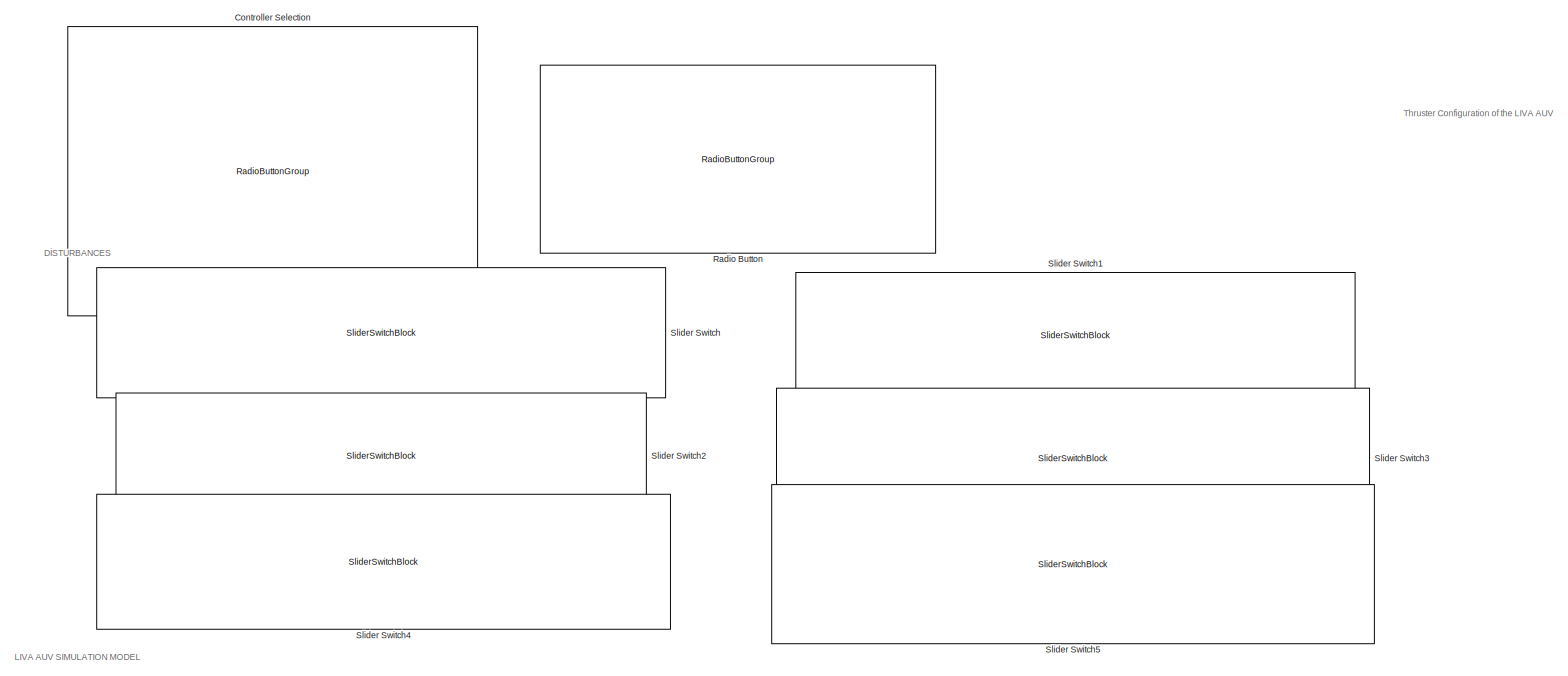
[diagram: root canvas - part 1/3, top center region]
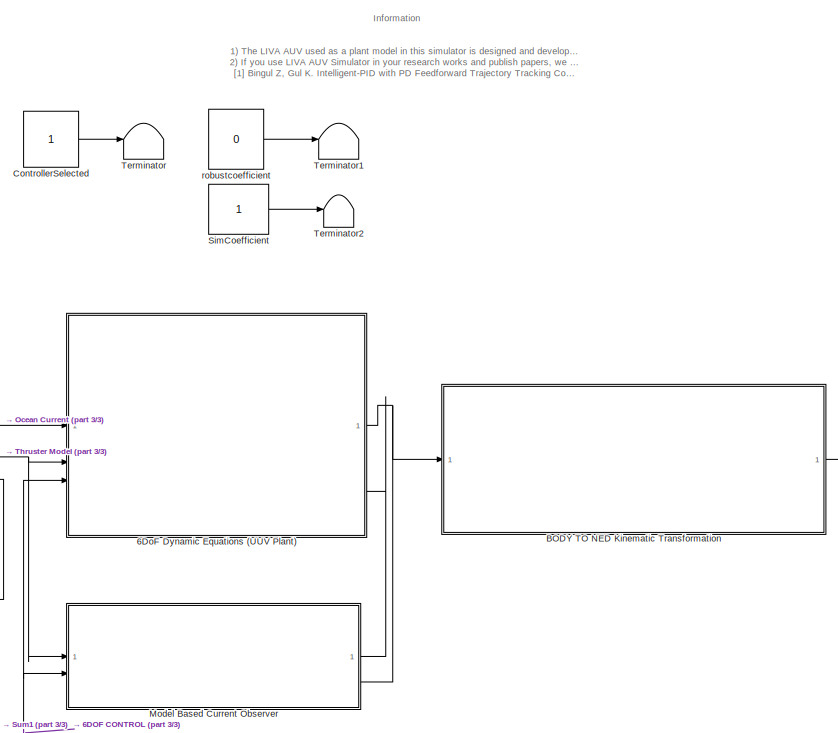
[diagram: root canvas - part 2/3, bottom right region]
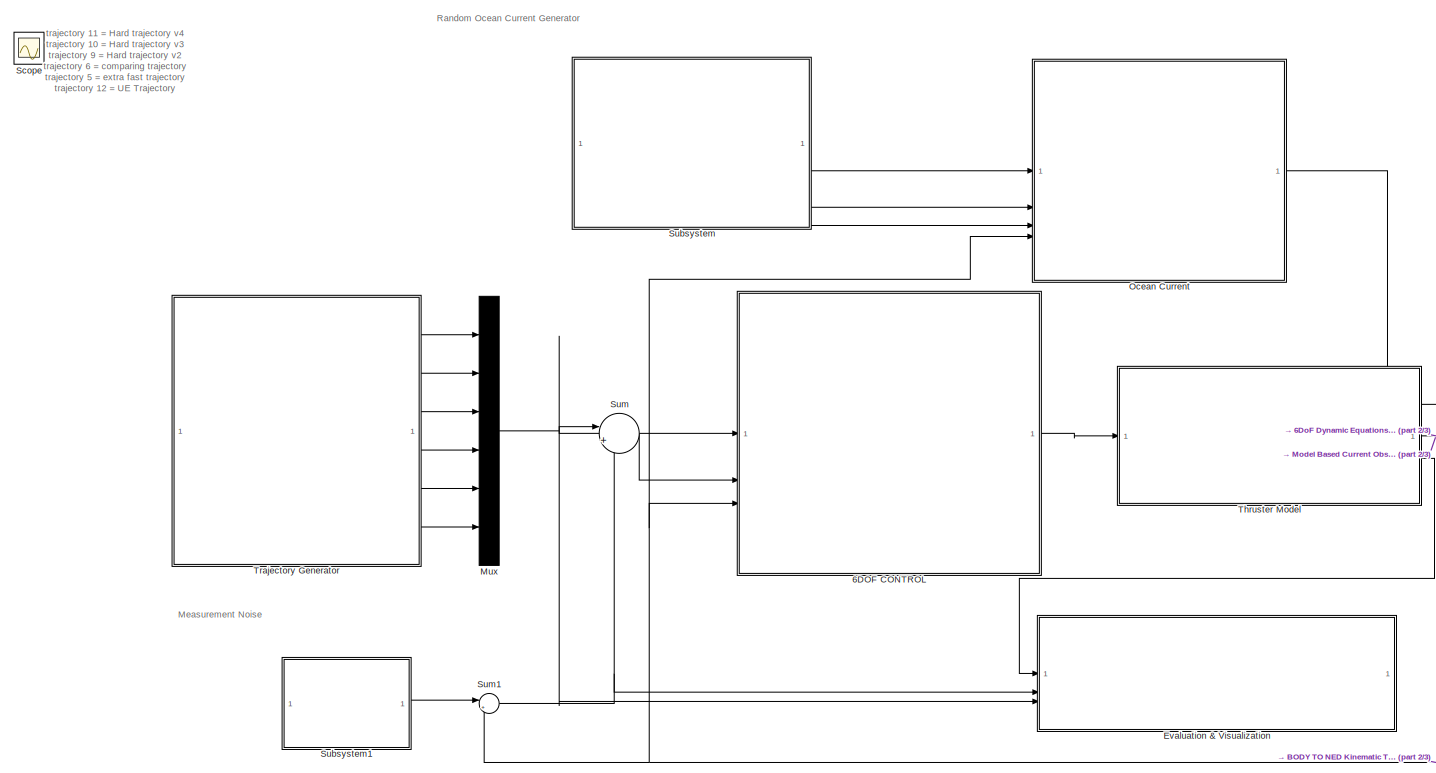
[diagram: root canvas - part 3/3, bottom left region]
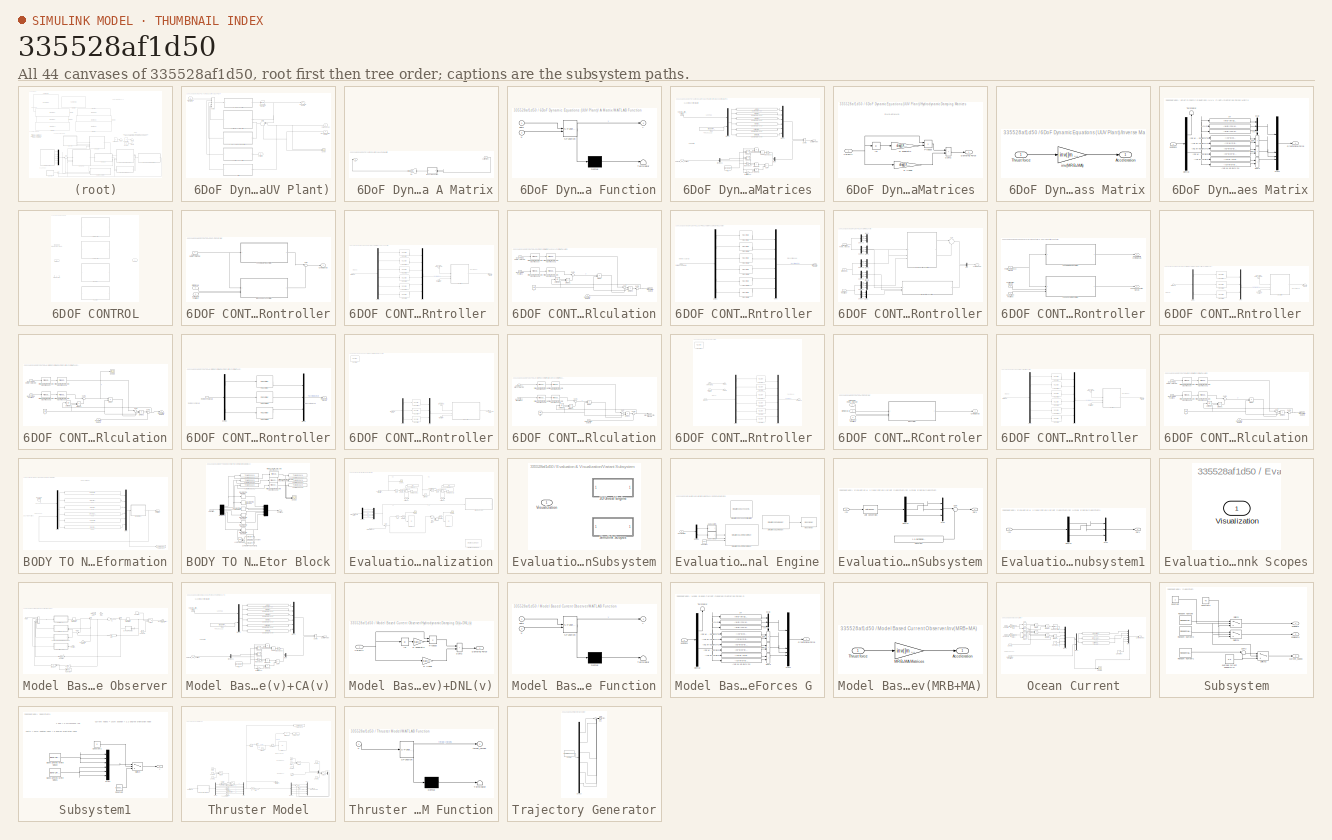
[diagram: thumbnail index - all 44 canvases of the model, root first then tree order]
MODEL slx_335528af1d50
KIND model
CONFIG AbsTol = auto
CONFIG EnableMultiTasking = off
CONFIG FixedStep = auto
CONFIG InitFcn = LIVA_AUV_Simulator_init;\n
CONFIG MaxStep = auto
CONFIG MinStep = auto
CONFIG RelTol = 1e-3
CONFIG SampleTimeConstraint = Unconstrained
CONFIG SolverName = VariableStepAuto
CONFIG StartTime = 0.0
CONFIG StopTime = 50
WORKSPACE source: mxarray member
WORKSPACE a = 0.0768559116543
WORKSPACE a1 = 5.09287831845
WORKSPACE b = 2.78447714902
WORKSPACE b1 = 0.0150573456987
WORKSPACE c = 0.222680447107
WORKSPACE c1 = 0.0244981849866
WORKSPACE d = 1.17025942432
WORKSPACE d1 = -0.121090969634
WORKSPACE e = 4
WORKSPACE e1 = -0.000744741765672
WORKSPACE f = 3.22045295126
WORKSPACE f1 = 0.147531958158
WORKSPACE g = 3
WORKSPACE g1 = 9.31921319068e-05
WORKSPACE h = 4
WORKSPACE h1 = -0.000787888183232
WORKSPACE i = 2.39426372075
WORKSPACE i1 = -0.0976897881188
WORKSPACE j = 3
WORKSPACE j1 = 7.29765081481
WORKSPACE k = 2
WORKSPACE k1 = 3.34164431501
WORKSPACE l = -0.0819081975806
WORKSPACE l1 = 4.85550524224
WORKSPACE m = -0.0907196254339
WORKSPACE m1 = 2.91684244028
WORKSPACE n = 1.20537954163
WORKSPACE n1 = 9.00648148706
WORKSPACE o = 1.92822193114
WORKSPACE o1 = 2.79427167815
WORKSPACE p = 1.9547800679
WORKSPACE p1 = 9.64465760947
WORKSPACE r = 2
WORKSPACE r1 = 9.85880905818
WORKSPACE s = 0.00182097897058
WORKSPACE s1 = 6.72892013716
BLOCK [SubSystem]  6DoF Dynamic Equations (UUV Plant)
  PortSchema = {"entries":[{"content":{"sides":[{"content":{"connectorIds":["In1","In2","In3"]},"type":"ConnectorPlacement.EquallySpacedRectSide","uuid":"68855c18-f905-4735-a86a-81e2661cb8da"},{"content":{"connectorIds":["In4","Out1"],"side":"RIGHT"},"type":"ConnectorPlacement.EquallySpacedRectSide","uuid":"7717ce14-b11b-49b8-93e4-328ee3f313d1"},{"content":{"connectorIds":[],"side":"TOP"},"type":"ConnectorPlacem...<+402ch>
BLOCK [SubSystem]  6DoF Dynamic Equations (UUV Plant)/ A Matrix
BLOCK [Outport]  6DoF Dynamic Equations (UUV Plant)/ A Matrix/Ac
BLOCK [Gain]  6DoF Dynamic Equations (UUV Plant)/ A Matrix/MA
  Gain = [Xudot 0 0 0 0 0;0 Yvdot 0 0 0 0;0 0 Zwdot 0 0 0;0 0 0 Kpdot 0 0;0 0 0 0 Mqdot 0;0 0 0 0 0 Nrdot]
  Multiplication = Matrix(K*u)
  OutDataTypeStr = Inherit: Same as input
  ParamDataTypeStr = Inherit: Same as input
BLOCK [SubSystem]  6DoF Dynamic Equations (UUV Plant)/ A Matrix/MATLAB Function
  ErrorFcn = Stateflow.Translate.translate
  PermitHierarchicalResolution = ExplicitOnly
  SFBlockType = MATLAB Function
  TreatAsAtomicUnit = on
BLOCK [Demux]  6DoF Dynamic Equations (UUV Plant)/ A Matrix/MATLAB Function/ Demux 
  Outputs = 1
BLOCK [S-Function]  6DoF Dynamic Equations (UUV Plant)/ A Matrix/MATLAB Function/ SFunction 
  EnableBusSupport = on
  FunctionName = sf_sfun
  PortCounts = [2 2]
  SFcnIsStateOwnerBlock = off
  SFunctionDeploymentMode = off
  Tag = Stateflow S-Function 3
BLOCK [Terminator]  6DoF Dynamic Equations (UUV Plant)/ A Matrix/MATLAB Function/ Terminator 
BLOCK [Inport]  6DoF Dynamic Equations (UUV Plant)/ A Matrix/MATLAB Function/data
BLOCK [Inport]  6DoF Dynamic Equations (UUV Plant)/ A Matrix/MATLAB Function/u
  Port = 2
BLOCK [Outport]  6DoF Dynamic Equations (UUV Plant)/ A Matrix/MATLAB Function/y
BLOCK [Inport]  6DoF Dynamic Equations (UUV Plant)/ A Matrix/currentvel
BLOCK [Outport]  6DoF Dynamic Equations (UUV Plant)/Body Frame Velocity
  VectorParamsAs1DForOutWhenUnconnected = off
BLOCK [SubSystem]  6DoF Dynamic Equations (UUV Plant)/Centripetal and Coriolis Matrices 
BLOCK [Fcn]  6DoF Dynamic Equations (UUV Plant)/Centripetal and Coriolis Matrices /(zg.W - zb.B)cY.sX
  Expr = -u[9]*u[3]*u[5]+u[8]*u[2]*u[6]
BLOCK [Fcn]  6DoF Dynamic Equations (UUV Plant)/Centripetal and Coriolis Matrices /(zg.W - zb.B)cY.sX1
  Expr = u[9]*u[3]*u[4]-u[7]*u[1]*u[6]
BLOCK [Fcn]  6DoF Dynamic Equations (UUV Plant)/Centripetal and Coriolis Matrices /(zg.W - zb.B)cY.sX2
  Expr = -u[8]*u[2]*u[4]+u[7]*u[1]*u[5]
BLOCK [Fcn]  6DoF Dynamic Equations (UUV Plant)/Centripetal and Coriolis Matrices /(zg.W - zb.B)cY.sX3
  Expr = -u[9]*u[3]*u[2]+u[8]*u[2]*u[3]-u[12]*u[6]*u[5]+u[11]*u[5]*u[6]
BLOCK [Fcn]  6DoF Dynamic Equations (UUV Plant)/Centripetal and Coriolis Matrices /(zg.W - zb.B)cY.sX4
  Expr = u[9]*u[3]*u[1]-u[7]*u[1]*u[3]+u[6]*u[12]*u[4]-u[4]*u[10]*u[6]
BLOCK [Fcn]  6DoF Dynamic Equations (UUV Plant)/Centripetal and Coriolis Matrices /(zg.W - zb.B)cY.sX5
  Expr = -u[8]*u[2]*u[1]+u[7]*u[1]*u[2]-u[11]*u[5]*u[4]+u[10]*u[4]*u[5]
BLOCK [Outport]  6DoF Dynamic Equations (UUV Plant)/Centripetal and Coriolis Matrices /Coriolis Force
  VectorParamsAs1DForOutWhenUnconnected = off
BLOCK [Demux]  6DoF Dynamic Equations (UUV Plant)/Centripetal and Coriolis Matrices /Demux1
  Outputs = 2
BLOCK [Mux]  6DoF Dynamic Equations (UUV Plant)/Centripetal and Coriolis Matrices /Mux
  DisplayOption = bar
  Inputs = 2
BLOCK [Mux]  6DoF Dynamic Equations (UUV Plant)/Centripetal and Coriolis Matrices /Mux1
  DisplayOption = bar
  Inputs = 6
BLOCK [Mux]  6DoF Dynamic Equations (UUV Plant)/Centripetal and Coriolis Matrices /Mux2
  DisplayOption = bar
  Inputs = 2
BLOCK [Product]  6DoF Dynamic Equations (UUV Plant)/Centripetal and Coriolis Matrices /Product1
  InputSameDT = on
  OutDataTypeStr = Inherit: Same as first input
  RndMeth = Zero
  SaturateOnIntegerOverflow = on
BLOCK [Product]  6DoF Dynamic Equations (UUV Plant)/Centripetal and Coriolis Matrices /Product2
  InputSameDT = on
  OutDataTypeStr = Inherit: Same as first input
  RndMeth = Zero
  SaturateOnIntegerOverflow = on
BLOCK [Product]  6DoF Dynamic Equations (UUV Plant)/Centripetal and Coriolis Matrices /Product3
  InputSameDT = on
  OutDataTypeStr = Inherit: Same as first input
  RndMeth = Zero
  SaturateOnIntegerOverflow = on
BLOCK [Product]  6DoF Dynamic Equations (UUV Plant)/Centripetal and Coriolis Matrices /Product4
  InputSameDT = on
  OutDataTypeStr = Inherit: Same as first input
  RndMeth = Zero
  SaturateOnIntegerOverflow = on
BLOCK [Product]  6DoF Dynamic Equations (UUV Plant)/Centripetal and Coriolis Matrices /Product5
  InputSameDT = on
  OutDataTypeStr = Inherit: Same as first input
  RndMeth = Zero
  SaturateOnIntegerOverflow = on
BLOCK [Constant]  6DoF Dynamic Equations (UUV Plant)/Centripetal and Coriolis Matrices /Rg
  Value = [xg yg zg]'
BLOCK [Constant]  6DoF Dynamic Equations (UUV Plant)/Centripetal and Coriolis Matrices /Rg2
  Value = [-Xudot -Yvdot -Zwdot -Kpdot -Mqdot -Nrdot]'
BLOCK [Sum]  6DoF Dynamic Equations (UUV Plant)/Centripetal and Coriolis Matrices /Sum
  IconShape = rectangular
  InputSameDT = on
  OutDataTypeStr = Inherit: Same as first input
  SaturateOnIntegerOverflow = on
BLOCK [Sum]  6DoF Dynamic Equations (UUV Plant)/Centripetal and Coriolis Matrices /Sum2
  IconShape = rectangular
  InputSameDT = on
  OutDataTypeStr = Inherit: Same as first input
  SaturateOnIntegerOverflow = on
BLOCK [Sum]  6DoF Dynamic Equations (UUV Plant)/Centripetal and Coriolis Matrices /Sum5
  IconShape = rectangular
  InputSameDT = on
  OutDataTypeStr = Inherit: Same as first input
  SaturateOnIntegerOverflow = on
BLOCK [Inport]  6DoF Dynamic Equations (UUV Plant)/Centripetal and Coriolis Matrices /Velocity_no_current
BLOCK [Inport]  6DoF Dynamic Equations (UUV Plant)/Centripetal and Coriolis Matrices /Velocity_with_current
  Port = 2
BLOCK [Gain]  6DoF Dynamic Equations (UUV Plant)/Centripetal and Coriolis Matrices /inertia(3x3)
  Gain = [Ix 0 0;0 Iy 0;0 0 Iz]*eye(3)+[-Xudot 0 0;0 -Yvdot 0;0 0 -Zwdot]
  Multiplication = Matrix(K*u)
  OutDataTypeStr = Inherit: Same as input
  ParamDataTypeStr = Inherit: Same as input
  SaturateOnIntegerOverflow = on
BLOCK [Gain]  6DoF Dynamic Equations (UUV Plant)/Centripetal and Coriolis Matrices /mass(3x3) 
  Gain = m*eye(3)+[-Xudot 0 0;0 -Yvdot 0;0 0 -Zwdot]
  Multiplication = Matrix(K*u)
  OutDataTypeStr = Inherit: Same as input
  ParamDataTypeStr = Inherit: Same as input
  SaturateOnIntegerOverflow = on
BLOCK [Inport]  6DoF Dynamic Equations (UUV Plant)/Current_Speed
BLOCK [DiscreteIntegrator]  6DoF Dynamic Equations (UUV Plant)/Discrete-Time Integrator
  ICPrevOutput = DiscIntNeverNeededParam
  ICPrevScaledInput = DiscIntNeverNeededParam
  InitialConditionSetting = Auto
  SampleTime = -1
  StateName = x
BLOCK [Inport]  6DoF Dynamic Equations (UUV Plant)/Forces and Moments  
  Port = 2
BLOCK [SubSystem]  6DoF Dynamic Equations (UUV Plant)/Hydrodynamic Damping Matrices 
BLOCK [Gain]  6DoF Dynamic Equations (UUV Plant)/Hydrodynamic Damping Matrices /D linear
  Gain = diag([Xu 0 0 0 0 0;0 Yv 0 0 0 0;0 0 Zw 0 0 0;0 0 0 Kp 0 0;0 0 0 0 Mq 0;0 0 0 0 0 Nr])
  OutDataTypeStr = Inherit: Same as input
  ParamDataTypeStr = Inherit: Same as input
  SaturateOnIntegerOverflow = on
BLOCK [Gain]  6DoF Dynamic Equations (UUV Plant)/Hydrodynamic Damping Matrices /D quadratic
  Gain = diag([Xuu 0 0 0 0 0;0 Yvv 0 0 0 0;0 0 Zww 0 0 0;0 0 0 Kpp 0 0;0 0 0 0 Mqq 0;0 0 0 0 0 Nrr])
  OutDataTypeStr = Inherit: Same as input
  ParamDataTypeStr = Inherit: Same as input
  SaturateOnIntegerOverflow = on
BLOCK [Outport]  6DoF Dynamic Equations (UUV Plant)/Hydrodynamic Damping Matrices /Damping Force
BLOCK [Product]  6DoF Dynamic Equations (UUV Plant)/Hydrodynamic Damping Matrices /Product
  InputSameDT = on
  OutDataTypeStr = Inherit: Same as first input
  RndMeth = Zero
  SaturateOnIntegerOverflow = on
BLOCK [Sum]  6DoF Dynamic Equations (UUV Plant)/Hydrodynamic Damping Matrices /Sum2
  IconShape = rectangular
  InputSameDT = on
  OutDataTypeStr = Inherit: Same as first input
  SaturateOnIntegerOverflow = on
BLOCK [Inport]  6DoF Dynamic Equations (UUV Plant)/Hydrodynamic Damping Matrices /Velocity
BLOCK [Abs]  6DoF Dynamic Equations (UUV Plant)/Hydrodynamic Damping Matrices /|u|
BLOCK [SubSystem]  6DoF Dynamic Equations (UUV Plant)/Inverse Mass Matrix
BLOCK [Outport]  6DoF Dynamic Equations (UUV Plant)/Inverse Mass Matrix/Acceleration
  VectorParamsAs1DForOutWhenUnconnected = off
BLOCK [Inport]  6DoF Dynamic Equations (UUV Plant)/Inverse Mass Matrix/Thrust force
BLOCK [Gain]  6DoF Dynamic Equations (UUV Plant)/Inverse Mass Matrix/inv(MRB+MA)
  Gain = inv([m 0 0 0 0 0;0 m 0 0 0 0;0 0 m 0 0 0;0 0 0 Ix 0 0;0 0 0 0 Iy 0;0 0 0 0 0 Iz]+[Xudot 0 0 0 0 0;0 Yvdot 0 0 0 0;0 0 Zwdot 0 0 0;0 0 0 Kpdot 0 0;0 0 0 0 Mqdot 0;0 0 0 0 0 Nrdot])
  Multiplication = Matrix(K*u)
  OutDataTypeStr = Inherit: Same as input
  ParamDataTypeStr = Inherit: Same as input
BLOCK [Inport]  6DoF Dynamic Equations (UUV Plant)/Observed Current Velocity
  Port = 4
BLOCK [Inport]  6DoF Dynamic Equations (UUV Plant)/Positions 
  Port = 3
BLOCK [SubSystem]  6DoF Dynamic Equations (UUV Plant)/Restoring Forces Matrix
BLOCK [Fcn]  6DoF Dynamic Equations (UUV Plant)/Restoring Forces Matrix/(xg.W-xb.B)cY.cX
  Expr = (xg*W - xb*B)*cos(u[2])*cos(u[1])
BLOCK [Fcn]  6DoF Dynamic Equations (UUV Plant)/Restoring Forces Matrix/(zg.W - zb.B)cY.sX
  Expr = ((zg * W - zb * B) * cos(u[2])) * sin(u[1])
BLOCK [Fcn]  6DoF Dynamic Equations (UUV Plant)/Restoring Forces Matrix/(zg.W - zb.B)sY
  Expr = (zg*W - zb*B)*sin(u[2])
BLOCK [Fcn]  6DoF Dynamic Equations (UUV Plant)/Restoring Forces Matrix/-(xg.W-xb.B)cY.sX
  Expr = -(xg*W -xb*B)*cos(u[2])*sin(u[1])
BLOCK [Fcn]  6DoF Dynamic Equations (UUV Plant)/Restoring Forces Matrix/-(yg.W-yb.B)cY.cX
  Expr = -(yg*W - yb*B)*cos(u[2])*cos(u[1])
BLOCK [Fcn]  6DoF Dynamic Equations (UUV Plant)/Restoring Forces Matrix/-(yg.W-yb.B)sY
  Expr = -(yg*W - yb*B)*sin(u[2])
BLOCK [Fcn]  6DoF Dynamic Equations (UUV Plant)/Restoring Forces Matrix/-cY.cX
  Expr = -(W-B)*cos(u[2])*cos(u[1])
BLOCK [Fcn]  6DoF Dynamic Equations (UUV Plant)/Restoring Forces Matrix/-cY.sX
  Expr = -(W-B)*cos(u[2])*sin(u[1])
BLOCK [Demux]  6DoF Dynamic Equations (UUV Plant)/Restoring Forces Matrix/Demux
  Outputs = 2
BLOCK [Outport]  6DoF Dynamic Equations (UUV Plant)/Restoring Forces Matrix/Gravitational Force
BLOCK [Mux]  6DoF Dynamic Equations (UUV Plant)/Restoring Forces Matrix/Mux
  DisplayOption = bar
  Inputs = 3
BLOCK [Mux]  6DoF Dynamic Equations (UUV Plant)/Restoring Forces Matrix/Mux1
  DisplayOption = bar
BLOCK [Sum]  6DoF Dynamic Equations (UUV Plant)/Restoring Forces Matrix/Sum
  IconShape = rectangular
  InputSameDT = on
  OutDataTypeStr = Inherit: Same as first input
  SaturateOnIntegerOverflow = on
BLOCK [Sum]  6DoF Dynamic Equations (UUV Plant)/Restoring Forces Matrix/Sum1
  IconShape = rectangular
  InputSameDT = on
  OutDataTypeStr = Inherit: Same as first input
  SaturateOnIntegerOverflow = on
BLOCK [Sum]  6DoF Dynamic Equations (UUV Plant)/Restoring Forces Matrix/Sum2
  IconShape = rectangular
  InputSameDT = on
  OutDataTypeStr = Inherit: Same as first input
  SaturateOnIntegerOverflow = on
BLOCK [Terminator]  6DoF Dynamic Equations (UUV Plant)/Restoring Forces Matrix/Terminator
  NameLocation = right
BLOCK [Inport]  6DoF Dynamic Equations (UUV Plant)/Restoring Forces Matrix/positions
BLOCK [Fcn]  6DoF Dynamic Equations (UUV Plant)/Restoring Forces Matrix/sY
  Expr = (W-B)*sin(u[2])
BLOCK [Scope]  6DoF Dynamic Equations (UUV Plant)/Scope
  Floating = off
  NumInputPorts = 2
  ScopeSpecificationString = Simulink.scopes.TimeScopeBlockCfg('CurrentConfiguration', extmgr.ConfigurationSet(extmgr.Configuration('Core','General UI',true),extmgr.Configuration('Core','Source UI',true),extmgr.Configuration('Sources','WiredSimulink',true,'DataLoggingVariableName','ScopeData2'),extmgr.Configuration('Visuals','Time Domain',true,'SerializedDisplays',{struct('MinYLimReal','-0.10436','MaxYLimReal','0.766','YLabel...<+1994ch>
BLOCK [Sum]  6DoF Dynamic Equations (UUV Plant)/Sum
  Inputs = |+-+
BLOCK [Sum]  6DoF Dynamic Equations (UUV Plant)/Sum1
  IconShape = rectangular
  InputSameDT = on
  Inputs = +---+
  OutDataTypeStr = Inherit: Same as first input
  SaturateOnIntegerOverflow = on
BLOCK [SubSystem] 6DOF CONTROL
  Variant = on
BLOCK [SubSystem] 6DOF CONTROL/2 DoF i-PID Controller
  VariantControl = (get_param([bdroot '/ControllerSelected'], 'Value') == '2')
BLOCK [SubSystem] 6DOF CONTROL/2 DoF i-PID Controller/ i-PID Feedback Controller 
BLOCK [Inport] 6DOF CONTROL/2 DoF i-PID Controller/ i-PID Feedback Controller /Body Frame Positions
  Port = 3
BLOCK [Inport] 6DOF CONTROL/2 DoF i-PID Controller/ i-PID Feedback Controller /Body Frame Reference Trajectory
BLOCK [SubSystem] 6DOF CONTROL/2 DoF i-PID Controller/ i-PID Feedback Controller /Calculation
BLOCK [Inport] 6DOF CONTROL/2 DoF i-PID Controller/ i-PID Feedback Controller /Calculation/Body Frame Positions
  Port = 3
BLOCK [Inport] 6DOF CONTROL/2 DoF i-PID Controller/ i-PID Feedback Controller /Calculation/Body Frame Reference Trajectory
BLOCK [Product] 6DOF CONTROL/2 DoF i-PID Controller/ i-PID Feedback Controller /Calculation/Divide
  Inputs = */
BLOCK [Product] 6DOF CONTROL/2 DoF i-PID Controller/ i-PID Feedback Controller /Calculation/Divide1
  Inputs = **
BLOCK [Product] 6DOF CONTROL/2 DoF i-PID Controller/ i-PID Feedback Controller /Calculation/Divide2
  Inputs = */
BLOCK [Reference] 6DOF CONTROL/2 DoF i-PID Controller/ i-PID Feedback Controller /Calculation/Filtered Derivative (Discrete or Continuous)  REF=eeGeneralControl/Filtered Derivative
(Discrete or Continuous)
  SourceBlock = eeGeneralControl/Filtered Derivative\n(Discrete or Continuous)
  SourceType = Filtered Derivative (Discrete or Continuous)
BLOCK [Reference] 6DOF CONTROL/2 DoF i-PID Controller/ i-PID Feedback Controller /Calculation/Filtered Derivative (Discrete or Continuous)1  REF=eeGeneralControl/Filtered Derivative
(Discrete or Continuous)
  SourceBlock = eeGeneralControl/Filtered Derivative\n(Discrete or Continuous)
  SourceType = Filtered Derivative (Discrete or Continuous)
BLOCK [Reference] 6DOF CONTROL/2 DoF i-PID Controller/ i-PID Feedback Controller /Calculation/Filtered Derivative (Discrete or Continuous)2  REF=eeGeneralControl/Filtered Derivative
(Discrete or Continuous)
  SourceBlock = eeGeneralControl/Filtered Derivative\n(Discrete or Continuous)
  SourceType = Filtered Derivative (Discrete or Continuous)
BLOCK [Reference] 6DOF CONTROL/2 DoF i-PID Controller/ i-PID Feedback Controller /Calculation/Filtered Derivative (Discrete or Continuous)3  REF=eeGeneralControl/Filtered Derivative
(Discrete or Continuous)
  SourceBlock = eeGeneralControl/Filtered Derivative\n(Discrete or Continuous)
  SourceType = Filtered Derivative (Discrete or Continuous)
BLOCK [Outport] 6DOF CONTROL/2 DoF i-PID Controller/ i-PID Feedback Controller /Calculation/IPI Controller Outputs
BLOCK [Inport] 6DOF CONTROL/2 DoF i-PID Controller/ i-PID Feedback Controller /Calculation/PI Controller Outputs
  Port = 2
BLOCK [Sum] 6DOF CONTROL/2 DoF i-PID Controller/ i-PID Feedback Controller /Calculation/Sum
  Inputs = |+-
BLOCK [Sum] 6DOF CONTROL/2 DoF i-PID Controller/ i-PID Feedback Controller /Calculation/Sum1
  Inputs = |+-
BLOCK [Sum] 6DOF CONTROL/2 DoF i-PID Controller/ i-PID Feedback Controller /Calculation/Sum2
  Inputs = |++
BLOCK [UnitDelay] 6DOF CONTROL/2 DoF i-PID Controller/ i-PID Feedback Controller /Calculation/Unit Delay
  HasFrameUpgradeWarning = on
  SampleTime = -1
BLOCK [Constant] 6DOF CONTROL/2 DoF i-PID Controller/ i-PID Feedback Controller /Calculation/a
  Value = alfa
BLOCK [Demux] 6DOF CONTROL/2 DoF i-PID Controller/ i-PID Feedback Controller /Demux
  Outputs = 6
BLOCK [Inport] 6DOF CONTROL/2 DoF i-PID Controller/ i-PID Feedback Controller /Error Signals
  Port = 2
BLOCK [Mux] 6DOF CONTROL/2 DoF i-PID Controller/ i-PID Feedback Controller /Mux2
  DisplayOption = bar
  Inputs = 6
BLOCK [Reference] 6DOF CONTROL/2 DoF i-PID Controller/ i-PID Feedback Controller /PID Controller  REF=slpidlib/PID Controller
  SourceBlock = slpidlib/PID Controller
  SourceType = PID 1dof
BLOCK [Reference] 6DOF CONTROL/2 DoF i-PID Controller/ i-PID Feedback Controller /PID Controller1  REF=slpidlib/PID Controller
  SourceBlock = slpidlib/PID Controller
  SourceType = PID 1dof
BLOCK [Reference] 6DOF CONTROL/2 DoF i-PID Controller/ i-PID Feedback Controller /PID Controller2  REF=slpidlib/PID Controller
  SourceBlock = slpidlib/PID Controller
  SourceType = PID 1dof
BLOCK [Reference] 6DOF CONTROL/2 DoF i-PID Controller/ i-PID Feedback Controller /PID Controller3  REF=slpidlib/PID Controller
  SourceBlock = slpidlib/PID Controller
  SourceType = PID 1dof
BLOCK [Reference] 6DOF CONTROL/2 DoF i-PID Controller/ i-PID Feedback Controller /PID Controller4  REF=slpidlib/PID Controller
  SourceBlock = slpidlib/PID Controller
  SourceType = PID 1dof
BLOCK [Reference] 6DOF CONTROL/2 DoF i-PID Controller/ i-PID Feedback Controller /PID Controller5  REF=slpidlib/PID Controller
  SourceBlock = slpidlib/PID Controller
  SourceType = PID 1dof
BLOCK [Outport] 6DOF CONTROL/2 DoF i-PID Controller/ i-PID Feedback Controller /iPID Control Signals
  VectorParamsAs1DForOutWhenUnconnected = off
BLOCK [Outport] 6DOF CONTROL/2 DoF i-PID Controller/Control Signals
BLOCK [Inport] 6DOF CONTROL/2 DoF i-PID Controller/Earth Frame Positions
  Port = 3
BLOCK [Inport] 6DOF CONTROL/2 DoF i-PID Controller/Earth Frame Reference Trajectory
BLOCK [Inport] 6DOF CONTROL/2 DoF i-PID Controller/Error Signals
  Port = 2
BLOCK [SubSystem] 6DOF CONTROL/2 DoF i-PID Controller/Feedforward PID Controller 
BLOCK [Demux] 6DOF CONTROL/2 DoF i-PID Controller/Feedforward PID Controller /Demux
  Outputs = 6
BLOCK [Mux] 6DOF CONTROL/2 DoF i-PID Controller/Feedforward PID Controller /Mux2
  DisplayOption = bar
  Inputs = 6
BLOCK [Reference] 6DOF CONTROL/2 DoF i-PID Controller/Feedforward PID Controller /PID Controller  REF=slpidlib/PID Controller
  SourceBlock = slpidlib/PID Controller
  SourceType = PID 1dof
BLOCK [Reference] 6DOF CONTROL/2 DoF i-PID Controller/Feedforward PID Controller /PID Controller1  REF=slpidlib/PID Controller
  SourceBlock = slpidlib/PID Controller
  SourceType = PID 1dof
BLOCK [Reference] 6DOF CONTROL/2 DoF i-PID Controller/Feedforward PID Controller /PID Controller2  REF=slpidlib/PID Controller
  SourceBlock = slpidlib/PID Controller
  SourceType = PID 1dof
BLOCK [Reference] 6DOF CONTROL/2 DoF i-PID Controller/Feedforward PID Controller /PID Controller3  REF=slpidlib/PID Controller
  SourceBlock = slpidlib/PID Controller
  SourceType = PID 1dof
BLOCK [Reference] 6DOF CONTROL/2 DoF i-PID Controller/Feedforward PID Controller /PID Controller4  REF=slpidlib/PID Controller
  SourceBlock = slpidlib/PID Controller
  SourceType = PID 1dof
BLOCK [Reference] 6DOF CONTROL/2 DoF i-PID Controller/Feedforward PID Controller /PID Controller5  REF=slpidlib/PID Controller
  SourceBlock = slpidlib/PID Controller
  SourceType = PID 1dof
BLOCK [Inport] 6DOF CONTROL/2 DoF i-PID Controller/Feedforward PID Controller /Reference Signals
BLOCK [Outport] 6DOF CONTROL/2 DoF i-PID Controller/Feedforward PID Controller /iPID Control Signals
  VectorParamsAs1DForOutWhenUnconnected = off
BLOCK [Sum] 6DOF CONTROL/2 DoF i-PID Controller/Sum
  Inputs = |++
BLOCK [Outport] 6DOF CONTROL/Control Signals
BLOCK [Inport] 6DOF CONTROL/Earth Frame Positions
  Port = 3
BLOCK [Inport] 6DOF CONTROL/Earth Frame Reference Trajectory
BLOCK [Inport] 6DOF CONTROL/Error Signals
  Port = 2
BLOCK [SubSystem] 6DOF CONTROL/Hybrid i-PID Controller
  VariantControl = (get_param([bdroot '/ControllerSelected'], 'Value') == '1')
BLOCK [SubSystem] 6DOF CONTROL/Hybrid i-PID Controller/2-DoF i-PID Position Controller
BLOCK [Outport] 6DOF CONTROL/Hybrid i-PID Controller/2-DoF i-PID Position Controller/Feedback Control Signals
  Port = 2
BLOCK [SubSystem] 6DOF CONTROL/Hybrid i-PID Controller/2-DoF i-PID Position Controller/Feedback i-PID Controller 
BLOCK [Inport] 6DOF CONTROL/Hybrid i-PID Controller/2-DoF i-PID Position Controller/Feedback i-PID Controller /Body Frame Positions
  Port = 3
BLOCK [Inport] 6DOF CONTROL/Hybrid i-PID Controller/2-DoF i-PID Position Controller/Feedback i-PID Controller /Body Frame Reference Trajectory
BLOCK [SubSystem] 6DOF CONTROL/Hybrid i-PID Controller/2-DoF i-PID Position Controller/Feedback i-PID Controller /Calculation
BLOCK [Inport] 6DOF CONTROL/Hybrid i-PID Controller/2-DoF i-PID Position Controller/Feedback i-PID Controller /Calculation/Body Frame Positions
  Port = 3
BLOCK [Inport] 6DOF CONTROL/Hybrid i-PID Controller/2-DoF i-PID Position Controller/Feedback i-PID Controller /Calculation/Body Frame Reference Trajectory
BLOCK [Product] 6DOF CONTROL/Hybrid i-PID Controller/2-DoF i-PID Position Controller/Feedback i-PID Controller /Calculation/Divide
  Inputs = */
BLOCK [Product] 6DOF CONTROL/Hybrid i-PID Controller/2-DoF i-PID Position Controller/Feedback i-PID Controller /Calculation/Divide1
  Inputs = **
BLOCK [Product] 6DOF CONTROL/Hybrid i-PID Controller/2-DoF i-PID Position Controller/Feedback i-PID Controller /Calculation/Divide2
  Inputs = */
BLOCK [Reference] 6DOF CONTROL/Hybrid i-PID Controller/2-DoF i-PID Position Controller/Feedback i-PID Controller /Calculation/Filtered Derivative (Discrete or Continuous)  REF=eeGeneralControl/Filtered Derivative
(Discrete or Continuous)
  SourceBlock = eeGeneralControl/Filtered Derivative\n(Discrete or Continuous)
  SourceType = Filtered Derivative (Discrete or Continuous)
BLOCK [Reference] 6DOF CONTROL/Hybrid i-PID Controller/2-DoF i-PID Position Controller/Feedback i-PID Controller /Calculation/Filtered Derivative (Discrete or Continuous)1  REF=eeGeneralControl/Filtered Derivative
(Discrete or Continuous)
  SourceBlock = eeGeneralControl/Filtered Derivative\n(Discrete or Continuous)
  SourceType = Filtered Derivative (Discrete or Continuous)
BLOCK [Reference] 6DOF CONTROL/Hybrid i-PID Controller/2-DoF i-PID Position Controller/Feedback i-PID Controller /Calculation/Filtered Derivative (Discrete or Continuous)2  REF=eeGeneralControl/Filtered Derivative
(Discrete or Continuous)
  SourceBlock = eeGeneralControl/Filtered Derivative\n(Discrete or Continuous)
  SourceType = Filtered Derivative (Discrete or Continuous)
BLOCK [Reference] 6DOF CONTROL/Hybrid i-PID Controller/2-DoF i-PID Position Controller/Feedback i-PID Controller /Calculation/Filtered Derivative (Discrete or Continuous)3  REF=eeGeneralControl/Filtered Derivative
(Discrete or Continuous)
  SourceBlock = eeGeneralControl/Filtered Derivative\n(Discrete or Continuous)
  SourceType = Filtered Derivative (Discrete or Continuous)
BLOCK [Outport] 6DOF CONTROL/Hybrid i-PID Controller/2-DoF i-PID Position Controller/Feedback i-PID Controller /Calculation/IPI Controller Outputs
BLOCK [Inport] 6DOF CONTROL/Hybrid i-PID Controller/2-DoF i-PID Position Controller/Feedback i-PID Controller /Calculation/PI Controller Outputs
  Port = 2
BLOCK [Scope] 6DOF CONTROL/Hybrid i-PID Controller/2-DoF i-PID Position Controller/Feedback i-PID Controller /Calculation/Scope
  Floating = off
  NumInputPorts = 1
  ScopeSpecificationString = Simulink.scopes.TimeScopeBlockCfg('CurrentConfiguration', extmgr.ConfigurationSet(extmgr.Configuration('Core','General UI',true),extmgr.Configuration('Core','Source UI',true),extmgr.Configuration('Sources','WiredSimulink',true,'DataLoggingVariableName','ScopeData1'),extmgr.Configuration('Visuals','Time Domain',true,'SerializedDisplays',{struct('MinYLimReal','-1.19878','MaxYLimReal','1.4086','YLabe...<+1424ch>
BLOCK [Sum] 6DOF CONTROL/Hybrid i-PID Controller/2-DoF i-PID Position Controller/Feedback i-PID Controller /Calculation/Sum
  Inputs = |+-
BLOCK [Sum] 6DOF CONTROL/Hybrid i-PID Controller/2-DoF i-PID Position Controller/Feedback i-PID Controller /Calculation/Sum1
  Inputs = |+-
BLOCK [Sum] 6DOF CONTROL/Hybrid i-PID Controller/2-DoF i-PID Position Controller/Feedback i-PID Controller /Calculation/Sum2
  Inputs = |++
BLOCK [UnitDelay] 6DOF CONTROL/Hybrid i-PID Controller/2-DoF i-PID Position Controller/Feedback i-PID Controller /Calculation/Unit Delay
  HasFrameUpgradeWarning = on
  SampleTime = -1
BLOCK [Constant] 6DOF CONTROL/Hybrid i-PID Controller/2-DoF i-PID Position Controller/Feedback i-PID Controller /Calculation/a
  Value = alfa
BLOCK [Demux] 6DOF CONTROL/Hybrid i-PID Controller/2-DoF i-PID Position Controller/Feedback i-PID Controller /Demux
  Outputs = 3
BLOCK [Inport] 6DOF CONTROL/Hybrid i-PID Controller/2-DoF i-PID Position Controller/Feedback i-PID Controller /Error Signals
  Port = 2
BLOCK [Mux] 6DOF CONTROL/Hybrid i-PID Controller/2-DoF i-PID Position Controller/Feedback i-PID Controller /Mux2
  DisplayOption = bar
  Inputs = 3
BLOCK [Reference] 6DOF CONTROL/Hybrid i-PID Controller/2-DoF i-PID Position Controller/Feedback i-PID Controller /PID Controller  REF=slpidlib/PID Controller
  SourceBlock = slpidlib/PID Controller
  SourceType = PID 1dof
BLOCK [Reference] 6DOF CONTROL/Hybrid i-PID Controller/2-DoF i-PID Position Controller/Feedback i-PID Controller /PID Controller1  REF=slpidlib/PID Controller
  SourceBlock = slpidlib/PID Controller
  SourceType = PID 1dof
BLOCK [Reference] 6DOF CONTROL/Hybrid i-PID Controller/2-DoF i-PID Position Controller/Feedback i-PID Controller /PID Controller2  REF=slpidlib/PID Controller
  SourceBlock = slpidlib/PID Controller
  SourceType = PID 1dof
BLOCK [Outport] 6DOF CONTROL/Hybrid i-PID Controller/2-DoF i-PID Position Controller/Feedback i-PID Controller /iPID Control Signals
  VectorParamsAs1DForOutWhenUnconnected = off
BLOCK [Outport] 6DOF CONTROL/Hybrid i-PID Controller/2-DoF i-PID Position Controller/Feedforward Control Signals
BLOCK [SubSystem] 6DOF CONTROL/Hybrid i-PID Controller/2-DoF i-PID Position Controller/Feedforward PD Controller
BLOCK [Demux] 6DOF CONTROL/Hybrid i-PID Controller/2-DoF i-PID Position Controller/Feedforward PD Controller/Demux
  Outputs = 3
BLOCK [Mux] 6DOF CONTROL/Hybrid i-PID Controller/2-DoF i-PID Position Controller/Feedforward PD Controller/Mux2
  DisplayOption = bar
  Inputs = 3
BLOCK [Reference] 6DOF CONTROL/Hybrid i-PID Controller/2-DoF i-PID Position Controller/Feedforward PD Controller/PID Controller  REF=slpidlib/PID Controller
  SourceBlock = slpidlib/PID Controller
  SourceType = PID 1dof
BLOCK [Reference] 6DOF CONTROL/Hybrid i-PID Controller/2-DoF i-PID Position Controller/Feedforward PD Controller/PID Controller1  REF=slpidlib/PID Controller
  SourceBlock = slpidlib/PID Controller
  SourceType = PID 1dof
BLOCK [Reference] 6DOF CONTROL/Hybrid i-PID Controller/2-DoF i-PID Position Controller/Feedforward PD Controller/PID Controller2  REF=slpidlib/PID Controller
  SourceBlock = slpidlib/PID Controller
  SourceType = PID 1dof
BLOCK [Inport] 6DOF CONTROL/Hybrid i-PID Controller/2-DoF i-PID Position Controller/Feedforward PD Controller/Reference Signals
BLOCK [Outport] 6DOF CONTROL/Hybrid i-PID Controller/2-DoF i-PID Position Controller/Feedforward PD Controller/iPID Control Signals
  VectorParamsAs1DForOutWhenUnconnected = off
BLOCK [Inport] 6DOF CONTROL/Hybrid i-PID Controller/2-DoF i-PID Position Controller/Poisition Reference Signals
BLOCK [Inport] 6DOF CONTROL/Hybrid i-PID Controller/2-DoF i-PID Position Controller/Position Error Signals
  Port = 2
BLOCK [Inport] 6DOF CONTROL/Hybrid i-PID Controller/2-DoF i-PID Position Controller/UUV Current Positions
  Port = 3
BLOCK [Outport] 6DOF CONTROL/Hybrid i-PID Controller/Control Signals
BLOCK [Demux] 6DOF CONTROL/Hybrid i-PID Controller/Demux1
  Outputs = 6
BLOCK [Demux] 6DOF CONTROL/Hybrid i-PID Controller/Demux3
  Outputs = 6
BLOCK [Demux] 6DOF CONTROL/Hybrid i-PID Controller/Demux4
  Outputs = 6
BLOCK [Demux] 6DOF CONTROL/Hybrid i-PID Controller/Demux5
  Outputs = 6
BLOCK [Demux] 6DOF CONTROL/Hybrid i-PID Controller/Demux6
  Outputs = 6
BLOCK [Demux] 6DOF CONTROL/Hybrid i-PID Controller/Demux7
  Outputs = 6
BLOCK [Inport] 6DOF CONTROL/Hybrid i-PID Controller/Earth Frame Positions
  Port = 3
BLOCK [Inport] 6DOF CONTROL/Hybrid i-PID Controller/Earth Frame Reference Trajectory
BLOCK [Inport] 6DOF CONTROL/Hybrid i-PID Controller/Error Signals
  Port = 2
BLOCK [Mux] 6DOF CONTROL/Hybrid i-PID Controller/Mux
  DisplayOption = bar
  Inputs = 2
BLOCK [Mux] 6DOF CONTROL/Hybrid i-PID Controller/Mux1
  DisplayOption = bar
  Inputs = 3
BLOCK [Mux] 6DOF CONTROL/Hybrid i-PID Controller/Mux2
  DisplayOption = bar
  Inputs = 3
BLOCK [Mux] 6DOF CONTROL/Hybrid i-PID Controller/Mux3
  DisplayOption = bar
  Inputs = 3
BLOCK [Mux] 6DOF CONTROL/Hybrid i-PID Controller/Mux4
  DisplayOption = bar
  Inputs = 3
BLOCK [Mux] 6DOF CONTROL/Hybrid i-PID Controller/Mux5
  DisplayOption = bar
  Inputs = 3
BLOCK [Mux] 6DOF CONTROL/Hybrid i-PID Controller/Mux6
  DisplayOption = bar
  Inputs = 3
BLOCK [Sum] 6DOF CONTROL/Hybrid i-PID Controller/Sum
  Inputs = |++
BLOCK [SubSystem] 6DOF CONTROL/Hybrid i-PID Controller/i-PID Orientation Controller
BLOCK [Inport] 6DOF CONTROL/Hybrid i-PID Controller/i-PID Orientation Controller/ Reference Orientation Trajectory
BLOCK [Demux] 6DOF CONTROL/Hybrid i-PID Controller/i-PID Orientation Controller/Demux
  Outputs = 3
BLOCK [Outport] 6DOF CONTROL/Hybrid i-PID Controller/i-PID Orientation Controller/Feedback Control Signals
  VectorParamsAs1DForOutWhenUnconnected = off
BLOCK [Mux] 6DOF CONTROL/Hybrid i-PID Controller/i-PID Orientation Controller/Mux2
  DisplayOption = bar
  Inputs = 3
BLOCK [Inport] 6DOF CONTROL/Hybrid i-PID Controller/i-PID Orientation Controller/Orientation Error Signals
  Port = 2
BLOCK [Reference] 6DOF CONTROL/Hybrid i-PID Controller/i-PID Orientation Controller/PID Controller3  REF=slpidlib/PID Controller
  SourceBlock = slpidlib/PID Controller
  SourceType = PID 1dof
BLOCK [Reference] 6DOF CONTROL/Hybrid i-PID Controller/i-PID Orientation Controller/PID Controller4  REF=slpidlib/PID Controller
  SourceBlock = slpidlib/PID Controller
  SourceType = PID 1dof
BLOCK [Reference] 6DOF CONTROL/Hybrid i-PID Controller/i-PID Orientation Controller/PID Controller5  REF=slpidlib/PID Controller
  SourceBlock = slpidlib/PID Controller
  SourceType = PID 1dof
BLOCK [Reference] 6DOF CONTROL/Hybrid i-PID Controller/i-PID Orientation Controller/PID Controller6  REF=slpidlib/PID Controller
  Commented = on
  SourceBlock = slpidlib/PID Controller
  SourceType = PID 1dof
BLOCK [Inport] 6DOF CONTROL/Hybrid i-PID Controller/i-PID Orientation Controller/UUV Current Orientations
  Port = 3
BLOCK [SubSystem] 6DOF CONTROL/Hybrid i-PID Controller/i-PID Orientation Controller/i-PID Calculation
BLOCK [Inport] 6DOF CONTROL/Hybrid i-PID Controller/i-PID Orientation Controller/i-PID Calculation/ Reference Orientation Trajectory
BLOCK [Product] 6DOF CONTROL/Hybrid i-PID Controller/i-PID Orientation Controller/i-PID Calculation/Divide
  Inputs = */
BLOCK [Product] 6DOF CONTROL/Hybrid i-PID Controller/i-PID Orientation Controller/i-PID Calculation/Divide1
  Inputs = **
BLOCK [Product] 6DOF CONTROL/Hybrid i-PID Controller/i-PID Orientation Controller/i-PID Calculation/Divide2
  Inputs = */
BLOCK [Reference] 6DOF CONTROL/Hybrid i-PID Controller/i-PID Orientation Controller/i-PID Calculation/Filtered Derivative (Discrete or Continuous)  REF=eeGeneralControl/Filtered Derivative
(Discrete or Continuous)
  SourceBlock = eeGeneralControl/Filtered Derivative\n(Discrete or Continuous)
  SourceType = Filtered Derivative (Discrete or Continuous)
BLOCK [Reference] 6DOF CONTROL/Hybrid i-PID Controller/i-PID Orientation Controller/i-PID Calculation/Filtered Derivative (Discrete or Continuous)1  REF=eeGeneralControl/Filtered Derivative
(Discrete or Continuous)
  SourceBlock = eeGeneralControl/Filtered Derivative\n(Discrete or Continuous)
  SourceType = Filtered Derivative (Discrete or Continuous)
BLOCK [Reference] 6DOF CONTROL/Hybrid i-PID Controller/i-PID Orientation Controller/i-PID Calculation/Filtered Derivative (Discrete or Continuous)2  REF=eeGeneralControl/Filtered Derivative
(Discrete or Continuous)
  SourceBlock = eeGeneralControl/Filtered Derivative\n(Discrete or Continuous)
  SourceType = Filtered Derivative (Discrete or Continuous)
BLOCK [Reference] 6DOF CONTROL/Hybrid i-PID Controller/i-PID Orientation Controller/i-PID Calculation/Filtered Derivative (Discrete or Continuous)3  REF=eeGeneralControl/Filtered Derivative
(Discrete or Continuous)
  SourceBlock = eeGeneralControl/Filtered Derivative\n(Discrete or Continuous)
  SourceType = Filtered Derivative (Discrete or Continuous)
BLOCK [Outport] 6DOF CONTROL/Hybrid i-PID Controller/i-PID Orientation Controller/i-PID Calculation/Orientation Control Signals
BLOCK [Inport] 6DOF CONTROL/Hybrid i-PID Controller/i-PID Orientation Controller/i-PID Calculation/PID Controller Outputs
  Port = 2
BLOCK [Sum] 6DOF CONTROL/Hybrid i-PID Controller/i-PID Orientation Controller/i-PID Calculation/Sum
  Inputs = |+-
BLOCK [Sum] 6DOF CONTROL/Hybrid i-PID Controller/i-PID Orientation Controller/i-PID Calculation/Sum1
  Inputs = |+-
BLOCK [Sum] 6DOF CONTROL/Hybrid i-PID Controller/i-PID Orientation Controller/i-PID Calculation/Sum2
  Inputs = |++
BLOCK [Inport] 6DOF CONTROL/Hybrid i-PID Controller/i-PID Orientation Controller/i-PID Calculation/UUV Current Orientations
  Port = 3
BLOCK [UnitDelay] 6DOF CONTROL/Hybrid i-PID Controller/i-PID Orientation Controller/i-PID Calculation/Unit Delay
  HasFrameUpgradeWarning = on
  SampleTime = -1
BLOCK [Constant] 6DOF CONTROL/Hybrid i-PID Controller/i-PID Orientation Controller/i-PID Calculation/alfa
  Value = alfa
BLOCK [SubSystem] 6DOF CONTROL/PID Controller 
  VariantControl = (get_param([bdroot '/ControllerSelected'], 'Value') == '4')
BLOCK [Outport] 6DOF CONTROL/PID Controller /Control Signals
BLOCK [Demux] 6DOF CONTROL/PID Controller /Demux
  Outputs = 6
BLOCK [Inport] 6DOF CONTROL/PID Controller /Earth Frame Positions
  Port = 3
BLOCK [Inport] 6DOF CONTROL/PID Controller /Earth Frame Reference Trajectory
BLOCK [Inport] 6DOF CONTROL/PID Controller /Error Signals
  Port = 2
BLOCK [Mux] 6DOF CONTROL/PID Controller /Mux2
  DisplayOption = bar
  Inputs = 6
BLOCK [Reference] 6DOF CONTROL/PID Controller /PID Controller  REF=slpidlib/PID Controller
  SourceBlock = slpidlib/PID Controller
  SourceType = PID 1dof
BLOCK [Reference] 6DOF CONTROL/PID Controller /PID Controller1  REF=slpidlib/PID Controller
  SourceBlock = slpidlib/PID Controller
  SourceType = PID 1dof
BLOCK [Reference] 6DOF CONTROL/PID Controller /PID Controller2  REF=slpidlib/PID Controller
  SourceBlock = slpidlib/PID Controller
  SourceType = PID 1dof
BLOCK [Reference] 6DOF CONTROL/PID Controller /PID Controller3  REF=slpidlib/PID Controller
  SourceBlock = slpidlib/PID Controller
  SourceType = PID 1dof
BLOCK [Reference] 6DOF CONTROL/PID Controller /PID Controller4  REF=slpidlib/PID Controller
  SourceBlock = slpidlib/PID Controller
  SourceType = PID 1dof
BLOCK [Reference] 6DOF CONTROL/PID Controller /PID Controller5  REF=slpidlib/PID Controller
  SourceBlock = slpidlib/PID Controller
  SourceType = PID 1dof
BLOCK [Reference] 6DOF CONTROL/PID Controller /PID Controller6  REF=slpidlib/PID Controller
  Commented = on
  SourceBlock = slpidlib/PID Controller
  SourceType = PID 1dof
BLOCK [Terminator] 6DOF CONTROL/PID Controller /Terminator
BLOCK [Terminator] 6DOF CONTROL/PID Controller /Terminator1
BLOCK [SubSystem] 6DOF CONTROL/i-PID Controler
  VariantControl = (get_param([bdroot '/ControllerSelected'], 'Value') == '3')
BLOCK [Outport] 6DOF CONTROL/i-PID Controler/Control Signals
BLOCK [Inport] 6DOF CONTROL/i-PID Controler/Earth Frame Positions
  Port = 3
BLOCK [Inport] 6DOF CONTROL/i-PID Controler/Earth Frame Reference Trajectory
BLOCK [Inport] 6DOF CONTROL/i-PID Controler/Error Signals
  Port = 2
BLOCK [SubSystem] 6DOF CONTROL/i-PID Controler/i-PID Controller 
BLOCK [Inport] 6DOF CONTROL/i-PID Controler/i-PID Controller /Body Frame Positions
  Port = 3
BLOCK [Inport] 6DOF CONTROL/i-PID Controler/i-PID Controller /Body Frame Reference Trajectory
BLOCK [SubSystem] 6DOF CONTROL/i-PID Controler/i-PID Controller /Calculation
BLOCK [Inport] 6DOF CONTROL/i-PID Controler/i-PID Controller /Calculation/Body Frame Positions
  Port = 3
BLOCK [Inport] 6DOF CONTROL/i-PID Controler/i-PID Controller /Calculation/Body Frame Reference Trajectory
BLOCK [Product] 6DOF CONTROL/i-PID Controler/i-PID Controller /Calculation/Divide
  Inputs = */
BLOCK [Product] 6DOF CONTROL/i-PID Controler/i-PID Controller /Calculation/Divide1
  Inputs = **
BLOCK [Product] 6DOF CONTROL/i-PID Controler/i-PID Controller /Calculation/Divide2
  Inputs = */
BLOCK [Reference] 6DOF CONTROL/i-PID Controler/i-PID Controller /Calculation/Filtered Derivative (Discrete or Continuous)  REF=eeGeneralControl/Filtered Derivative
(Discrete or Continuous)
  SourceBlock = eeGeneralControl/Filtered Derivative\n(Discrete or Continuous)
  SourceType = Filtered Derivative (Discrete or Continuous)
BLOCK [Reference] 6DOF CONTROL/i-PID Controler/i-PID Controller /Calculation/Filtered Derivative (Discrete or Continuous)1  REF=eeGeneralControl/Filtered Derivative
(Discrete or Continuous)
  SourceBlock = eeGeneralControl/Filtered Derivative\n(Discrete or Continuous)
  SourceType = Filtered Derivative (Discrete or Continuous)
BLOCK [Reference] 6DOF CONTROL/i-PID Controler/i-PID Controller /Calculation/Filtered Derivative (Discrete or Continuous)2  REF=eeGeneralControl/Filtered Derivative
(Discrete or Continuous)
  SourceBlock = eeGeneralControl/Filtered Derivative\n(Discrete or Continuous)
  SourceType = Filtered Derivative (Discrete or Continuous)
BLOCK [Reference] 6DOF CONTROL/i-PID Controler/i-PID Controller /Calculation/Filtered Derivative (Discrete or Continuous)3  REF=eeGeneralControl/Filtered Derivative
(Discrete or Continuous)
  SourceBlock = eeGeneralControl/Filtered Derivative\n(Discrete or Continuous)
  SourceType = Filtered Derivative (Discrete or Continuous)
BLOCK [Outport] 6DOF CONTROL/i-PID Controler/i-PID Controller /Calculation/IPI Controller Outputs
BLOCK [Inport] 6DOF CONTROL/i-PID Controler/i-PID Controller /Calculation/PI Controller Outputs
  Port = 2
BLOCK [Sum] 6DOF CONTROL/i-PID Controler/i-PID Controller /Calculation/Sum
  Inputs = |+-
BLOCK [Sum] 6DOF CONTROL/i-PID Controler/i-PID Controller /Calculation/Sum1
  Inputs = |+-
BLOCK [Sum] 6DOF CONTROL/i-PID Controler/i-PID Controller /Calculation/Sum2
  Inputs = |++
BLOCK [UnitDelay] 6DOF CONTROL/i-PID Controler/i-PID Controller /Calculation/Unit Delay
  HasFrameUpgradeWarning = on
  SampleTime = -1
BLOCK [Constant] 6DOF CONTROL/i-PID Controler/i-PID Controller /Calculation/a
  Value = alfa
BLOCK [Demux] 6DOF CONTROL/i-PID Controler/i-PID Controller /Demux
  Outputs = 6
BLOCK [Inport] 6DOF CONTROL/i-PID Controler/i-PID Controller /Error Signals
  Port = 2
BLOCK [Mux] 6DOF CONTROL/i-PID Controler/i-PID Controller /Mux2
  DisplayOption = bar
  Inputs = 6
BLOCK [Reference] 6DOF CONTROL/i-PID Controler/i-PID Controller /PID Controller  REF=pid_lib/PID Controller
  SourceBlock = pid_lib/PID Controller
  SourceType = PID 1dof
BLOCK [Reference] 6DOF CONTROL/i-PID Controler/i-PID Controller /PID Controller1  REF=pid_lib/PID Controller
  SourceBlock = pid_lib/PID Controller
  SourceType = PID 1dof
BLOCK [Reference] 6DOF CONTROL/i-PID Controler/i-PID Controller /PID Controller2  REF=pid_lib/PID Controller
  SourceBlock = pid_lib/PID Controller
  SourceType = PID 1dof
BLOCK [Reference] 6DOF CONTROL/i-PID Controler/i-PID Controller /PID Controller3  REF=pid_lib/PID Controller
  SourceBlock = pid_lib/PID Controller
  SourceType = PID 1dof
BLOCK [Reference] 6DOF CONTROL/i-PID Controler/i-PID Controller /PID Controller4  REF=pid_lib/PID Controller
  SourceBlock = pid_lib/PID Controller
  SourceType = PID 1dof
BLOCK [Reference] 6DOF CONTROL/i-PID Controler/i-PID Controller /PID Controller5  REF=pid_lib/PID Controller
  SourceBlock = pid_lib/PID Controller
  SourceType = PID 1dof
BLOCK [Outport] 6DOF CONTROL/i-PID Controler/i-PID Controller /iPID Control Signals
  VectorParamsAs1DForOutWhenUnconnected = off
BLOCK [SubSystem] BODY TO NED Kinematic Transformation
BLOCK [Inport] BODY TO NED Kinematic Transformation/Body Frame Velocities
BLOCK [Outport] BODY TO NED Kinematic Transformation/Earth Frame Positions
BLOCK [Fcn] BODY TO NED Kinematic Transformation/Fcn10
  Expr = cos(u[10])*u[5]-sin(u[10])*u[6]
BLOCK [Fcn] BODY TO NED Kinematic Transformation/Fcn11
  Expr = (sin(u[10])/cos(u[11]))*u[5]+(cos(u[10])/cos(u[11]))*u[6]
BLOCK [Fcn] BODY TO NED Kinematic Transformation/Fcn6
  Expr = (cos(u[12])*cos(u[11])*u[1]-sin(u[12])*cos(u[10])*u[2]+cos(u[12])*sin(u[11])*sin(u[10])*u[2]+sin(u[12])*sin(u[10])*u[3]+cos(u[12])*cos(u[10])*sin(u[11])*u[3])
BLOCK [Fcn] BODY TO NED Kinematic Transformation/Fcn7
  Expr = sin(u[12])*cos(u[11])*u[1]+cos(u[12])*cos(u[10])*u[2]+sin(u[10])*sin(u[11])*sin(u[12])*u[2]-cos(u[12])*sin(u[10])*u[3]+sin(u[11])*sin(u[12])*cos(u[11])*u[3]
BLOCK [Fcn] BODY TO NED Kinematic Transformation/Fcn8
  Expr = -sin(u[11])*u[1]+cos(u[11])*sin(u[10])*u[2]+cos(u[11])*cos(u[10])*u[3]
BLOCK [Fcn] BODY TO NED Kinematic Transformation/Fcn9
  Expr = u[4]+sin(u[10])*tan(u[11])*u[5]+cos(u[10])*tan(u[11])*u[6]
BLOCK [SubSystem] BODY TO NED Kinematic Transformation/Integrator Block
BLOCK [Reference] BODY TO NED Kinematic Transformation/Integrator Block/Compare To Constant  REF=simulink/Logic and Bit
Operations/Compare
To Constant
  SourceBlock = simulink/Logic and Bit\nOperations/Compare\nTo Constant
  SourceType = Compare To Constant
BLOCK [Reference] BODY TO NED Kinematic Transformation/Integrator Block/Compare To Constant1  REF=simulink/Logic and Bit
Operations/Compare
To Constant
  SourceBlock = simulink/Logic and Bit\nOperations/Compare\nTo Constant
  SourceType = Compare To Constant
BLOCK [Demux] BODY TO NED Kinematic Transformation/Integrator Block/Demux2
  DisplayOption = none
  Outputs = 6
BLOCK [DiscreteIntegrator] BODY TO NED Kinematic Transformation/Integrator Block/Discrete-Time Integrator
  ICPrevOutput = DiscIntNeverNeededParam
  ICPrevScaledInput = DiscIntNeverNeededParam
  InitialConditionSetting = Auto
  SampleTime = -1
  StateName = x
BLOCK [DiscreteIntegrator] BODY TO NED Kinematic Transformation/Integrator Block/Discrete-Time Integrator1
  ICPrevOutput = DiscIntNeverNeededParam
  ICPrevScaledInput = DiscIntNeverNeededParam
  InitialConditionSetting = Auto
  SampleTime = -1
  StateName = y
BLOCK [DiscreteIntegrator] BODY TO NED Kinematic Transformation/Integrator Block/Discrete-Time Integrator2
  ICPrevOutput = DiscIntNeverNeededParam
  ICPrevScaledInput = DiscIntNeverNeededParam
  InitialConditionSetting = Auto
  LowerSaturationLimit = -1.5
  SampleTime = -1
  StateName = z
  UpperSaturationLimit = 1.5
BLOCK [DiscreteIntegrator] BODY TO NED Kinematic Transformation/Integrator Block/Discrete-Time Integrator3
  ICPrevOutput = DiscIntNeverNeededParam
  ICPrevScaledInput = DiscIntNeverNeededParam
  InitialConditionSetting = Auto
  LowerSaturationLimit = -1.5
  SampleTime = -1
  StateName = r
  UpperSaturationLimit = 1.49
BLOCK [DiscreteIntegrator] BODY TO NED Kinematic Transformation/Integrator Block/Discrete-Time Integrator4
  ICPrevOutput = DiscIntNeverNeededParam
  ICPrevScaledInput = DiscIntNeverNeededParam
  InitialConditionSetting = Auto
  SampleTime = -1
  StateName = p
BLOCK [DiscreteIntegrator] BODY TO NED Kinematic Transformation/Integrator Block/Discrete-Time Integrator5
  ExternalReset = rising
  ICPrevOutput = DiscIntNeverNeededParam
  ICPrevScaledInput = DiscIntNeverNeededParam
  InitialConditionSetting = Auto
  SampleTime = -1
  StateName = yaw
BLOCK [Reference] BODY TO NED Kinematic Transformation/Integrator Block/Filtered Derivative (Discrete or Continuous)  REF=eeGeneralControl/Filtered Derivative
(Discrete or Continuous)
  Commented = on
  SourceBlock = eeGeneralControl/Filtered Derivative\n(Discrete or Continuous)
  SourceType = Filtered Derivative (Discrete or Continuous)
BLOCK [Reference] BODY TO NED Kinematic Transformation/Integrator Block/Filtered Derivative (Discrete or Continuous)1  REF=eeGeneralControl/Filtered Derivative
(Discrete or Continuous)
  Commented = on
  SourceBlock = eeGeneralControl/Filtered Derivative\n(Discrete or Continuous)
  SourceType = Filtered Derivative (Discrete or Continuous)
BLOCK [Reference] BODY TO NED Kinematic Transformation/Integrator Block/Filtered Derivative (Discrete or Continuous)2  REF=eeGeneralControl/Filtered Derivative
(Discrete or Continuous)
  Commented = on
  SourceBlock = eeGeneralControl/Filtered Derivative\n(Discrete or Continuous)
  SourceType = Filtered Derivative (Discrete or Continuous)
BLOCK [Logic] BODY TO NED Kinematic Transformation/Integrator Block/Logical Operator
  AllPortsSameDT = off
  Operator = OR
  OutDataTypeStr = boolean
BLOCK [Mux] BODY TO NED Kinematic Transformation/Integrator Block/Mux2
  Inputs = 6
BLOCK [Outport] BODY TO NED Kinematic Transformation/Integrator Block/Positions
  VectorParamsAs1DForOutWhenUnconnected = off
BLOCK [Scope] BODY TO NED Kinematic Transformation/Integrator Block/Scope
  Commented = on
  Floating = off
  NumInputPorts = 3
  ScopeSpecificationString = Simulink.scopes.TimeScopeBlockCfg('CurrentConfiguration', extmgr.ConfigurationSet(extmgr.Configuration('Core','General UI',true),extmgr.Configuration('Core','Source UI',true),extmgr.Configuration('Sources','WiredSimulink',true,'DataLoggingVariableName','ScopeData1'),extmgr.Configuration('Visuals','Time Domain',true,'SerializedDisplays',{struct('MinYLimReal','-2.92106','MaxYLimReal','3.78828','YLab...<+1641ch>
BLOCK [ToWorkspace] BODY TO NED Kinematic Transformation/Integrator Block/To Workspace
  FixptAsFi = on
  MaxDataPoints = inf
  SampleTime = -1
  VariableName = simout12
BLOCK [ToWorkspace] BODY TO NED Kinematic Transformation/Integrator Block/To Workspace1
  FixptAsFi = on
  MaxDataPoints = inf
  SampleTime = -1
  VariableName = simout13
BLOCK [ToWorkspace] BODY TO NED Kinematic Transformation/Integrator Block/To Workspace2
  FixptAsFi = on
  MaxDataPoints = inf
  SampleTime = -1
  VariableName = simout14
BLOCK [ToWorkspace] BODY TO NED Kinematic Transformation/Integrator Block/To Workspace3
  Commented = on
  FixptAsFi = on
  MaxDataPoints = inf
  SampleTime = -1
  VariableName = simout18
BLOCK [ToWorkspace] BODY TO NED Kinematic Transformation/Integrator Block/To Workspace4
  Commented = on
  FixptAsFi = on
  MaxDataPoints = inf
  SampleTime = -1
  VariableName = simout19
BLOCK [ToWorkspace] BODY TO NED Kinematic Transformation/Integrator Block/To Workspace5
  Commented = on
  FixptAsFi = on
  MaxDataPoints = inf
  SampleTime = -1
  VariableName = simout20
BLOCK [Inport] BODY TO NED Kinematic Transformation/Integrator Block/Velocities
BLOCK [Mux] BODY TO NED Kinematic Transformation/Mux2
  DisplayOption = bar
  Inputs = 2
BLOCK [Mux] BODY TO NED Kinematic Transformation/Mux3
  DisplayOption = bar
  Inputs = 6
BLOCK [ToWorkspace] BODY TO NED Kinematic Transformation/To Workspace
  FixptAsFi = on
  MaxDataPoints = inf
  SampleTime = -1
  VariableName = simout25
BLOCK [RadioButtonGroup] Controller Selection
  ButtonGroupName = Controller Selection
  LabelPosition = Hide
  SelectedLabel = Hybrid Controller
BLOCK [Constant] ControllerSelected
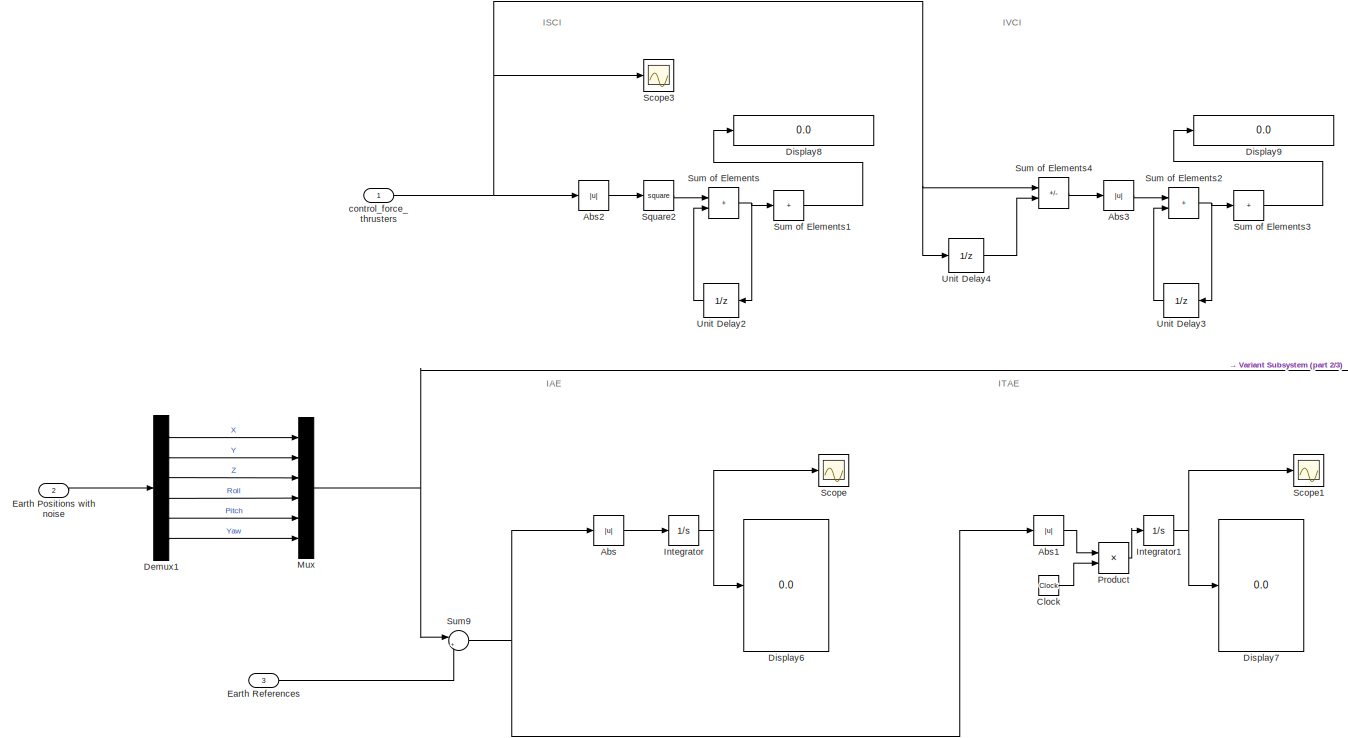
[diagram: Evaluation & Visualization - part 1/3, most of the canvas]
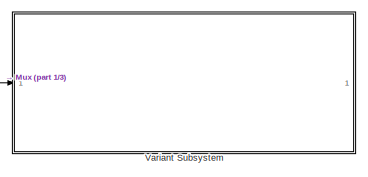
[diagram: Evaluation & Visualization - part 2/3, middle right region]
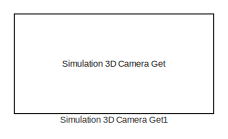
[diagram: Evaluation & Visualization - part 3/3, bottom right region]
BLOCK [SubSystem] Evaluation & Visualization
BLOCK [Abs] Evaluation & Visualization/Abs
  SaturateOnIntegerOverflow = off
BLOCK [Abs] Evaluation & Visualization/Abs1
  SaturateOnIntegerOverflow = off
BLOCK [Abs] Evaluation & Visualization/Abs2
  SaturateOnIntegerOverflow = off
BLOCK [Abs] Evaluation & Visualization/Abs3
  SaturateOnIntegerOverflow = off
BLOCK [Clock] Evaluation & Visualization/Clock
BLOCK [Demux] Evaluation & Visualization/Demux1
  Outputs = 6
BLOCK [Display] Evaluation & Visualization/Display6
  Decimation = 1
BLOCK [Display] Evaluation & Visualization/Display7
  Decimation = 1
BLOCK [Display] Evaluation & Visualization/Display8
  Decimation = 1
BLOCK [Display] Evaluation & Visualization/Display9
  Decimation = 1
  Format = long
BLOCK [Inport] Evaluation & Visualization/Earth Positions with noise
  Port = 2
BLOCK [Inport] Evaluation & Visualization/Earth References
  Port = 3
BLOCK [Integrator] Evaluation & Visualization/Integrator
BLOCK [Integrator] Evaluation & Visualization/Integrator1
BLOCK [Mux] Evaluation & Visualization/Mux
  DisplayOption = bar
  Inputs = 6
BLOCK [Product] Evaluation & Visualization/Product
BLOCK [Scope] Evaluation & Visualization/Scope
  Floating = off
  NumInputPorts = 1
  ScopeSpecificationString = Simulink.scopes.TimeScopeBlockCfg('CurrentConfiguration', extmgr.ConfigurationSet(extmgr.Configuration('Core','General UI',true),extmgr.Configuration('Core','Source UI',true),extmgr.Configuration('Sources','WiredSimulink',true,'DataLoggingVariableName','ScopeData1'),extmgr.Configuration('Visuals','Time Domain',true,'SerializedDisplays',{struct('MinYLimReal','-0.05481','MaxYLimReal','0.49325','YLab...<+1446ch>
BLOCK [Scope] Evaluation & Visualization/Scope1
  Floating = off
  NumInputPorts = 1
  ScopeSpecificationString = Simulink.scopes.TimeScopeBlockCfg('CurrentConfiguration', extmgr.ConfigurationSet(extmgr.Configuration('Core','General UI',true),extmgr.Configuration('Core','Source UI',true),extmgr.Configuration('Sources','WiredSimulink',true,'DataLoggingVariableName','ScopeData2'),extmgr.Configuration('Visuals','Time Domain',true,'SerializedDisplays',{struct('MinYLimReal','-0.07108','MaxYLimReal','0.63969','YLab...<+1477ch>
BLOCK [Scope] Evaluation & Visualization/Scope3
  Floating = off
  NumInputPorts = 1
  ScopeSpecificationString = Simulink.scopes.TimeScopeBlockCfg('CurrentConfiguration', extmgr.ConfigurationSet(extmgr.Configuration('Core','General UI',true),extmgr.Configuration('Core','Source UI',true),extmgr.Configuration('Sources','WiredSimulink',true,'DataLoggingVariableName','ScopeData3'),extmgr.Configuration('Visuals','Time Domain',true,'SerializedDisplays',{struct('MinYLimReal','-39.09504','MaxYLimReal','39.05914','YL...<+1574ch>
BLOCK [Reference] Evaluation & Visualization/Simulation 3D Camera Get1  REF=sim3dlib/Simulation 3D Camera Get
  Commented = on
  LibrarySourceBlock = vehdynlibsim3dcore/Simulation 3D Camera Get
  Priority = 1
  SourceBlock = sim3dlib/Simulation 3D Camera Get
  SourceType = Simulation 3D Camera Get
BLOCK [Math] Evaluation & Visualization/Square2
  Operator = square
BLOCK [Sum] Evaluation & Visualization/Sum of Elements
  IconShape = rectangular
BLOCK [Sum] Evaluation & Visualization/Sum of Elements1
  IconShape = rectangular
  Inputs = +
BLOCK [Sum] Evaluation & Visualization/Sum of Elements2
  IconShape = rectangular
BLOCK [Sum] Evaluation & Visualization/Sum of Elements3
  IconShape = rectangular
  Inputs = +
BLOCK [Sum] Evaluation & Visualization/Sum of Elements4
  IconShape = rectangular
  Inputs = +-
BLOCK [Sum] Evaluation & Visualization/Sum9
  Inputs = |+-
BLOCK [UnitDelay] Evaluation & Visualization/Unit Delay2
  HasFrameUpgradeWarning = on
  SampleTime = -1
BLOCK [UnitDelay] Evaluation & Visualization/Unit Delay3
  HasFrameUpgradeWarning = on
  SampleTime = -1
BLOCK [UnitDelay] Evaluation & Visualization/Unit Delay4
  HasFrameUpgradeWarning = on
  SampleTime = -1
BLOCK [SubSystem] Evaluation & Visualization/Variant Subsystem
  Variant = on
BLOCK [SubSystem] Evaluation & Visualization/Variant Subsystem/3D Unreal Engine
  VariantControl = (get_param([bdroot '/SimCoefficient'], 'Value') == '0')
BLOCK [Constant] Evaluation & Visualization/Variant Subsystem/3D Unreal Engine/Constant
  Value = [1 1 1]
BLOCK [Demux] Evaluation & Visualization/Variant Subsystem/3D Unreal Engine/Demux
  Outputs = 2
BLOCK [Reference] Evaluation & Visualization/Variant Subsystem/3D Unreal Engine/Simulation 3D Actor Transform Set  REF=sim3dlib/Simulation 3D Actor Transform Set
  Priority = -1
  SourceBlock = sim3dlib/Simulation 3D Actor Transform Set
  SourceType = Simulation 3D Actor Transform Set
BLOCK [Reference] Evaluation & Visualization/Variant Subsystem/3D Unreal Engine/Simulation 3D Camera Get  REF=sim3dlib/Simulation 3D Camera Get
  Priority = 1
  SourceBlock = sim3dlib/Simulation 3D Camera Get
  SourceType = Simulation 3D Camera Get
BLOCK [Reference] Evaluation & Visualization/Variant Subsystem/3D Unreal Engine/Simulation 3D Scene Configuration  REF=sim3dlib/Simulation 3D Scene Configuration
  Priority = 0
  SourceBlock = sim3dlib/Simulation 3D Scene Configuration
  SourceType = Simulation 3D Scene Configuration
BLOCK [SubSystem] Evaluation & Visualization/Variant Subsystem/3D Unreal Engine/Subsystem
BLOCK [Constant] Evaluation & Visualization/Variant Subsystem/3D Unreal Engine/Subsystem/Constant
  Value = [-1.91705261 -9.16238586 9.62271362]'
BLOCK [Demux] Evaluation & Visualization/Variant Subsystem/3D Unreal Engine/Subsystem/Demux
  Outputs = 3
BLOCK [Inport] Evaluation & Visualization/Variant Subsystem/3D Unreal Engine/Subsystem/In1
BLOCK [Mux] Evaluation & Visualization/Variant Subsystem/3D Unreal Engine/Subsystem/Mux
  DisplayOption = bar
  Inputs = 3
BLOCK [Outport] Evaluation & Visualization/Variant Subsystem/3D Unreal Engine/Subsystem/Out1
BLOCK [Sum] Evaluation & Visualization/Variant Subsystem/3D Unreal Engine/Subsystem/Sum
  Inputs = |++
BLOCK [UnitConversion] Evaluation & Visualization/Variant Subsystem/3D Unreal Engine/Subsystem/Unit Conversion
BLOCK [SubSystem] Evaluation & Visualization/Variant Subsystem/3D Unreal Engine/Subsystem1
BLOCK [Demux] Evaluation & Visualization/Variant Subsystem/3D Unreal Engine/Subsystem1/Demux
  Outputs = 3
BLOCK [Inport] Evaluation & Visualization/Variant Subsystem/3D Unreal Engine/Subsystem1/In1
BLOCK [Mux] Evaluation & Visualization/Variant Subsystem/3D Unreal Engine/Subsystem1/Mux
  DisplayOption = bar
  Inputs = 3
BLOCK [Outport] Evaluation & Visualization/Variant Subsystem/3D Unreal Engine/Subsystem1/Out1
BLOCK [VideoViewer] Evaluation & Visualization/Variant Subsystem/3D Unreal Engine/Video Viewer
  FigPos = [624 1037 1296 929]
  ScopeSpecificationString = vipscopes.VideoViewerScopeCfg('CurrentConfiguration', extmgr.ConfigurationSet(extmgr.Configuration('Core','General UI',true),extmgr.Configuration('Core','Source UI',true),extmgr.Configuration('Sources','WiredSimulink',true),extmgr.Configuration('Visuals','Video',true),extmgr.Configuration('Tools','Image Navigation Tools',true,'FitToView',true,'Magnification',0.95546875),extmgr.Configuration('Tools...<+119ch>
  colormapValue = gray(256)
BLOCK [Inport] Evaluation & Visualization/Variant Subsystem/3D Unreal Engine/Visualization
BLOCK [SubSystem] Evaluation & Visualization/Variant Subsystem/Simulink Scopes
  VariantControl = (get_param([bdroot '/SimCoefficient'], 'Value') == '1')
BLOCK [Inport] Evaluation & Visualization/Variant Subsystem/Simulink Scopes/Visualization
BLOCK [Inport] Evaluation & Visualization/Variant Subsystem/Visualization
BLOCK [Inport] Evaluation & Visualization/control_force_thrusters
BLOCK [SubSystem] Model Based Current Observer
  PortSchema = {"entries":[{"content":{"sides":[{"content":{"connectorIds":["In1","In2"]},"type":"ConnectorPlacement.EquallySpacedRectSide","uuid":"6a3039f9-ed18-470d-b925-a1b204af7e1a"},{"content":{"connectorIds":["Out1","In3"],"side":"RIGHT"},"type":"ConnectorPlacement.EquallySpacedRectSide","uuid":"ef568844-6e92-46ac-8763-23da4c6d6096"},{"content":{"connectorIds":[],"side":"TOP"},"type":"ConnectorPlacement.Eq...<+396ch>
BLOCK [Inport] Model Based Current Observer/Body Frame Velocity
  Port = 3
BLOCK [SubSystem] Model Based Current Observer/CRB(v)+CA(v)
BLOCK [Fcn] Model Based Current Observer/CRB(v)+CA(v)/(zg.W - zb.B)cY.sX
  Expr = -u[9]*u[3]*u[5]+u[8]*u[2]*u[6]
BLOCK [Fcn] Model Based Current Observer/CRB(v)+CA(v)/(zg.W - zb.B)cY.sX1
  Expr = u[9]*u[3]*u[4]-u[7]*u[1]*u[6]
BLOCK [Fcn] Model Based Current Observer/CRB(v)+CA(v)/(zg.W - zb.B)cY.sX2
  Expr = -u[8]*u[2]*u[4]+u[7]*u[1]*u[5]
BLOCK [Fcn] Model Based Current Observer/CRB(v)+CA(v)/(zg.W - zb.B)cY.sX3
  Expr = -u[9]*u[3]*u[2]+u[8]*u[2]*u[3]-u[12]*u[6]*u[5]+u[11]*u[5]*u[6]
BLOCK [Fcn] Model Based Current Observer/CRB(v)+CA(v)/(zg.W - zb.B)cY.sX4
  Expr = u[9]*u[3]*u[1]-u[7]*u[1]*u[3]+u[6]*u[12]*u[4]-u[4]*u[10]*u[6]
BLOCK [Fcn] Model Based Current Observer/CRB(v)+CA(v)/(zg.W - zb.B)cY.sX5
  Expr = -u[8]*u[2]*u[1]+u[7]*u[1]*u[2]-u[11]*u[5]*u[4]+u[10]*u[4]*u[5]
BLOCK [Outport] Model Based Current Observer/CRB(v)+CA(v)/Coriolis Force
  VectorParamsAs1DForOutWhenUnconnected = off
BLOCK [Demux] Model Based Current Observer/CRB(v)+CA(v)/Demux1
  Outputs = 2
BLOCK [Mux] Model Based Current Observer/CRB(v)+CA(v)/Mux
  DisplayOption = bar
  Inputs = 2
BLOCK [Mux] Model Based Current Observer/CRB(v)+CA(v)/Mux1
  DisplayOption = bar
  Inputs = 6
BLOCK [Mux] Model Based Current Observer/CRB(v)+CA(v)/Mux2
  DisplayOption = bar
  Inputs = 2
BLOCK [Product] Model Based Current Observer/CRB(v)+CA(v)/Product1
  InputSameDT = on
  OutDataTypeStr = Inherit: Same as first input
  RndMeth = Zero
  SaturateOnIntegerOverflow = on
BLOCK [Product] Model Based Current Observer/CRB(v)+CA(v)/Product2
  InputSameDT = on
  OutDataTypeStr = Inherit: Same as first input
  RndMeth = Zero
  SaturateOnIntegerOverflow = on
BLOCK [Product] Model Based Current Observer/CRB(v)+CA(v)/Product3
  InputSameDT = on
  OutDataTypeStr = Inherit: Same as first input
  RndMeth = Zero
  SaturateOnIntegerOverflow = on
BLOCK [Product] Model Based Current Observer/CRB(v)+CA(v)/Product4
  InputSameDT = on
  OutDataTypeStr = Inherit: Same as first input
  RndMeth = Zero
  SaturateOnIntegerOverflow = on
BLOCK [Product] Model Based Current Observer/CRB(v)+CA(v)/Product5
  InputSameDT = on
  OutDataTypeStr = Inherit: Same as first input
  RndMeth = Zero
  SaturateOnIntegerOverflow = on
BLOCK [Constant] Model Based Current Observer/CRB(v)+CA(v)/Rg
  Value = [xg yg zg]'
BLOCK [Constant] Model Based Current Observer/CRB(v)+CA(v)/Rg2
  Value = [-Xudot -Yvdot -Zwdot -Kpdot -Mqdot -Nrdot]'
BLOCK [Sum] Model Based Current Observer/CRB(v)+CA(v)/Sum
  IconShape = rectangular
  InputSameDT = on
  OutDataTypeStr = Inherit: Same as first input
  SaturateOnIntegerOverflow = on
BLOCK [Sum] Model Based Current Observer/CRB(v)+CA(v)/Sum2
  IconShape = rectangular
  InputSameDT = on
  OutDataTypeStr = Inherit: Same as first input
  SaturateOnIntegerOverflow = on
BLOCK [Sum] Model Based Current Observer/CRB(v)+CA(v)/Sum5
  IconShape = rectangular
  InputSameDT = on
  OutDataTypeStr = Inherit: Same as first input
  SaturateOnIntegerOverflow = on
BLOCK [Inport] Model Based Current Observer/CRB(v)+CA(v)/Velocity_no_current
BLOCK [Inport] Model Based Current Observer/CRB(v)+CA(v)/Velocity_with_current
  Port = 2
BLOCK [Gain] Model Based Current Observer/CRB(v)+CA(v)/inertia(3x3)
  Gain = [Ix 0 0;0 Iy 0;0 0 Iz]*eye(3)+[-Xudot 0 0;0 -Yvdot 0;0 0 -Zwdot]
  Multiplication = Matrix(K*u)
  OutDataTypeStr = Inherit: Same as input
  ParamDataTypeStr = Inherit: Same as input
  SaturateOnIntegerOverflow = on
BLOCK [Gain] Model Based Current Observer/CRB(v)+CA(v)/mass(3x3) 
  Gain = m*eye(3)+[-Xudot 0 0;0 -Yvdot 0;0 0 -Zwdot]
  Multiplication = Matrix(K*u)
  OutDataTypeStr = Inherit: Same as input
  ParamDataTypeStr = Inherit: Same as input
  SaturateOnIntegerOverflow = on
BLOCK [Constant] Model Based Current Observer/Constant
  Value = (([m 0 0 0 0 0;0 m 0 0 0 0;0 0 m 0 0 0;0 0 0 Ix 0 0;0 0 0 0 Iy 0;0 0 0 0 0 Iz]+[Xudot 0 0 0 0 0;0 Yvdot 0 0 0 0;0 0 Zwdot 0 0 0;0 0 0 Kpdot 0 0;0 0 0 0 Mqdot 0;0 0 0 0 0 Nrdot]))
BLOCK [Constant] Model Based Current Observer/Constant1
BLOCK [Constant] Model Based Current Observer/Constant2
  Value = [0 0 0 0 0 0]'
BLOCK [DiscreteIntegrator] Model Based Current Observer/Discrete Time Integrator
  ICPrevOutput = DiscIntNeverNeededParam
  ICPrevScaledInput = DiscIntNeverNeededParam
  InitialConditionSetting = Auto
  SampleTime = -1
BLOCK [DiscreteIntegrator] Model Based Current Observer/Discrete Time Integrator1
  ICPrevOutput = DiscIntNeverNeededParam
  ICPrevScaledInput = DiscIntNeverNeededParam
  InitialConditionSetting = Auto
  SampleTime = -1
BLOCK [Gain] Model Based Current Observer/Gain
  Gain = 1/6
BLOCK [Gain] Model Based Current Observer/Gain2
  Commented = on
  Gain = 7.10001
BLOCK [Gain] Model Based Current Observer/Gain3
  Commented = on
  Gain = -15.265
BLOCK [SubSystem] Model Based Current Observer/Hydrodynamic Damping D(v)+DNL(v)
BLOCK [Gain] Model Based Current Observer/Hydrodynamic Damping D(v)+DNL(v)/D linear
  Gain = diag([Xu 0 0 0 0 0;0 Yv 0 0 0 0;0 0 Zw 0 0 0;0 0 0 Kp 0 0;0 0 0 0 Mq 0;0 0 0 0 0 Nr])
  OutDataTypeStr = Inherit: Same as input
  ParamDataTypeStr = Inherit: Same as input
  SaturateOnIntegerOverflow = on
BLOCK [Gain] Model Based Current Observer/Hydrodynamic Damping D(v)+DNL(v)/D quadratic
  Gain = diag([Xuu 0 0 0 0 0;0 Yvv 0 0 0 0;0 0 Zww 0 0 0;0 0 0 Kpp 0 0;0 0 0 0 Mqq 0;0 0 0 0 0 Nrr])
  OutDataTypeStr = Inherit: Same as input
  ParamDataTypeStr = Inherit: Same as input
  SaturateOnIntegerOverflow = on
BLOCK [Outport] Model Based Current Observer/Hydrodynamic Damping D(v)+DNL(v)/Damping Force
BLOCK [Product] Model Based Current Observer/Hydrodynamic Damping D(v)+DNL(v)/Product
  InputSameDT = on
  OutDataTypeStr = Inherit: Same as first input
  RndMeth = Zero
  SaturateOnIntegerOverflow = on
BLOCK [Sum] Model Based Current Observer/Hydrodynamic Damping D(v)+DNL(v)/Sum2
  IconShape = rectangular
  InputSameDT = on
  OutDataTypeStr = Inherit: Same as first input
  SaturateOnIntegerOverflow = on
BLOCK [Inport] Model Based Current Observer/Hydrodynamic Damping D(v)+DNL(v)/Velocity
BLOCK [Abs] Model Based Current Observer/Hydrodynamic Damping D(v)+DNL(v)/|u|
BLOCK [Gain] Model Based Current Observer/K1
  Gain = Kc
  Multiplication = Matrix(K*u)
BLOCK [Gain] Model Based Current Observer/K2
  Gain = Kc
  Multiplication = Matrix(K*u)
BLOCK [Gain] Model Based Current Observer/MA Matrix
  Gain = [Xudot 0 0 0 0 0;0 Yvdot 0 0 0 0;0 0 Zwdot 0 0 0;0 0 0 Kpdot 0 0;0 0 0 0 Mqdot 0;0 0 0 0 0 Nrdot]
  Multiplication = Matrix(K*u)
  OutDataTypeStr = Inherit: Same as input
  ParamDataTypeStr = Inherit: Same as input
BLOCK [SubSystem] Model Based Current Observer/MATLAB Function
  ErrorFcn = Stateflow.Translate.translate
  PermitHierarchicalResolution = ExplicitOnly
  SFBlockType = MATLAB Function
  TreatAsAtomicUnit = on
BLOCK [Demux] Model Based Current Observer/MATLAB Function/ Demux 
  Outputs = 1
BLOCK [S-Function] Model Based Current Observer/MATLAB Function/ SFunction 
  EnableBusSupport = on
  FunctionName = sf_sfun
  PortCounts = [2 2]
  SFcnIsStateOwnerBlock = off
  SFunctionDeploymentMode = off
  Tag = Stateflow S-Function 1
BLOCK [Terminator] Model Based Current Observer/MATLAB Function/ Terminator 
BLOCK [Inport] Model Based Current Observer/MATLAB Function/data
BLOCK [Inport] Model Based Current Observer/MATLAB Function/u
  Port = 2
BLOCK [Outport] Model Based Current Observer/MATLAB Function/y
BLOCK [Outport] Model Based Current Observer/Observed Current Velocity
  VectorParamsAs1DForOutWhenUnconnected = off
BLOCK [Inport] Model Based Current Observer/Positions 
  Port = 2
BLOCK [Product] Model Based Current Observer/Product
  Multiplication = Matrix(*)
BLOCK [SubSystem] Model Based Current Observer/Restoring Forces G 
BLOCK [Fcn] Model Based Current Observer/Restoring Forces G /(xg.W-xb.B)cY.cX
  Expr = (xg*W - xb*B)*cos(u[2])*cos(u[1])
BLOCK [Fcn] Model Based Current Observer/Restoring Forces G /(zg.W - zb.B)cY.sX
  Expr = ((zg * W - zb * B) * cos(u[2])) * sin(u[1])
BLOCK [Fcn] Model Based Current Observer/Restoring Forces G /(zg.W - zb.B)sY
  Expr = (zg*W - zb*B)*sin(u[2])
BLOCK [Fcn] Model Based Current Observer/Restoring Forces G /-(xg.W-xb.B)cY.sX
  Expr = -(xg*W -xb*B)*cos(u[2])*sin(u[1])
BLOCK [Fcn] Model Based Current Observer/Restoring Forces G /-(yg.W-yb.B)cY.cX
  Expr = -(yg*W - yb*B)*cos(u[2])*cos(u[1])
BLOCK [Fcn] Model Based Current Observer/Restoring Forces G /-(yg.W-yb.B)sY
  Expr = -(yg*W - yb*B)*sin(u[2])
BLOCK [Fcn] Model Based Current Observer/Restoring Forces G /-cY.cX
  Expr = -(W-B)*cos(u[2])*cos(u[1])
BLOCK [Fcn] Model Based Current Observer/Restoring Forces G /-cY.sX
  Expr = -(W-B)*cos(u[2])*sin(u[1])
BLOCK [Demux] Model Based Current Observer/Restoring Forces G /Demux
  Outputs = 2
BLOCK [Outport] Model Based Current Observer/Restoring Forces G /Gravitational Force
BLOCK [Mux] Model Based Current Observer/Restoring Forces G /Mux
  DisplayOption = bar
  Inputs = 3
BLOCK [Mux] Model Based Current Observer/Restoring Forces G /Mux1
  DisplayOption = bar
BLOCK [Sum] Model Based Current Observer/Restoring Forces G /Sum
  IconShape = rectangular
  InputSameDT = on
  OutDataTypeStr = Inherit: Same as first input
  SaturateOnIntegerOverflow = on
BLOCK [Sum] Model Based Current Observer/Restoring Forces G /Sum1
  IconShape = rectangular
  InputSameDT = on
  OutDataTypeStr = Inherit: Same as first input
  SaturateOnIntegerOverflow = on
BLOCK [Sum] Model Based Current Observer/Restoring Forces G /Sum2
  IconShape = rectangular
  InputSameDT = on
  OutDataTypeStr = Inherit: Same as first input
  SaturateOnIntegerOverflow = on
BLOCK [Terminator] Model Based Current Observer/Restoring Forces G /Terminator
  NameLocation = right
BLOCK [Inport] Model Based Current Observer/Restoring Forces G /positions
BLOCK [Fcn] Model Based Current Observer/Restoring Forces G /sY
  Expr = (W-B)*sin(u[2])
BLOCK [Sum] Model Based Current Observer/Sum
  Inputs = |-+
BLOCK [Sum] Model Based Current Observer/Sum1
  IconShape = rectangular
  InputSameDT = on
  Inputs = +---++
  OutDataTypeStr = Inherit: Same as first input
  SaturateOnIntegerOverflow = on
BLOCK [Sum] Model Based Current Observer/Sum2
  Inputs = |+-
BLOCK [Sum] Model Based Current Observer/Sum3
  Inputs = |+-
BLOCK [Switch] Model Based Current Observer/Switch
  Criteria = u2 > Threshold
  InputSameDT = off
  SaturateOnIntegerOverflow = off
  Threshold = 0.5
BLOCK [Inport] Model Based Current Observer/Thrust 
BLOCK [SubSystem] Model Based Current Observer/inv(MRB+MA)
BLOCK [Outport] Model Based Current Observer/inv(MRB+MA)/Acceleration
  VectorParamsAs1DForOutWhenUnconnected = off
BLOCK [Gain] Model Based Current Observer/inv(MRB+MA)/MRB+MA Matrices
  Gain = inv([m 0 0 0 0 0;0 m 0 0 0 0;0 0 m 0 0 0;0 0 0 Ix 0 0;0 0 0 0 Iy 0;0 0 0 0 0 Iz]+[Xudot 0 0 0 0 0;0 Yvdot 0 0 0 0;0 0 Zwdot 0 0 0;0 0 0 Kpdot 0 0;0 0 0 0 Mqdot 0;0 0 0 0 0 Nrdot])
  Multiplication = Matrix(K*u)
  OutDataTypeStr = Inherit: Same as input
  ParamDataTypeStr = Inherit: Same as input
BLOCK [Inport] Model Based Current Observer/inv(MRB+MA)/Thrust force
BLOCK [Mux] Mux
  DisplayOption = bar
  Inputs = 6
BLOCK [SubSystem] Ocean Current
BLOCK [Inport] Ocean Current/Angle Alfa
BLOCK [Inport] Ocean Current/Angle Beta
  Port = 2
BLOCK [Constant] Ocean Current/Constant
  Value = 0
BLOCK [Constant] Ocean Current/Constant1
  Value = 0
BLOCK [Trigonometry] Ocean Current/Cos
  Operator = cos
BLOCK [Trigonometry] Ocean Current/Cos1
BLOCK [Trigonometry] Ocean Current/Cos2
  Operator = cos
BLOCK [Trigonometry] Ocean Current/Cos3
BLOCK [Outport] Ocean Current/Current Speed
BLOCK [Product] Ocean Current/Divide
  Inputs = **
BLOCK [Product] Ocean Current/Divide1
  Inputs = **
BLOCK [Product] Ocean Current/Divide2
  Inputs = **
BLOCK [Product] Ocean Current/Divide3
  Inputs = **
BLOCK [Product] Ocean Current/Divide4
  Inputs = **
BLOCK [Inport] Ocean Current/Earth Frame Positions
  Port = 4
BLOCK [Fcn] Ocean Current/Fcn1
  Expr = u[2]*cos(u[10])-u[3]*sin(u[10])
BLOCK [Fcn] Ocean Current/Fcn2
  Expr = u[2]*(sin(u[10]))/(cos(u[11]))+u[3]*(cos(u[10]))/(cos(u[11]))
BLOCK [Fcn] Ocean Current/Fcn6
  Expr = u[1]+u[2]*sin(u[10])*tan(u[11])+u[3]*cos(u[10])*tan(u[11])
BLOCK [Gain] Ocean Current/Gain
  Gain = pi/180
BLOCK [Gain] Ocean Current/Gain1
  Gain = pi/180
BLOCK [Mux] Ocean Current/Mux
  DisplayOption = bar
  Inputs = 6
BLOCK [Mux] Ocean Current/Mux1
  DisplayOption = bar
  Inputs = 6
BLOCK [Mux] Ocean Current/Mux2
  DisplayOption = bar
  Inputs = 2
BLOCK [RateTransition] Ocean Current/Rate Transition
BLOCK [Scope] Ocean Current/Scope
  Floating = off
  NumInputPorts = 2
  ScopeSpecificationString = Simulink.scopes.TimeScopeBlockCfg('CurrentConfiguration', extmgr.ConfigurationSet(extmgr.Configuration('Core','General UI',true),extmgr.Configuration('Core','Source UI',true),extmgr.Configuration('Sources','WiredSimulink',true,'DataLoggingVariableName','ScopeData1'),extmgr.Configuration('Visuals','Time Domain',true,'SerializedDisplays',{struct('MinYLimReal','-0.07709','MaxYLimReal','0.69382','YLab...<+1815ch>
BLOCK [Inport] Ocean Current/Speed
  Port = 3
BLOCK [RadioButtonGroup] Radio Button
  ButtonGroupName = Simulation Environment
  LabelPosition = Hide
  SelectedLabel = Simulink Scopes
BLOCK [Scope] Scope
  Floating = off
  IOType = viewer
  NumInputPorts = 1
  ScopeSpecificationString = Simulink.scopes.TimeScopeBlockCfg('CurrentConfiguration', extmgr.ConfigurationSet(extmgr.Configuration('Core','General UI',true,'FigureColor',[1 1 1]),extmgr.Configuration('Core','Source UI',true),extmgr.Configuration('Sources','WiredSimulink',true,'DataLoggingVariableName','ScopeData1'),extmgr.Configuration('Visuals','Time Domain',true,'SerializedDisplays',{struct('MinYLimReal','-2.21759','MaxYLi...<+3829ch>
BLOCK [Constant] SimCoefficient
BLOCK [SliderSwitchBlock] Slider Switch
  LabelPosition = Hide
BLOCK [SliderSwitchBlock] Slider Switch1
  LabelPosition = Hide
BLOCK [SliderSwitchBlock] Slider Switch2
  LabelPosition = Hide
BLOCK [SliderSwitchBlock] Slider Switch3
  LabelPosition = Hide
BLOCK [SliderSwitchBlock] Slider Switch4
  LabelPosition = Hide
BLOCK [SliderSwitchBlock] Slider Switch5
  LabelPosition = Hide
BLOCK [SubSystem] Subsystem
BLOCK [Constant] Subsystem/Constant
BLOCK [Constant] Subsystem/Constant2
  Value = 45
BLOCK [RandomNumber] Subsystem/Random Number
  Mean = 45
  SampleTime = 5
  Seed = 1
  Variance = 45
BLOCK [RandomNumber] Subsystem/Random Number1
  SampleTime = 5
  Seed = 0.025
  Variance = 0.02
BLOCK [RandomNumber] Subsystem/Random Number2
  Mean = 45
  SampleTime = 5
  Seed = 1
  Variance = 45
BLOCK [Sum] Subsystem/Sum2
  Inputs = |++
BLOCK [Switch] Subsystem/Switch
  Criteria = u2 > Threshold
  InputSameDT = off
  SaturateOnIntegerOverflow = off
  Threshold = 0.5
BLOCK [Switch] Subsystem/Switch1
  Criteria = u2 > Threshold
  InputSameDT = off
  SaturateOnIntegerOverflow = off
  Threshold = 0.5
BLOCK [Switch] Subsystem/Switch2
  Criteria = u2 > Threshold
  InputSameDT = off
  SaturateOnIntegerOverflow = off
  Threshold = 0.5
BLOCK [Outport] Subsystem/anglealfa
BLOCK [Outport] Subsystem/anglebeta
  Port = 2
BLOCK [Constant] Subsystem/average current speed(m//s)
  Value = 0.5
BLOCK [Outport] Subsystem/current_speed
  Port = 3
BLOCK [SubSystem] Subsystem1
BLOCK [Reference] Subsystem1/Band-Limited White Noise1  REF=simulink/Sources/Band-Limited
White Noise
  SourceBlock = simulink/Sources/Band-Limited\nWhite Noise
  SourceType = Band-Limited White Noise.
BLOCK [Reference] Subsystem1/Band-Limited White Noise2  REF=simulink/Sources/Band-Limited
White Noise
  SourceBlock = simulink/Sources/Band-Limited\nWhite Noise
  SourceType = Band-Limited White Noise.
BLOCK [Constant] Subsystem1/Constant
  Value = [0 0 0 0 0 0]'
BLOCK [Constant] Subsystem1/Constant1
  Value = 0
BLOCK [Mux] Subsystem1/Mux1
  DisplayOption = bar
  Inputs = 6
BLOCK [Switch] Subsystem1/Switch
  Criteria = u2 > Threshold
  InputSameDT = off
  SaturateOnIntegerOverflow = off
BLOCK [Outport] Subsystem1/y
BLOCK [Sum] Sum
  Inputs = |+-
BLOCK [Sum] Sum1
  Inputs = |++
BLOCK [Terminator] Terminator
BLOCK [Terminator] Terminator1
BLOCK [Terminator] Terminator2
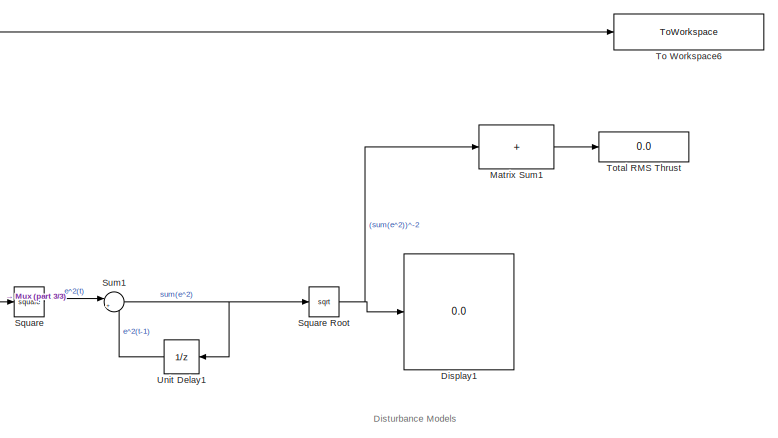
[diagram: Thruster Model - part 1/3, top center region]
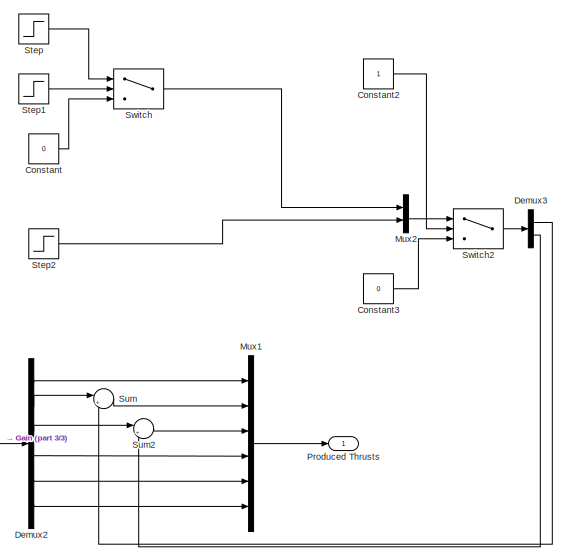
[diagram: Thruster Model - part 2/3, bottom right region]
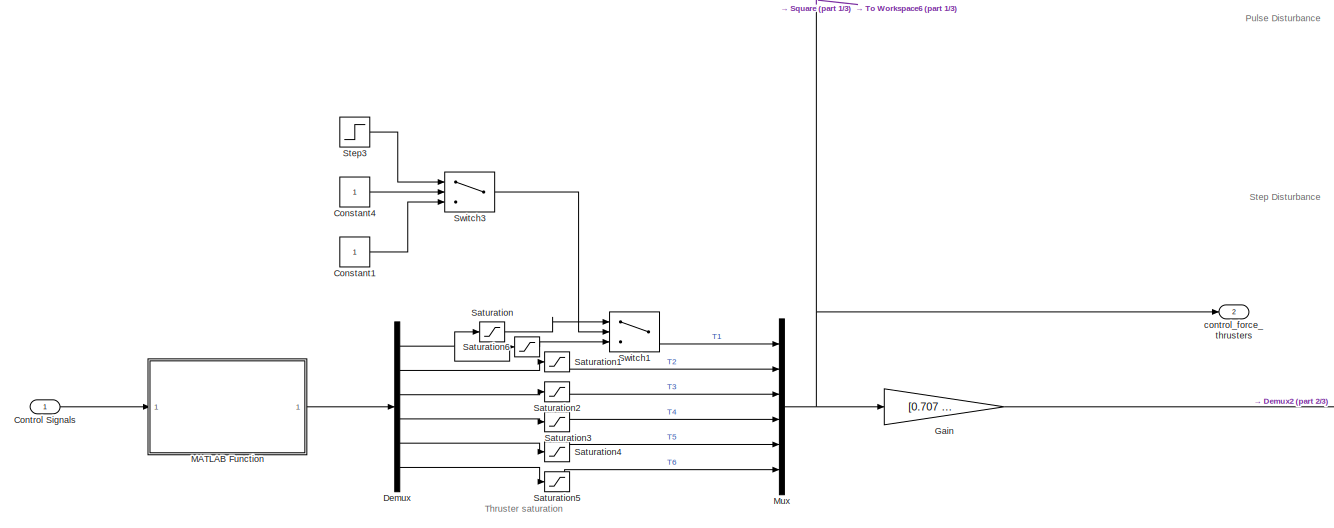
[diagram: Thruster Model - part 3/3, bottom center region]
BLOCK [SubSystem] Thruster Model
BLOCK [Constant] Thruster Model/Constant
  Value = 0
BLOCK [Constant] Thruster Model/Constant1
BLOCK [Constant] Thruster Model/Constant2
BLOCK [Constant] Thruster Model/Constant3
  Value = 0
BLOCK [Constant] Thruster Model/Constant4
BLOCK [Inport] Thruster Model/Control Signals
BLOCK [Demux] Thruster Model/Demux
  Outputs = 6
BLOCK [Demux] Thruster Model/Demux2
  Outputs = 6
BLOCK [Demux] Thruster Model/Demux3
  Outputs = 2
BLOCK [Display] Thruster Model/Display1
  Decimation = 1
  Format = long
BLOCK [Gain] Thruster Model/Gain
  Gain = [0.707 0.707 -0.707 -0.707 0 0;-0.707 0.707 -0.707 0.707 0 0;0 0 0 0 1 1;-0.054 0.054 -0.054 0.054 0.127 -0.127;0.054 0.054 -0.054 -0.054 0 0;-0.208 0.208 0.208 -0.208 0 0];
  Multiplication = Matrix(K*u)
BLOCK [SubSystem] Thruster Model/MATLAB Function
  ErrorFcn = Stateflow.Translate.translate
  PermitHierarchicalResolution = ExplicitOnly
  SFBlockType = MATLAB Function
  TreatAsAtomicUnit = on
BLOCK [Demux] Thruster Model/MATLAB Function/ Demux 
  Outputs = 1
BLOCK [S-Function] Thruster Model/MATLAB Function/ SFunction 
  EnableBusSupport = on
  FunctionName = sf_sfun
  PortCounts = [1 2]
  SFcnIsStateOwnerBlock = off
  SFunctionDeploymentMode = off
  Tag = Stateflow S-Function 2
BLOCK [Terminator] Thruster Model/MATLAB Function/ Terminator 
BLOCK [Outport] Thruster Model/MATLAB Function/thrust_forces
BLOCK [Inport] Thruster Model/MATLAB Function/u
BLOCK [Sum] Thruster Model/Matrix Sum1
  IconShape = rectangular
  Inputs = +
BLOCK [Mux] Thruster Model/Mux
  DisplayOption = bar
  Inputs = 6
BLOCK [Mux] Thruster Model/Mux1
  DisplayOption = bar
  Inputs = 6
BLOCK [Mux] Thruster Model/Mux2
  DisplayOption = bar
  Inputs = 2
BLOCK [Outport] Thruster Model/Produced Thrusts
BLOCK [Saturate] Thruster Model/Saturation
  LowerLimit = -Tmax
  UpperLimit = Tmax
BLOCK [Saturate] Thruster Model/Saturation1
  LowerLimit = -Tmax
  UpperLimit = Tmax
BLOCK [Saturate] Thruster Model/Saturation2
  LowerLimit = -Tmax
  UpperLimit = Tmax
BLOCK [Saturate] Thruster Model/Saturation3
  LowerLimit = -Tmax
  UpperLimit = Tmax
BLOCK [Saturate] Thruster Model/Saturation4
  LowerLimit = -Tmax
  UpperLimit = Tmax
BLOCK [Saturate] Thruster Model/Saturation5
  LowerLimit = -Tmax
  UpperLimit = Tmax
BLOCK [Saturate] Thruster Model/Saturation6
  LowerLimit = -Tmax/4
  UpperLimit = Tmax/4
BLOCK [Math] Thruster Model/Square
  Operator = square
BLOCK [Sqrt] Thruster Model/Square Root
BLOCK [Step] Thruster Model/Step
  After = 0
  Before = -40
  SampleTime = 0
  Time = 60
BLOCK [Step] Thruster Model/Step1
  SampleTime = 0
  Time = 50
BLOCK [Step] Thruster Model/Step2
  After = 40
  SampleTime = 0
  Time = 75
BLOCK [Step] Thruster Model/Step3
  After = 0
  Before = 1
  SampleTime = 0
  Time = 30
BLOCK [Sum] Thruster Model/Sum
  Inputs = |++
BLOCK [Sum] Thruster Model/Sum1
  Inputs = |++
BLOCK [Sum] Thruster Model/Sum2
  Inputs = |++
BLOCK [Switch] Thruster Model/Switch
  Criteria = u2 > Threshold
  InputSameDT = off
  SaturateOnIntegerOverflow = off
BLOCK [Switch] Thruster Model/Switch1
  Criteria = u2 > Threshold
  InputSameDT = off
  SaturateOnIntegerOverflow = off
BLOCK [Switch] Thruster Model/Switch2
  Criteria = u2 > Threshold
  InputSameDT = off
  SaturateOnIntegerOverflow = off
BLOCK [Switch] Thruster Model/Switch3
  Criteria = u2 > Threshold
  InputSameDT = off
  SaturateOnIntegerOverflow = off
BLOCK [ToWorkspace] Thruster Model/To Workspace6
  FixptAsFi = on
  MaxDataPoints = inf
  SampleTime = -1
  VariableName = thrust_rms
BLOCK [Display] Thruster Model/Total RMS Thrust
  Decimation = 1
  Format = long
BLOCK [UnitDelay] Thruster Model/Unit Delay1
  HasFrameUpgradeWarning = on
  SampleTime = -1
BLOCK [Outport] Thruster Model/control_force_thrusters
  Port = 2
BLOCK [SubSystem] Trajectory Generator
  ClipboardFcn = sigbuilder_block('clipboard');
  CloseFcn = sigbuilder_block('close');
  ContinueFcn = sigbuilder_block('continue');
  CopyFcn = sigbuilder_block('copy');
  DeleteFcn = sigbuilder_block('delete');
  LoadFcn = sigbuilder_block('load');
  MaskHideContents = on
  ModelCloseFcn = sigbuilder_block('modelClose');
  NameChangeFcn = sigbuilder_block('namechange');
  OpenFcn = sigbuilder_block('open',[585.75 67.5 848.25 518.25 ]);
  PauseFcn = sigbuilder_block('pause');
  PreSaveFcn = sigbuilder_block('preSave');
  StartFcn = sigbuilder_block('start');
  StopFcn = sigbuilder_block('stop');
  Tag = STV Subsys
BLOCK [Demux] Trajectory Generator/Demux
  DisplayOption = none
  Outputs = 6
  Tag = STV Demux
BLOCK [FromWorkspace] Trajectory Generator/FromWs
  Tag = STV FromWs
  VariableName = tuvar
BLOCK [Outport] Trajectory Generator/Pitch
  Port = 5
  Tag = STV Outport
  VectorParamsAs1DForOutWhenUnconnected = off
BLOCK [Outport] Trajectory Generator/Roll
  Port = 4
  Tag = STV Outport
  VectorParamsAs1DForOutWhenUnconnected = off
BLOCK [Outport] Trajectory Generator/X
  Tag = STV Outport
  VectorParamsAs1DForOutWhenUnconnected = off
BLOCK [Outport] Trajectory Generator/Y
  Port = 2
  Tag = STV Outport
  VectorParamsAs1DForOutWhenUnconnected = off
BLOCK [Outport] Trajectory Generator/Yaw
  Port = 6
  Tag = STV Outport
  VectorParamsAs1DForOutWhenUnconnected = off
BLOCK [Outport] Trajectory Generator/Z
  Port = 3
  Tag = STV Outport
  VectorParamsAs1DForOutWhenUnconnected = off
BLOCK [Constant] robustcoefficient
  Value = 0
ANNOTATION (root): 1) The LIVA AUV used as a plant model in this simulator is designed and developed in the Control & Automation Laboratory at Kocaeli University. 2) If you use LIVA AUV Simulator in your research works and publish papers, we kindly ask that to cite the paper below. [1] Bingul Z, Gul K. Intelligent-PID with PD Feedforward Trajectory Tracking Control of an Autonomous Underwater Vehicle. Machines . 202...<+54ch>
ANNOTATION (root): trajectory 11 = Hard trajectory v4 trajectory 10 = Hard trajectory v3 trajectory 9 = Hard trajectory v2 trajectory 6 = comparing trajectory trajectory 5 = extra fast trajectory trajectory 12 = UE Trajectory
ANNOTATION (root): Thruster Configuration of the LIVA AUV
ANNOTATION (root): DİSTURBANCES
ANNOTATION (root): Information
ANNOTATION (root): LIVA AUV SIMULATION MODEL
ANNOTATION (root): Measurement Noise
ANNOTATION (root): Random Ocean Current Generator
ANNOTATION  6DoF Dynamic Equations (UUV Plant)/Centripetal and Coriolis Matrices : 1 2 3 4 5 6
ANNOTATION  6DoF Dynamic Equations (UUV Plant)/Centripetal and Coriolis Matrices : 7 8 9 10 11 12
ANNOTATION  6DoF Dynamic Equations (UUV Plant)/Centripetal and Coriolis Matrices : CA Coriolis-Centripetal Matrix
ANNOTATION  6DoF Dynamic Equations (UUV Plant)/Centripetal and Coriolis Matrices : CRB Matrix
ANNOTATION  6DoF Dynamic Equations (UUV Plant)/Hydrodynamic Damping Matrices : DL(v)+DNL(v)
ANNOTATION 6DOF CONTROL/2 DoF i-PID Controller/ i-PID Feedback Controller : Error Signals
ANNOTATION 6DOF CONTROL/2 DoF i-PID Controller/ i-PID Feedback Controller : iPID Control Signals
ANNOTATION 6DOF CONTROL/2 DoF i-PID Controller/Feedforward PID Controller : Reference Signals
ANNOTATION 6DOF CONTROL/2 DoF i-PID Controller/Feedforward PID Controller : iPID Control Signals
ANNOTATION 6DOF CONTROL/Hybrid i-PID Controller/2-DoF i-PID Position Controller/Feedback i-PID Controller : Error Signals
ANNOTATION 6DOF CONTROL/Hybrid i-PID Controller/2-DoF i-PID Position Controller/Feedback i-PID Controller : iPID Control Signals
ANNOTATION 6DOF CONTROL/Hybrid i-PID Controller/2-DoF i-PID Position Controller/Feedforward PD Controller: Reference Signals
ANNOTATION 6DOF CONTROL/Hybrid i-PID Controller/2-DoF i-PID Position Controller/Feedforward PD Controller: iPID Control Signals
ANNOTATION 6DOF CONTROL/PID Controller : Error Signals
ANNOTATION 6DOF CONTROL/PID Controller : PID Control Signals
ANNOTATION 6DOF CONTROL/i-PID Controler/i-PID Controller : Error Signals
ANNOTATION 6DOF CONTROL/i-PID Controler/i-PID Controller : iPID Control Signals
ANNOTATION BODY TO NED Kinematic Transformation: NED(v) = J(n)*BODY(v)
ANNOTATION BODY TO NED Kinematic Transformation: Body Frame Positions
ANNOTATION BODY TO NED Kinematic Transformation: u[1 2 3 4 5 6]
ANNOTATION BODY TO NED Kinematic Transformation: u[7 8 9 10 11 12]
ANNOTATION Evaluation & Visualization: IAE
ANNOTATION Evaluation & Visualization: ISCI
ANNOTATION Evaluation & Visualization: ITAE
ANNOTATION Evaluation & Visualization: IVCI
ANNOTATION Model Based Current Observer/CRB(v)+CA(v): 1 2 3 4 5 6
ANNOTATION Model Based Current Observer/CRB(v)+CA(v): 7 8 9 10 11 12
ANNOTATION Model Based Current Observer/CRB(v)+CA(v): CA Coriolis-Centripetal Matrix
ANNOTATION Model Based Current Observer/CRB(v)+CA(v): CRB Matrix
ANNOTATION Ocean Current: u[7 8 9 10 11 12]
ANNOTATION Subsystem1: 1 deg = 0.0174532925 rad
ANNOTATION Subsystem1: Current noises = 10cm position + 2.2 degree orientation noise
ANNOTATION Subsystem1: Limits = 25cm poisition noise + 9 degree orientation noise
ANNOTATION Thruster Model: Disturbance Models
ANNOTATION Thruster Model: Pulse Disturbance
ANNOTATION Thruster Model: Step Disturbance
ANNOTATION Thruster Model: Thruster saturation
LINE  6DoF Dynamic Equations (UUV Plant)/ A Matrix/MA:1 ->  6DoF Dynamic Equations (UUV Plant)/ A Matrix/Ac:1
LINE  6DoF Dynamic Equations (UUV Plant)/ A Matrix/MATLAB Function:1 ->  6DoF Dynamic Equations (UUV Plant)/ A Matrix/MA:1
NET  6DoF Dynamic Equations (UUV Plant)/ A Matrix/currentvel:1 ->  6DoF Dynamic Equations (UUV Plant)/ A Matrix/MATLAB Function:1,  6DoF Dynamic Equations (UUV Plant)/ A Matrix/MATLAB Function:2
LINE  6DoF Dynamic Equations (UUV Plant)/ A Matrix:1 ->  6DoF Dynamic Equations (UUV Plant)/Sum1:5
LINE  6DoF Dynamic Equations (UUV Plant)/Centripetal and Coriolis Matrices /(zg.W - zb.B)cY.sX1:1 ->  6DoF Dynamic Equations (UUV Plant)/Centripetal and Coriolis Matrices /Mux1:2
LINE  6DoF Dynamic Equations (UUV Plant)/Centripetal and Coriolis Matrices /(zg.W - zb.B)cY.sX2:1 ->  6DoF Dynamic Equations (UUV Plant)/Centripetal and Coriolis Matrices /Mux1:3
LINE  6DoF Dynamic Equations (UUV Plant)/Centripetal and Coriolis Matrices /(zg.W - zb.B)cY.sX3:1 ->  6DoF Dynamic Equations (UUV Plant)/Centripetal and Coriolis Matrices /Mux1:4
LINE  6DoF Dynamic Equations (UUV Plant)/Centripetal and Coriolis Matrices /(zg.W - zb.B)cY.sX4:1 ->  6DoF Dynamic Equations (UUV Plant)/Centripetal and Coriolis Matrices /Mux1:5
LINE  6DoF Dynamic Equations (UUV Plant)/Centripetal and Coriolis Matrices /(zg.W - zb.B)cY.sX5:1 ->  6DoF Dynamic Equations (UUV Plant)/Centripetal and Coriolis Matrices /Mux1:6
LINE  6DoF Dynamic Equations (UUV Plant)/Centripetal and Coriolis Matrices /(zg.W - zb.B)cY.sX:1 ->  6DoF Dynamic Equations (UUV Plant)/Centripetal and Coriolis Matrices /Mux1:1
LINE  6DoF Dynamic Equations (UUV Plant)/Centripetal and Coriolis Matrices /Demux1:1 ->  6DoF Dynamic Equations (UUV Plant)/Centripetal and Coriolis Matrices /Product5:2
NET  6DoF Dynamic Equations (UUV Plant)/Centripetal and Coriolis Matrices /Demux1:2 ->  6DoF Dynamic Equations (UUV Plant)/Centripetal and Coriolis Matrices /Product1:1,  6DoF Dynamic Equations (UUV Plant)/Centripetal and Coriolis Matrices /Product3:1,  6DoF Dynamic Equations (UUV Plant)/Centripetal and Coriolis Matrices /Product4:1,  6DoF Dynamic Equations (UUV Plant)/Centripetal and Coriolis Matrices /Product5:1,  6DoF Dynamic Equations (UUV Plant)/Centripetal and Coriolis Matrices /inertia(3x3):1
LINE  6DoF Dynamic Equations (UUV Plant)/Centripetal and Coriolis Matrices /Mux1:1 ->  6DoF Dynamic Equations (UUV Plant)/Centripetal and Coriolis Matrices /Sum5:1
NET  6DoF Dynamic Equations (UUV Plant)/Centripetal and Coriolis Matrices /Mux2:1 ->  6DoF Dynamic Equations (UUV Plant)/Centripetal and Coriolis Matrices /(zg.W - zb.B)cY.sX1:1,  6DoF Dynamic Equations (UUV Plant)/Centripetal and Coriolis Matrices /(zg.W - zb.B)cY.sX2:1,  6DoF Dynamic Equations (UUV Plant)/Centripetal and Coriolis Matrices /(zg.W - zb.B)cY.sX3:1,  6DoF Dynamic Equations (UUV Plant)/Centripetal and Coriolis Matrices /(zg.W - zb.B)cY.sX4:1,  6DoF Dynamic Equations (UUV Plant)/Centripetal and Coriolis Matrices /(zg.W - zb.B)cY.sX5:1,  6DoF Dynamic Equations (UUV Plant)/Centripetal and Coriolis Matrices /(zg.W - zb.B)cY.sX:1
LINE  6DoF Dynamic Equations (UUV Plant)/Centripetal and Coriolis Matrices /Mux:1 ->  6DoF Dynamic Equations (UUV Plant)/Centripetal and Coriolis Matrices /Sum5:2
LINE  6DoF Dynamic Equations (UUV Plant)/Centripetal and Coriolis Matrices /Product1:1 ->  6DoF Dynamic Equations (UUV Plant)/Centripetal and Coriolis Matrices /Sum:2
LINE  6DoF Dynamic Equations (UUV Plant)/Centripetal and Coriolis Matrices /Product2:1 ->  6DoF Dynamic Equations (UUV Plant)/Centripetal and Coriolis Matrices /Sum:1
LINE  6DoF Dynamic Equations (UUV Plant)/Centripetal and Coriolis Matrices /Product3:1 ->  6DoF Dynamic Equations (UUV Plant)/Centripetal and Coriolis Matrices /Product4:2
LINE  6DoF Dynamic Equations (UUV Plant)/Centripetal and Coriolis Matrices /Product4:1 ->  6DoF Dynamic Equations (UUV Plant)/Centripetal and Coriolis Matrices /Sum2:1
NET  6DoF Dynamic Equations (UUV Plant)/Centripetal and Coriolis Matrices /Product5:1 ->  6DoF Dynamic Equations (UUV Plant)/Centripetal and Coriolis Matrices /Product2:2,  6DoF Dynamic Equations (UUV Plant)/Centripetal and Coriolis Matrices /Sum2:2
LINE  6DoF Dynamic Equations (UUV Plant)/Centripetal and Coriolis Matrices /Rg2:1 ->  6DoF Dynamic Equations (UUV Plant)/Centripetal and Coriolis Matrices /Mux2:2
NET  6DoF Dynamic Equations (UUV Plant)/Centripetal and Coriolis Matrices /Rg:1 ->  6DoF Dynamic Equations (UUV Plant)/Centripetal and Coriolis Matrices /Product3:2,  6DoF Dynamic Equations (UUV Plant)/Centripetal and Coriolis Matrices /mass(3x3) :1
LINE  6DoF Dynamic Equations (UUV Plant)/Centripetal and Coriolis Matrices /Sum2:1 ->  6DoF Dynamic Equations (UUV Plant)/Centripetal and Coriolis Matrices /mass(3x3) :1
LINE  6DoF Dynamic Equations (UUV Plant)/Centripetal and Coriolis Matrices /Sum5:1 ->  6DoF Dynamic Equations (UUV Plant)/Centripetal and Coriolis Matrices /Coriolis Force:1
LINE  6DoF Dynamic Equations (UUV Plant)/Centripetal and Coriolis Matrices /Sum:1 ->  6DoF Dynamic Equations (UUV Plant)/Centripetal and Coriolis Matrices /Mux:2
LINE  6DoF Dynamic Equations (UUV Plant)/Centripetal and Coriolis Matrices /Velocity_no_current:1 ->  6DoF Dynamic Equations (UUV Plant)/Centripetal and Coriolis Matrices /Demux1:1
LINE  6DoF Dynamic Equations (UUV Plant)/Centripetal and Coriolis Matrices /Velocity_with_current:1 ->  6DoF Dynamic Equations (UUV Plant)/Centripetal and Coriolis Matrices /Mux2:1
LINE  6DoF Dynamic Equations (UUV Plant)/Centripetal and Coriolis Matrices /inertia(3x3):1 ->  6DoF Dynamic Equations (UUV Plant)/Centripetal and Coriolis Matrices /Product1:2
NET  6DoF Dynamic Equations (UUV Plant)/Centripetal and Coriolis Matrices /mass(3x3) :1 ->  6DoF Dynamic Equations (UUV Plant)/Centripetal and Coriolis Matrices /Mux:1,  6DoF Dynamic Equations (UUV Plant)/Centripetal and Coriolis Matrices /Product2:1
LINE  6DoF Dynamic Equations (UUV Plant)/Centripetal and Coriolis Matrices :1 ->  6DoF Dynamic Equations (UUV Plant)/Sum1:4
NET  6DoF Dynamic Equations (UUV Plant)/Current_Speed:1 ->  6DoF Dynamic Equations (UUV Plant)/ A Matrix:1,  6DoF Dynamic Equations (UUV Plant)/Scope:1,  6DoF Dynamic Equations (UUV Plant)/Sum:2
NET  6DoF Dynamic Equations (UUV Plant)/Discrete-Time Integrator:1 ->  6DoF Dynamic Equations (UUV Plant)/Body Frame Velocity:1,  6DoF Dynamic Equations (UUV Plant)/Centripetal and Coriolis Matrices :1,  6DoF Dynamic Equations (UUV Plant)/Sum:1
LINE  6DoF Dynamic Equations (UUV Plant)/Forces and Moments  :1 ->  6DoF Dynamic Equations (UUV Plant)/Sum1:1
LINE  6DoF Dynamic Equations (UUV Plant)/Hydrodynamic Damping Matrices /D linear:1 ->  6DoF Dynamic Equations (UUV Plant)/Hydrodynamic Damping Matrices /Sum2:2
LINE  6DoF Dynamic Equations (UUV Plant)/Hydrodynamic Damping Matrices /D quadratic:1 ->  6DoF Dynamic Equations (UUV Plant)/Hydrodynamic Damping Matrices /Product:2
LINE  6DoF Dynamic Equations (UUV Plant)/Hydrodynamic Damping Matrices /Product:1 ->  6DoF Dynamic Equations (UUV Plant)/Hydrodynamic Damping Matrices /Sum2:1
LINE  6DoF Dynamic Equations (UUV Plant)/Hydrodynamic Damping Matrices /Sum2:1 ->  6DoF Dynamic Equations (UUV Plant)/Hydrodynamic Damping Matrices /Damping Force:1
NET  6DoF Dynamic Equations (UUV Plant)/Hydrodynamic Damping Matrices /Velocity:1 ->  6DoF Dynamic Equations (UUV Plant)/Hydrodynamic Damping Matrices /D linear:1,  6DoF Dynamic Equations (UUV Plant)/Hydrodynamic Damping Matrices /Product:1,  6DoF Dynamic Equations (UUV Plant)/Hydrodynamic Damping Matrices /|u|:1
LINE  6DoF Dynamic Equations (UUV Plant)/Hydrodynamic Damping Matrices /|u|:1 ->  6DoF Dynamic Equations (UUV Plant)/Hydrodynamic Damping Matrices /D quadratic:1
LINE  6DoF Dynamic Equations (UUV Plant)/Hydrodynamic Damping Matrices :1 ->  6DoF Dynamic Equations (UUV Plant)/Sum1:3
LINE  6DoF Dynamic Equations (UUV Plant)/Inverse Mass Matrix/Thrust force:1 ->  6DoF Dynamic Equations (UUV Plant)/Inverse Mass Matrix/inv(MRB+MA):1
LINE  6DoF Dynamic Equations (UUV Plant)/Inverse Mass Matrix/inv(MRB+MA):1 ->  6DoF Dynamic Equations (UUV Plant)/Inverse Mass Matrix/Acceleration:1
LINE  6DoF Dynamic Equations (UUV Plant)/Inverse Mass Matrix:1 ->  6DoF Dynamic Equations (UUV Plant)/Discrete-Time Integrator:1
NET  6DoF Dynamic Equations (UUV Plant)/Observed Current Velocity:1 ->  6DoF Dynamic Equations (UUV Plant)/Scope:2,  6DoF Dynamic Equations (UUV Plant)/Sum:3
LINE  6DoF Dynamic Equations (UUV Plant)/Positions :1 ->  6DoF Dynamic Equations (UUV Plant)/Restoring Forces Matrix:1
LINE  6DoF Dynamic Equations (UUV Plant)/Restoring Forces Matrix/(xg.W-xb.B)cY.cX:1 ->  6DoF Dynamic Equations (UUV Plant)/Restoring Forces Matrix/Sum1:1
LINE  6DoF Dynamic Equations (UUV Plant)/Restoring Forces Matrix/(zg.W - zb.B)cY.sX:1 ->  6DoF Dynamic Equations (UUV Plant)/Restoring Forces Matrix/Sum:1
LINE  6DoF Dynamic Equations (UUV Plant)/Restoring Forces Matrix/(zg.W - zb.B)sY:1 ->  6DoF Dynamic Equations (UUV Plant)/Restoring Forces Matrix/Sum1:2
LINE  6DoF Dynamic Equations (UUV Plant)/Restoring Forces Matrix/-(xg.W-xb.B)cY.sX:1 ->  6DoF Dynamic Equations (UUV Plant)/Restoring Forces Matrix/Sum2:2
LINE  6DoF Dynamic Equations (UUV Plant)/Restoring Forces Matrix/-(yg.W-yb.B)cY.cX:1 ->  6DoF Dynamic Equations (UUV Plant)/Restoring Forces Matrix/Sum:2
LINE  6DoF Dynamic Equations (UUV Plant)/Restoring Forces Matrix/-(yg.W-yb.B)sY:1 ->  6DoF Dynamic Equations (UUV Plant)/Restoring Forces Matrix/Sum2:1
LINE  6DoF Dynamic Equations (UUV Plant)/Restoring Forces Matrix/-cY.cX:1 ->  6DoF Dynamic Equations (UUV Plant)/Restoring Forces Matrix/Mux:3
LINE  6DoF Dynamic Equations (UUV Plant)/Restoring Forces Matrix/-cY.sX:1 ->  6DoF Dynamic Equations (UUV Plant)/Restoring Forces Matrix/Mux:2
LINE  6DoF Dynamic Equations (UUV Plant)/Restoring Forces Matrix/Demux:1 ->  6DoF Dynamic Equations (UUV Plant)/Restoring Forces Matrix/Terminator:1
NET  6DoF Dynamic Equations (UUV Plant)/Restoring Forces Matrix/Demux:2 ->  6DoF Dynamic Equations (UUV Plant)/Restoring Forces Matrix/(xg.W-xb.B)cY.cX:1,  6DoF Dynamic Equations (UUV Plant)/Restoring Forces Matrix/(zg.W - zb.B)cY.sX:1,  6DoF Dynamic Equations (UUV Plant)/Restoring Forces Matrix/(zg.W - zb.B)sY:1,  6DoF Dynamic Equations (UUV Plant)/Restoring Forces Matrix/-(xg.W-xb.B)cY.sX:1,  6DoF Dynamic Equations (UUV Plant)/Restoring Forces Matrix/-(yg.W-yb.B)cY.cX:1,  6DoF Dynamic Equations (UUV Plant)/Restoring Forces Matrix/-(yg.W-yb.B)sY:1,  6DoF Dynamic Equations (UUV Plant)/Restoring Forces Matrix/-cY.cX:1,  6DoF Dynamic Equations (UUV Plant)/Restoring Forces Matrix/-cY.sX:1,  6DoF Dynamic Equations (UUV Plant)/Restoring Forces Matrix/sY:1
LINE  6DoF Dynamic Equations (UUV Plant)/Restoring Forces Matrix/Mux1:1 ->  6DoF Dynamic Equations (UUV Plant)/Restoring Forces Matrix/Gravitational Force:1
LINE  6DoF Dynamic Equations (UUV Plant)/Restoring Forces Matrix/Mux:1 ->  6DoF Dynamic Equations (UUV Plant)/Restoring Forces Matrix/Mux1:1
LINE  6DoF Dynamic Equations (UUV Plant)/Restoring Forces Matrix/Sum1:1 ->  6DoF Dynamic Equations (UUV Plant)/Restoring Forces Matrix/Mux1:3
LINE  6DoF Dynamic Equations (UUV Plant)/Restoring Forces Matrix/Sum2:1 ->  6DoF Dynamic Equations (UUV Plant)/Restoring Forces Matrix/Mux1:4
LINE  6DoF Dynamic Equations (UUV Plant)/Restoring Forces Matrix/Sum:1 ->  6DoF Dynamic Equations (UUV Plant)/Restoring Forces Matrix/Mux1:2
LINE  6DoF Dynamic Equations (UUV Plant)/Restoring Forces Matrix/positions:1 ->  6DoF Dynamic Equations (UUV Plant)/Restoring Forces Matrix/Demux:1
LINE  6DoF Dynamic Equations (UUV Plant)/Restoring Forces Matrix/sY:1 ->  6DoF Dynamic Equations (UUV Plant)/Restoring Forces Matrix/Mux:1
LINE  6DoF Dynamic Equations (UUV Plant)/Restoring Forces Matrix:1 ->  6DoF Dynamic Equations (UUV Plant)/Sum1:2
LINE  6DoF Dynamic Equations (UUV Plant)/Sum1:1 ->  6DoF Dynamic Equations (UUV Plant)/Inverse Mass Matrix:1
NET  6DoF Dynamic Equations (UUV Plant)/Sum:1 ->  6DoF Dynamic Equations (UUV Plant)/Centripetal and Coriolis Matrices :2,  6DoF Dynamic Equations (UUV Plant)/Hydrodynamic Damping Matrices :1
NET  6DoF Dynamic Equations (UUV Plant):1 -> BODY TO NED Kinematic Transformation:1, Model Based Current Observer:3
LINE 6DOF CONTROL/2 DoF i-PID Controller/ i-PID Feedback Controller /Body Frame Positions:1 -> 6DOF CONTROL/2 DoF i-PID Controller/ i-PID Feedback Controller /Calculation:3
LINE 6DOF CONTROL/2 DoF i-PID Controller/ i-PID Feedback Controller /Body Frame Reference Trajectory:1 -> 6DOF CONTROL/2 DoF i-PID Controller/ i-PID Feedback Controller /Calculation:1
LINE 6DOF CONTROL/2 DoF i-PID Controller/ i-PID Feedback Controller /Calculation/Body Frame Positions:1 -> 6DOF CONTROL/2 DoF i-PID Controller/ i-PID Feedback Controller /Calculation/Filtered Derivative (Discrete or Continuous)2:1
LINE 6DOF CONTROL/2 DoF i-PID Controller/ i-PID Feedback Controller /Calculation/Body Frame Reference Trajectory:1 -> 6DOF CONTROL/2 DoF i-PID Controller/ i-PID Feedback Controller /Calculation/Filtered Derivative (Discrete or Continuous):1
LINE 6DOF CONTROL/2 DoF i-PID Controller/ i-PID Feedback Controller /Calculation/Divide1:1 -> 6DOF CONTROL/2 DoF i-PID Controller/ i-PID Feedback Controller /Calculation/Sum1:2
LINE 6DOF CONTROL/2 DoF i-PID Controller/ i-PID Feedback Controller /Calculation/Divide2:1 -> 6DOF CONTROL/2 DoF i-PID Controller/ i-PID Feedback Controller /Calculation/Sum2:1
LINE 6DOF CONTROL/2 DoF i-PID Controller/ i-PID Feedback Controller /Calculation/Divide:1 -> 6DOF CONTROL/2 DoF i-PID Controller/ i-PID Feedback Controller /Calculation/Sum:2
LINE 6DOF CONTROL/2 DoF i-PID Controller/ i-PID Feedback Controller /Calculation/Filtered Derivative (Discrete or Continuous)1:1 -> 6DOF CONTROL/2 DoF i-PID Controller/ i-PID Feedback Controller /Calculation/Sum:1
LINE 6DOF CONTROL/2 DoF i-PID Controller/ i-PID Feedback Controller /Calculation/Filtered Derivative (Discrete or Continuous)2:1 -> 6DOF CONTROL/2 DoF i-PID Controller/ i-PID Feedback Controller /Calculation/Filtered Derivative (Discrete or Continuous)3:1
LINE 6DOF CONTROL/2 DoF i-PID Controller/ i-PID Feedback Controller /Calculation/Filtered Derivative (Discrete or Continuous)3:1 -> 6DOF CONTROL/2 DoF i-PID Controller/ i-PID Feedback Controller /Calculation/Sum1:1
LINE 6DOF CONTROL/2 DoF i-PID Controller/ i-PID Feedback Controller /Calculation/Filtered Derivative (Discrete or Continuous):1 -> 6DOF CONTROL/2 DoF i-PID Controller/ i-PID Feedback Controller /Calculation/Filtered Derivative (Discrete or Continuous)1:1
LINE 6DOF CONTROL/2 DoF i-PID Controller/ i-PID Feedback Controller /Calculation/PI Controller Outputs:1 -> 6DOF CONTROL/2 DoF i-PID Controller/ i-PID Feedback Controller /Calculation/Sum2:2
LINE 6DOF CONTROL/2 DoF i-PID Controller/ i-PID Feedback Controller /Calculation/Sum1:1 -> 6DOF CONTROL/2 DoF i-PID Controller/ i-PID Feedback Controller /Calculation/Divide:1
NET 6DOF CONTROL/2 DoF i-PID Controller/ i-PID Feedback Controller /Calculation/Sum2:1 -> 6DOF CONTROL/2 DoF i-PID Controller/ i-PID Feedback Controller /Calculation/IPI Controller Outputs:1, 6DOF CONTROL/2 DoF i-PID Controller/ i-PID Feedback Controller /Calculation/Unit Delay:1
LINE 6DOF CONTROL/2 DoF i-PID Controller/ i-PID Feedback Controller /Calculation/Sum:1 -> 6DOF CONTROL/2 DoF i-PID Controller/ i-PID Feedback Controller /Calculation/Divide2:1
LINE 6DOF CONTROL/2 DoF i-PID Controller/ i-PID Feedback Controller /Calculation/Unit Delay:1 -> 6DOF CONTROL/2 DoF i-PID Controller/ i-PID Feedback Controller /Calculation/Divide1:1
NET 6DOF CONTROL/2 DoF i-PID Controller/ i-PID Feedback Controller /Calculation/a:1 -> 6DOF CONTROL/2 DoF i-PID Controller/ i-PID Feedback Controller /Calculation/Divide1:2, 6DOF CONTROL/2 DoF i-PID Controller/ i-PID Feedback Controller /Calculation/Divide2:2, 6DOF CONTROL/2 DoF i-PID Controller/ i-PID Feedback Controller /Calculation/Divide:2
LINE 6DOF CONTROL/2 DoF i-PID Controller/ i-PID Feedback Controller /Calculation:1 -> 6DOF CONTROL/2 DoF i-PID Controller/ i-PID Feedback Controller /iPID Control Signals:1
LINE 6DOF CONTROL/2 DoF i-PID Controller/ i-PID Feedback Controller /Demux:1 -> 6DOF CONTROL/2 DoF i-PID Controller/ i-PID Feedback Controller /PID Controller:1
LINE 6DOF CONTROL/2 DoF i-PID Controller/ i-PID Feedback Controller /Demux:2 -> 6DOF CONTROL/2 DoF i-PID Controller/ i-PID Feedback Controller /PID Controller1:1
LINE 6DOF CONTROL/2 DoF i-PID Controller/ i-PID Feedback Controller /Demux:3 -> 6DOF CONTROL/2 DoF i-PID Controller/ i-PID Feedback Controller /PID Controller2:1
LINE 6DOF CONTROL/2 DoF i-PID Controller/ i-PID Feedback Controller /Demux:4 -> 6DOF CONTROL/2 DoF i-PID Controller/ i-PID Feedback Controller /PID Controller3:1
LINE 6DOF CONTROL/2 DoF i-PID Controller/ i-PID Feedback Controller /Demux:5 -> 6DOF CONTROL/2 DoF i-PID Controller/ i-PID Feedback Controller /PID Controller4:1
LINE 6DOF CONTROL/2 DoF i-PID Controller/ i-PID Feedback Controller /Demux:6 -> 6DOF CONTROL/2 DoF i-PID Controller/ i-PID Feedback Controller /PID Controller5:1
LINE 6DOF CONTROL/2 DoF i-PID Controller/ i-PID Feedback Controller /Error Signals:1 -> 6DOF CONTROL/2 DoF i-PID Controller/ i-PID Feedback Controller /Demux:1
LINE 6DOF CONTROL/2 DoF i-PID Controller/ i-PID Feedback Controller /Mux2:1 -> 6DOF CONTROL/2 DoF i-PID Controller/ i-PID Feedback Controller /Calculation:2
LINE 6DOF CONTROL/2 DoF i-PID Controller/ i-PID Feedback Controller /PID Controller1:1 -> 6DOF CONTROL/2 DoF i-PID Controller/ i-PID Feedback Controller /Mux2:2
LINE 6DOF CONTROL/2 DoF i-PID Controller/ i-PID Feedback Controller /PID Controller2:1 -> 6DOF CONTROL/2 DoF i-PID Controller/ i-PID Feedback Controller /Mux2:3
LINE 6DOF CONTROL/2 DoF i-PID Controller/ i-PID Feedback Controller /PID Controller3:1 -> 6DOF CONTROL/2 DoF i-PID Controller/ i-PID Feedback Controller /Mux2:4
LINE 6DOF CONTROL/2 DoF i-PID Controller/ i-PID Feedback Controller /PID Controller4:1 -> 6DOF CONTROL/2 DoF i-PID Controller/ i-PID Feedback Controller /Mux2:5
LINE 6DOF CONTROL/2 DoF i-PID Controller/ i-PID Feedback Controller /PID Controller5:1 -> 6DOF CONTROL/2 DoF i-PID Controller/ i-PID Feedback Controller /Mux2:6
LINE 6DOF CONTROL/2 DoF i-PID Controller/ i-PID Feedback Controller /PID Controller:1 -> 6DOF CONTROL/2 DoF i-PID Controller/ i-PID Feedback Controller /Mux2:1
LINE 6DOF CONTROL/2 DoF i-PID Controller/ i-PID Feedback Controller :1 -> 6DOF CONTROL/2 DoF i-PID Controller/Sum:2
LINE 6DOF CONTROL/2 DoF i-PID Controller/Earth Frame Positions:1 -> 6DOF CONTROL/2 DoF i-PID Controller/ i-PID Feedback Controller :3
NET 6DOF CONTROL/2 DoF i-PID Controller/Earth Frame Reference Trajectory:1 -> 6DOF CONTROL/2 DoF i-PID Controller/ i-PID Feedback Controller :1, 6DOF CONTROL/2 DoF i-PID Controller/Feedforward PID Controller :1
LINE 6DOF CONTROL/2 DoF i-PID Controller/Error Signals:1 -> 6DOF CONTROL/2 DoF i-PID Controller/ i-PID Feedback Controller :2
LINE 6DOF CONTROL/2 DoF i-PID Controller/Feedforward PID Controller /Demux:1 -> 6DOF CONTROL/2 DoF i-PID Controller/Feedforward PID Controller /PID Controller:1
LINE 6DOF CONTROL/2 DoF i-PID Controller/Feedforward PID Controller /Demux:2 -> 6DOF CONTROL/2 DoF i-PID Controller/Feedforward PID Controller /PID Controller1:1
LINE 6DOF CONTROL/2 DoF i-PID Controller/Feedforward PID Controller /Demux:3 -> 6DOF CONTROL/2 DoF i-PID Controller/Feedforward PID Controller /PID Controller2:1
LINE 6DOF CONTROL/2 DoF i-PID Controller/Feedforward PID Controller /Demux:4 -> 6DOF CONTROL/2 DoF i-PID Controller/Feedforward PID Controller /PID Controller3:1
LINE 6DOF CONTROL/2 DoF i-PID Controller/Feedforward PID Controller /Demux:5 -> 6DOF CONTROL/2 DoF i-PID Controller/Feedforward PID Controller /PID Controller4:1
LINE 6DOF CONTROL/2 DoF i-PID Controller/Feedforward PID Controller /Demux:6 -> 6DOF CONTROL/2 DoF i-PID Controller/Feedforward PID Controller /PID Controller5:1
LINE 6DOF CONTROL/2 DoF i-PID Controller/Feedforward PID Controller /Mux2:1 -> 6DOF CONTROL/2 DoF i-PID Controller/Feedforward PID Controller /iPID Control Signals:1
LINE 6DOF CONTROL/2 DoF i-PID Controller/Feedforward PID Controller /PID Controller1:1 -> 6DOF CONTROL/2 DoF i-PID Controller/Feedforward PID Controller /Mux2:2
LINE 6DOF CONTROL/2 DoF i-PID Controller/Feedforward PID Controller /PID Controller2:1 -> 6DOF CONTROL/2 DoF i-PID Controller/Feedforward PID Controller /Mux2:3
LINE 6DOF CONTROL/2 DoF i-PID Controller/Feedforward PID Controller /PID Controller3:1 -> 6DOF CONTROL/2 DoF i-PID Controller/Feedforward PID Controller /Mux2:4
LINE 6DOF CONTROL/2 DoF i-PID Controller/Feedforward PID Controller /PID Controller4:1 -> 6DOF CONTROL/2 DoF i-PID Controller/Feedforward PID Controller /Mux2:5
LINE 6DOF CONTROL/2 DoF i-PID Controller/Feedforward PID Controller /PID Controller5:1 -> 6DOF CONTROL/2 DoF i-PID Controller/Feedforward PID Controller /Mux2:6
LINE 6DOF CONTROL/2 DoF i-PID Controller/Feedforward PID Controller /PID Controller:1 -> 6DOF CONTROL/2 DoF i-PID Controller/Feedforward PID Controller /Mux2:1
LINE 6DOF CONTROL/2 DoF i-PID Controller/Feedforward PID Controller /Reference Signals:1 -> 6DOF CONTROL/2 DoF i-PID Controller/Feedforward PID Controller /Demux:1
LINE 6DOF CONTROL/2 DoF i-PID Controller/Feedforward PID Controller :1 -> 6DOF CONTROL/2 DoF i-PID Controller/Sum:1
LINE 6DOF CONTROL/2 DoF i-PID Controller/Sum:1 -> 6DOF CONTROL/2 DoF i-PID Controller/Control Signals:1
LINE 6DOF CONTROL/Hybrid i-PID Controller/2-DoF i-PID Position Controller/Feedback i-PID Controller /Body Frame Positions:1 -> 6DOF CONTROL/Hybrid i-PID Controller/2-DoF i-PID Position Controller/Feedback i-PID Controller /Calculation:3
LINE 6DOF CONTROL/Hybrid i-PID Controller/2-DoF i-PID Position Controller/Feedback i-PID Controller /Body Frame Reference Trajectory:1 -> 6DOF CONTROL/Hybrid i-PID Controller/2-DoF i-PID Position Controller/Feedback i-PID Controller /Calculation:1
LINE 6DOF CONTROL/Hybrid i-PID Controller/2-DoF i-PID Position Controller/Feedback i-PID Controller /Calculation/Body Frame Positions:1 -> 6DOF CONTROL/Hybrid i-PID Controller/2-DoF i-PID Position Controller/Feedback i-PID Controller /Calculation/Filtered Derivative (Discrete or Continuous)2:1
LINE 6DOF CONTROL/Hybrid i-PID Controller/2-DoF i-PID Position Controller/Feedback i-PID Controller /Calculation/Body Frame Reference Trajectory:1 -> 6DOF CONTROL/Hybrid i-PID Controller/2-DoF i-PID Position Controller/Feedback i-PID Controller /Calculation/Filtered Derivative (Discrete or Continuous):1
LINE 6DOF CONTROL/Hybrid i-PID Controller/2-DoF i-PID Position Controller/Feedback i-PID Controller /Calculation/Divide1:1 -> 6DOF CONTROL/Hybrid i-PID Controller/2-DoF i-PID Position Controller/Feedback i-PID Controller /Calculation/Sum1:2
LINE 6DOF CONTROL/Hybrid i-PID Controller/2-DoF i-PID Position Controller/Feedback i-PID Controller /Calculation/Divide2:1 -> 6DOF CONTROL/Hybrid i-PID Controller/2-DoF i-PID Position Controller/Feedback i-PID Controller /Calculation/Sum2:1
LINE 6DOF CONTROL/Hybrid i-PID Controller/2-DoF i-PID Position Controller/Feedback i-PID Controller /Calculation/Divide:1 -> 6DOF CONTROL/Hybrid i-PID Controller/2-DoF i-PID Position Controller/Feedback i-PID Controller /Calculation/Sum:2
LINE 6DOF CONTROL/Hybrid i-PID Controller/2-DoF i-PID Position Controller/Feedback i-PID Controller /Calculation/Filtered Derivative (Discrete or Continuous)1:1 -> 6DOF CONTROL/Hybrid i-PID Controller/2-DoF i-PID Position Controller/Feedback i-PID Controller /Calculation/Sum:1
LINE 6DOF CONTROL/Hybrid i-PID Controller/2-DoF i-PID Position Controller/Feedback i-PID Controller /Calculation/Filtered Derivative (Discrete or Continuous)2:1 -> 6DOF CONTROL/Hybrid i-PID Controller/2-DoF i-PID Position Controller/Feedback i-PID Controller /Calculation/Filtered Derivative (Discrete or Continuous)3:1
LINE 6DOF CONTROL/Hybrid i-PID Controller/2-DoF i-PID Position Controller/Feedback i-PID Controller /Calculation/Filtered Derivative (Discrete or Continuous)3:1 -> 6DOF CONTROL/Hybrid i-PID Controller/2-DoF i-PID Position Controller/Feedback i-PID Controller /Calculation/Sum1:1
LINE 6DOF CONTROL/Hybrid i-PID Controller/2-DoF i-PID Position Controller/Feedback i-PID Controller /Calculation/Filtered Derivative (Discrete or Continuous):1 -> 6DOF CONTROL/Hybrid i-PID Controller/2-DoF i-PID Position Controller/Feedback i-PID Controller /Calculation/Filtered Derivative (Discrete or Continuous)1:1
LINE 6DOF CONTROL/Hybrid i-PID Controller/2-DoF i-PID Position Controller/Feedback i-PID Controller /Calculation/PI Controller Outputs:1 -> 6DOF CONTROL/Hybrid i-PID Controller/2-DoF i-PID Position Controller/Feedback i-PID Controller /Calculation/Sum2:2
NET 6DOF CONTROL/Hybrid i-PID Controller/2-DoF i-PID Position Controller/Feedback i-PID Controller /Calculation/Sum1:1 -> 6DOF CONTROL/Hybrid i-PID Controller/2-DoF i-PID Position Controller/Feedback i-PID Controller /Calculation/Divide:1, 6DOF CONTROL/Hybrid i-PID Controller/2-DoF i-PID Position Controller/Feedback i-PID Controller /Calculation/Scope:1
NET 6DOF CONTROL/Hybrid i-PID Controller/2-DoF i-PID Position Controller/Feedback i-PID Controller /Calculation/Sum2:1 -> 6DOF CONTROL/Hybrid i-PID Controller/2-DoF i-PID Position Controller/Feedback i-PID Controller /Calculation/IPI Controller Outputs:1, 6DOF CONTROL/Hybrid i-PID Controller/2-DoF i-PID Position Controller/Feedback i-PID Controller /Calculation/Unit Delay:1
LINE 6DOF CONTROL/Hybrid i-PID Controller/2-DoF i-PID Position Controller/Feedback i-PID Controller /Calculation/Sum:1 -> 6DOF CONTROL/Hybrid i-PID Controller/2-DoF i-PID Position Controller/Feedback i-PID Controller /Calculation/Divide2:1
LINE 6DOF CONTROL/Hybrid i-PID Controller/2-DoF i-PID Position Controller/Feedback i-PID Controller /Calculation/Unit Delay:1 -> 6DOF CONTROL/Hybrid i-PID Controller/2-DoF i-PID Position Controller/Feedback i-PID Controller /Calculation/Divide1:1
NET 6DOF CONTROL/Hybrid i-PID Controller/2-DoF i-PID Position Controller/Feedback i-PID Controller /Calculation/a:1 -> 6DOF CONTROL/Hybrid i-PID Controller/2-DoF i-PID Position Controller/Feedback i-PID Controller /Calculation/Divide1:2, 6DOF CONTROL/Hybrid i-PID Controller/2-DoF i-PID Position Controller/Feedback i-PID Controller /Calculation/Divide2:2, 6DOF CONTROL/Hybrid i-PID Controller/2-DoF i-PID Position Controller/Feedback i-PID Controller /Calculation/Divide:2
LINE 6DOF CONTROL/Hybrid i-PID Controller/2-DoF i-PID Position Controller/Feedback i-PID Controller /Calculation:1 -> 6DOF CONTROL/Hybrid i-PID Controller/2-DoF i-PID Position Controller/Feedback i-PID Controller /iPID Control Signals:1
LINE 6DOF CONTROL/Hybrid i-PID Controller/2-DoF i-PID Position Controller/Feedback i-PID Controller /Demux:1 -> 6DOF CONTROL/Hybrid i-PID Controller/2-DoF i-PID Position Controller/Feedback i-PID Controller /PID Controller:1
LINE 6DOF CONTROL/Hybrid i-PID Controller/2-DoF i-PID Position Controller/Feedback i-PID Controller /Demux:2 -> 6DOF CONTROL/Hybrid i-PID Controller/2-DoF i-PID Position Controller/Feedback i-PID Controller /PID Controller1:1
LINE 6DOF CONTROL/Hybrid i-PID Controller/2-DoF i-PID Position Controller/Feedback i-PID Controller /Demux:3 -> 6DOF CONTROL/Hybrid i-PID Controller/2-DoF i-PID Position Controller/Feedback i-PID Controller /PID Controller2:1
LINE 6DOF CONTROL/Hybrid i-PID Controller/2-DoF i-PID Position Controller/Feedback i-PID Controller /Error Signals:1 -> 6DOF CONTROL/Hybrid i-PID Controller/2-DoF i-PID Position Controller/Feedback i-PID Controller /Demux:1
LINE 6DOF CONTROL/Hybrid i-PID Controller/2-DoF i-PID Position Controller/Feedback i-PID Controller /Mux2:1 -> 6DOF CONTROL/Hybrid i-PID Controller/2-DoF i-PID Position Controller/Feedback i-PID Controller /Calculation:2
LINE 6DOF CONTROL/Hybrid i-PID Controller/2-DoF i-PID Position Controller/Feedback i-PID Controller /PID Controller1:1 -> 6DOF CONTROL/Hybrid i-PID Controller/2-DoF i-PID Position Controller/Feedback i-PID Controller /Mux2:2
LINE 6DOF CONTROL/Hybrid i-PID Controller/2-DoF i-PID Position Controller/Feedback i-PID Controller /PID Controller2:1 -> 6DOF CONTROL/Hybrid i-PID Controller/2-DoF i-PID Position Controller/Feedback i-PID Controller /Mux2:3
LINE 6DOF CONTROL/Hybrid i-PID Controller/2-DoF i-PID Position Controller/Feedback i-PID Controller /PID Controller:1 -> 6DOF CONTROL/Hybrid i-PID Controller/2-DoF i-PID Position Controller/Feedback i-PID Controller /Mux2:1
LINE 6DOF CONTROL/Hybrid i-PID Controller/2-DoF i-PID Position Controller/Feedback i-PID Controller :1 -> 6DOF CONTROL/Hybrid i-PID Controller/2-DoF i-PID Position Controller/Feedback Control Signals:1
LINE 6DOF CONTROL/Hybrid i-PID Controller/2-DoF i-PID Position Controller/Feedforward PD Controller/Demux:1 -> 6DOF CONTROL/Hybrid i-PID Controller/2-DoF i-PID Position Controller/Feedforward PD Controller/PID Controller:1
LINE 6DOF CONTROL/Hybrid i-PID Controller/2-DoF i-PID Position Controller/Feedforward PD Controller/Demux:2 -> 6DOF CONTROL/Hybrid i-PID Controller/2-DoF i-PID Position Controller/Feedforward PD Controller/PID Controller1:1
LINE 6DOF CONTROL/Hybrid i-PID Controller/2-DoF i-PID Position Controller/Feedforward PD Controller/Demux:3 -> 6DOF CONTROL/Hybrid i-PID Controller/2-DoF i-PID Position Controller/Feedforward PD Controller/PID Controller2:1
LINE 6DOF CONTROL/Hybrid i-PID Controller/2-DoF i-PID Position Controller/Feedforward PD Controller/Mux2:1 -> 6DOF CONTROL/Hybrid i-PID Controller/2-DoF i-PID Position Controller/Feedforward PD Controller/iPID Control Signals:1
LINE 6DOF CONTROL/Hybrid i-PID Controller/2-DoF i-PID Position Controller/Feedforward PD Controller/PID Controller1:1 -> 6DOF CONTROL/Hybrid i-PID Controller/2-DoF i-PID Position Controller/Feedforward PD Controller/Mux2:2
LINE 6DOF CONTROL/Hybrid i-PID Controller/2-DoF i-PID Position Controller/Feedforward PD Controller/PID Controller2:1 -> 6DOF CONTROL/Hybrid i-PID Controller/2-DoF i-PID Position Controller/Feedforward PD Controller/Mux2:3
LINE 6DOF CONTROL/Hybrid i-PID Controller/2-DoF i-PID Position Controller/Feedforward PD Controller/PID Controller:1 -> 6DOF CONTROL/Hybrid i-PID Controller/2-DoF i-PID Position Controller/Feedforward PD Controller/Mux2:1
LINE 6DOF CONTROL/Hybrid i-PID Controller/2-DoF i-PID Position Controller/Feedforward PD Controller/Reference Signals:1 -> 6DOF CONTROL/Hybrid i-PID Controller/2-DoF i-PID Position Controller/Feedforward PD Controller/Demux:1
LINE 6DOF CONTROL/Hybrid i-PID Controller/2-DoF i-PID Position Controller/Feedforward PD Controller:1 -> 6DOF CONTROL/Hybrid i-PID Controller/2-DoF i-PID Position Controller/Feedforward Control Signals:1
NET 6DOF CONTROL/Hybrid i-PID Controller/2-DoF i-PID Position Controller/Poisition Reference Signals:1 -> 6DOF CONTROL/Hybrid i-PID Controller/2-DoF i-PID Position Controller/Feedback i-PID Controller :1, 6DOF CONTROL/Hybrid i-PID Controller/2-DoF i-PID Position Controller/Feedforward PD Controller:1
LINE 6DOF CONTROL/Hybrid i-PID Controller/2-DoF i-PID Position Controller/Position Error Signals:1 -> 6DOF CONTROL/Hybrid i-PID Controller/2-DoF i-PID Position Controller/Feedback i-PID Controller :2
LINE 6DOF CONTROL/Hybrid i-PID Controller/2-DoF i-PID Position Controller/UUV Current Positions:1 -> 6DOF CONTROL/Hybrid i-PID Controller/2-DoF i-PID Position Controller/Feedback i-PID Controller :3
LINE 6DOF CONTROL/Hybrid i-PID Controller/2-DoF i-PID Position Controller:1 -> 6DOF CONTROL/Hybrid i-PID Controller/Sum:1
LINE 6DOF CONTROL/Hybrid i-PID Controller/2-DoF i-PID Position Controller:2 -> 6DOF CONTROL/Hybrid i-PID Controller/Sum:2
LINE 6DOF CONTROL/Hybrid i-PID Controller/Demux1:1 -> 6DOF CONTROL/Hybrid i-PID Controller/Mux5:1
LINE 6DOF CONTROL/Hybrid i-PID Controller/Demux1:2 -> 6DOF CONTROL/Hybrid i-PID Controller/Mux5:2
LINE 6DOF CONTROL/Hybrid i-PID Controller/Demux1:3 -> 6DOF CONTROL/Hybrid i-PID Controller/Mux5:3
LINE 6DOF CONTROL/Hybrid i-PID Controller/Demux3:1 -> 6DOF CONTROL/Hybrid i-PID Controller/Mux1:1
LINE 6DOF CONTROL/Hybrid i-PID Controller/Demux3:2 -> 6DOF CONTROL/Hybrid i-PID Controller/Mux1:2
LINE 6DOF CONTROL/Hybrid i-PID Controller/Demux3:3 -> 6DOF CONTROL/Hybrid i-PID Controller/Mux1:3
LINE 6DOF CONTROL/Hybrid i-PID Controller/Demux4:4 -> 6DOF CONTROL/Hybrid i-PID Controller/Mux2:1
LINE 6DOF CONTROL/Hybrid i-PID Controller/Demux4:5 -> 6DOF CONTROL/Hybrid i-PID Controller/Mux2:2
LINE 6DOF CONTROL/Hybrid i-PID Controller/Demux4:6 -> 6DOF CONTROL/Hybrid i-PID Controller/Mux2:3
LINE 6DOF CONTROL/Hybrid i-PID Controller/Demux5:1 -> 6DOF CONTROL/Hybrid i-PID Controller/Mux3:1
LINE 6DOF CONTROL/Hybrid i-PID Controller/Demux5:2 -> 6DOF CONTROL/Hybrid i-PID Controller/Mux3:2
LINE 6DOF CONTROL/Hybrid i-PID Controller/Demux5:3 -> 6DOF CONTROL/Hybrid i-PID Controller/Mux3:3
LINE 6DOF CONTROL/Hybrid i-PID Controller/Demux6:4 -> 6DOF CONTROL/Hybrid i-PID Controller/Mux4:1
LINE 6DOF CONTROL/Hybrid i-PID Controller/Demux6:5 -> 6DOF CONTROL/Hybrid i-PID Controller/Mux4:2
LINE 6DOF CONTROL/Hybrid i-PID Controller/Demux6:6 -> 6DOF CONTROL/Hybrid i-PID Controller/Mux4:3
LINE 6DOF CONTROL/Hybrid i-PID Controller/Demux7:4 -> 6DOF CONTROL/Hybrid i-PID Controller/Mux6:1
LINE 6DOF CONTROL/Hybrid i-PID Controller/Demux7:5 -> 6DOF CONTROL/Hybrid i-PID Controller/Mux6:2
LINE 6DOF CONTROL/Hybrid i-PID Controller/Demux7:6 -> 6DOF CONTROL/Hybrid i-PID Controller/Mux6:3
NET 6DOF CONTROL/Hybrid i-PID Controller/Earth Frame Positions:1 -> 6DOF CONTROL/Hybrid i-PID Controller/Demux1:1, 6DOF CONTROL/Hybrid i-PID Controller/Demux7:1
NET 6DOF CONTROL/Hybrid i-PID Controller/Earth Frame Reference Trajectory:1 -> 6DOF CONTROL/Hybrid i-PID Controller/Demux3:1, 6DOF CONTROL/Hybrid i-PID Controller/Demux4:1
NET 6DOF CONTROL/Hybrid i-PID Controller/Error Signals:1 -> 6DOF CONTROL/Hybrid i-PID Controller/Demux5:1, 6DOF CONTROL/Hybrid i-PID Controller/Demux6:1
LINE 6DOF CONTROL/Hybrid i-PID Controller/Mux1:1 -> 6DOF CONTROL/Hybrid i-PID Controller/2-DoF i-PID Position Controller:1
LINE 6DOF CONTROL/Hybrid i-PID Controller/Mux2:1 -> 6DOF CONTROL/Hybrid i-PID Controller/i-PID Orientation Controller:1
LINE 6DOF CONTROL/Hybrid i-PID Controller/Mux3:1 -> 6DOF CONTROL/Hybrid i-PID Controller/2-DoF i-PID Position Controller:2
LINE 6DOF CONTROL/Hybrid i-PID Controller/Mux4:1 -> 6DOF CONTROL/Hybrid i-PID Controller/i-PID Orientation Controller:2
LINE 6DOF CONTROL/Hybrid i-PID Controller/Mux5:1 -> 6DOF CONTROL/Hybrid i-PID Controller/2-DoF i-PID Position Controller:3
LINE 6DOF CONTROL/Hybrid i-PID Controller/Mux6:1 -> 6DOF CONTROL/Hybrid i-PID Controller/i-PID Orientation Controller:3
LINE 6DOF CONTROL/Hybrid i-PID Controller/Mux:1 -> 6DOF CONTROL/Hybrid i-PID Controller/Control Signals:1
LINE 6DOF CONTROL/Hybrid i-PID Controller/Sum:1 -> 6DOF CONTROL/Hybrid i-PID Controller/Mux:1
LINE 6DOF CONTROL/Hybrid i-PID Controller/i-PID Orientation Controller/ Reference Orientation Trajectory:1 -> 6DOF CONTROL/Hybrid i-PID Controller/i-PID Orientation Controller/i-PID Calculation:1
LINE 6DOF CONTROL/Hybrid i-PID Controller/i-PID Orientation Controller/Demux:1 -> 6DOF CONTROL/Hybrid i-PID Controller/i-PID Orientation Controller/PID Controller3:1
LINE 6DOF CONTROL/Hybrid i-PID Controller/i-PID Orientation Controller/Demux:2 -> 6DOF CONTROL/Hybrid i-PID Controller/i-PID Orientation Controller/PID Controller4:1
LINE 6DOF CONTROL/Hybrid i-PID Controller/i-PID Orientation Controller/Demux:3 -> 6DOF CONTROL/Hybrid i-PID Controller/i-PID Orientation Controller/PID Controller5:1
LINE 6DOF CONTROL/Hybrid i-PID Controller/i-PID Orientation Controller/Mux2:1 -> 6DOF CONTROL/Hybrid i-PID Controller/i-PID Orientation Controller/i-PID Calculation:2
LINE 6DOF CONTROL/Hybrid i-PID Controller/i-PID Orientation Controller/Orientation Error Signals:1 -> 6DOF CONTROL/Hybrid i-PID Controller/i-PID Orientation Controller/Demux:1
LINE 6DOF CONTROL/Hybrid i-PID Controller/i-PID Orientation Controller/PID Controller3:1 -> 6DOF CONTROL/Hybrid i-PID Controller/i-PID Orientation Controller/Mux2:1
LINE 6DOF CONTROL/Hybrid i-PID Controller/i-PID Orientation Controller/PID Controller4:1 -> 6DOF CONTROL/Hybrid i-PID Controller/i-PID Orientation Controller/Mux2:2
LINE 6DOF CONTROL/Hybrid i-PID Controller/i-PID Orientation Controller/PID Controller5:1 -> 6DOF CONTROL/Hybrid i-PID Controller/i-PID Orientation Controller/Mux2:3
LINE 6DOF CONTROL/Hybrid i-PID Controller/i-PID Orientation Controller/UUV Current Orientations:1 -> 6DOF CONTROL/Hybrid i-PID Controller/i-PID Orientation Controller/i-PID Calculation:3
LINE 6DOF CONTROL/Hybrid i-PID Controller/i-PID Orientation Controller/i-PID Calculation/ Reference Orientation Trajectory:1 -> 6DOF CONTROL/Hybrid i-PID Controller/i-PID Orientation Controller/i-PID Calculation/Filtered Derivative (Discrete or Continuous):1
LINE 6DOF CONTROL/Hybrid i-PID Controller/i-PID Orientation Controller/i-PID Calculation/Divide1:1 -> 6DOF CONTROL/Hybrid i-PID Controller/i-PID Orientation Controller/i-PID Calculation/Sum1:2
LINE 6DOF CONTROL/Hybrid i-PID Controller/i-PID Orientation Controller/i-PID Calculation/Divide2:1 -> 6DOF CONTROL/Hybrid i-PID Controller/i-PID Orientation Controller/i-PID Calculation/Sum2:1
LINE 6DOF CONTROL/Hybrid i-PID Controller/i-PID Orientation Controller/i-PID Calculation/Divide:1 -> 6DOF CONTROL/Hybrid i-PID Controller/i-PID Orientation Controller/i-PID Calculation/Sum:2
LINE 6DOF CONTROL/Hybrid i-PID Controller/i-PID Orientation Controller/i-PID Calculation/Filtered Derivative (Discrete or Continuous)1:1 -> 6DOF CONTROL/Hybrid i-PID Controller/i-PID Orientation Controller/i-PID Calculation/Sum:1
LINE 6DOF CONTROL/Hybrid i-PID Controller/i-PID Orientation Controller/i-PID Calculation/Filtered Derivative (Discrete or Continuous)2:1 -> 6DOF CONTROL/Hybrid i-PID Controller/i-PID Orientation Controller/i-PID Calculation/Filtered Derivative (Discrete or Continuous)3:1
LINE 6DOF CONTROL/Hybrid i-PID Controller/i-PID Orientation Controller/i-PID Calculation/Filtered Derivative (Discrete or Continuous)3:1 -> 6DOF CONTROL/Hybrid i-PID Controller/i-PID Orientation Controller/i-PID Calculation/Sum1:1
LINE 6DOF CONTROL/Hybrid i-PID Controller/i-PID Orientation Controller/i-PID Calculation/Filtered Derivative (Discrete or Continuous):1 -> 6DOF CONTROL/Hybrid i-PID Controller/i-PID Orientation Controller/i-PID Calculation/Filtered Derivative (Discrete or Continuous)1:1
LINE 6DOF CONTROL/Hybrid i-PID Controller/i-PID Orientation Controller/i-PID Calculation/PID Controller Outputs:1 -> 6DOF CONTROL/Hybrid i-PID Controller/i-PID Orientation Controller/i-PID Calculation/Sum2:2
LINE 6DOF CONTROL/Hybrid i-PID Controller/i-PID Orientation Controller/i-PID Calculation/Sum1:1 -> 6DOF CONTROL/Hybrid i-PID Controller/i-PID Orientation Controller/i-PID Calculation/Divide:1
NET 6DOF CONTROL/Hybrid i-PID Controller/i-PID Orientation Controller/i-PID Calculation/Sum2:1 -> 6DOF CONTROL/Hybrid i-PID Controller/i-PID Orientation Controller/i-PID Calculation/Orientation Control Signals:1, 6DOF CONTROL/Hybrid i-PID Controller/i-PID Orientation Controller/i-PID Calculation/Unit Delay:1
LINE 6DOF CONTROL/Hybrid i-PID Controller/i-PID Orientation Controller/i-PID Calculation/Sum:1 -> 6DOF CONTROL/Hybrid i-PID Controller/i-PID Orientation Controller/i-PID Calculation/Divide2:1
LINE 6DOF CONTROL/Hybrid i-PID Controller/i-PID Orientation Controller/i-PID Calculation/UUV Current Orientations:1 -> 6DOF CONTROL/Hybrid i-PID Controller/i-PID Orientation Controller/i-PID Calculation/Filtered Derivative (Discrete or Continuous)2:1
LINE 6DOF CONTROL/Hybrid i-PID Controller/i-PID Orientation Controller/i-PID Calculation/Unit Delay:1 -> 6DOF CONTROL/Hybrid i-PID Controller/i-PID Orientation Controller/i-PID Calculation/Divide1:1
NET 6DOF CONTROL/Hybrid i-PID Controller/i-PID Orientation Controller/i-PID Calculation/alfa:1 -> 6DOF CONTROL/Hybrid i-PID Controller/i-PID Orientation Controller/i-PID Calculation/Divide1:2, 6DOF CONTROL/Hybrid i-PID Controller/i-PID Orientation Controller/i-PID Calculation/Divide2:2, 6DOF CONTROL/Hybrid i-PID Controller/i-PID Orientation Controller/i-PID Calculation/Divide:2
LINE 6DOF CONTROL/Hybrid i-PID Controller/i-PID Orientation Controller/i-PID Calculation:1 -> 6DOF CONTROL/Hybrid i-PID Controller/i-PID Orientation Controller/Feedback Control Signals:1
LINE 6DOF CONTROL/Hybrid i-PID Controller/i-PID Orientation Controller:1 -> 6DOF CONTROL/Hybrid i-PID Controller/Mux:2
LINE 6DOF CONTROL/PID Controller /Demux:1 -> 6DOF CONTROL/PID Controller /PID Controller:1
LINE 6DOF CONTROL/PID Controller /Demux:2 -> 6DOF CONTROL/PID Controller /PID Controller1:1
LINE 6DOF CONTROL/PID Controller /Demux:3 -> 6DOF CONTROL/PID Controller /PID Controller2:1
LINE 6DOF CONTROL/PID Controller /Demux:4 -> 6DOF CONTROL/PID Controller /PID Controller3:1
LINE 6DOF CONTROL/PID Controller /Demux:5 -> 6DOF CONTROL/PID Controller /PID Controller4:1
LINE 6DOF CONTROL/PID Controller /Demux:6 -> 6DOF CONTROL/PID Controller /PID Controller5:1
LINE 6DOF CONTROL/PID Controller /Earth Frame Positions:1 -> 6DOF CONTROL/PID Controller /Terminator1:1
LINE 6DOF CONTROL/PID Controller /Earth Frame Reference Trajectory:1 -> 6DOF CONTROL/PID Controller /Terminator:1
LINE 6DOF CONTROL/PID Controller /Error Signals:1 -> 6DOF CONTROL/PID Controller /Demux:1
LINE 6DOF CONTROL/PID Controller /Mux2:1 -> 6DOF CONTROL/PID Controller /Control Signals:1
LINE 6DOF CONTROL/PID Controller /PID Controller1:1 -> 6DOF CONTROL/PID Controller /Mux2:2
LINE 6DOF CONTROL/PID Controller /PID Controller2:1 -> 6DOF CONTROL/PID Controller /Mux2:3
LINE 6DOF CONTROL/PID Controller /PID Controller3:1 -> 6DOF CONTROL/PID Controller /Mux2:4
LINE 6DOF CONTROL/PID Controller /PID Controller4:1 -> 6DOF CONTROL/PID Controller /Mux2:5
LINE 6DOF CONTROL/PID Controller /PID Controller5:1 -> 6DOF CONTROL/PID Controller /Mux2:6
LINE 6DOF CONTROL/PID Controller /PID Controller:1 -> 6DOF CONTROL/PID Controller /Mux2:1
LINE 6DOF CONTROL/i-PID Controler/Earth Frame Positions:1 -> 6DOF CONTROL/i-PID Controler/i-PID Controller :3
LINE 6DOF CONTROL/i-PID Controler/Earth Frame Reference Trajectory:1 -> 6DOF CONTROL/i-PID Controler/i-PID Controller :1
LINE 6DOF CONTROL/i-PID Controler/Error Signals:1 -> 6DOF CONTROL/i-PID Controler/i-PID Controller :2
LINE 6DOF CONTROL/i-PID Controler/i-PID Controller /Body Frame Positions:1 -> 6DOF CONTROL/i-PID Controler/i-PID Controller /Calculation:3
LINE 6DOF CONTROL/i-PID Controler/i-PID Controller /Body Frame Reference Trajectory:1 -> 6DOF CONTROL/i-PID Controler/i-PID Controller /Calculation:1
LINE 6DOF CONTROL/i-PID Controler/i-PID Controller /Calculation/Body Frame Positions:1 -> 6DOF CONTROL/i-PID Controler/i-PID Controller /Calculation/Filtered Derivative (Discrete or Continuous)2:1
LINE 6DOF CONTROL/i-PID Controler/i-PID Controller /Calculation/Body Frame Reference Trajectory:1 -> 6DOF CONTROL/i-PID Controler/i-PID Controller /Calculation/Filtered Derivative (Discrete or Continuous):1
LINE 6DOF CONTROL/i-PID Controler/i-PID Controller /Calculation/Divide1:1 -> 6DOF CONTROL/i-PID Controler/i-PID Controller /Calculation/Sum1:2
LINE 6DOF CONTROL/i-PID Controler/i-PID Controller /Calculation/Divide2:1 -> 6DOF CONTROL/i-PID Controler/i-PID Controller /Calculation/Sum2:1
LINE 6DOF CONTROL/i-PID Controler/i-PID Controller /Calculation/Divide:1 -> 6DOF CONTROL/i-PID Controler/i-PID Controller /Calculation/Sum:2
LINE 6DOF CONTROL/i-PID Controler/i-PID Controller /Calculation/Filtered Derivative (Discrete or Continuous)1:1 -> 6DOF CONTROL/i-PID Controler/i-PID Controller /Calculation/Sum:1
LINE 6DOF CONTROL/i-PID Controler/i-PID Controller /Calculation/Filtered Derivative (Discrete or Continuous)2:1 -> 6DOF CONTROL/i-PID Controler/i-PID Controller /Calculation/Filtered Derivative (Discrete or Continuous)3:1
LINE 6DOF CONTROL/i-PID Controler/i-PID Controller /Calculation/Filtered Derivative (Discrete or Continuous)3:1 -> 6DOF CONTROL/i-PID Controler/i-PID Controller /Calculation/Sum1:1
LINE 6DOF CONTROL/i-PID Controler/i-PID Controller /Calculation/Filtered Derivative (Discrete or Continuous):1 -> 6DOF CONTROL/i-PID Controler/i-PID Controller /Calculation/Filtered Derivative (Discrete or Continuous)1:1
LINE 6DOF CONTROL/i-PID Controler/i-PID Controller /Calculation/PI Controller Outputs:1 -> 6DOF CONTROL/i-PID Controler/i-PID Controller /Calculation/Sum2:2
LINE 6DOF CONTROL/i-PID Controler/i-PID Controller /Calculation/Sum1:1 -> 6DOF CONTROL/i-PID Controler/i-PID Controller /Calculation/Divide:1
NET 6DOF CONTROL/i-PID Controler/i-PID Controller /Calculation/Sum2:1 -> 6DOF CONTROL/i-PID Controler/i-PID Controller /Calculation/IPI Controller Outputs:1, 6DOF CONTROL/i-PID Controler/i-PID Controller /Calculation/Unit Delay:1
LINE 6DOF CONTROL/i-PID Controler/i-PID Controller /Calculation/Sum:1 -> 6DOF CONTROL/i-PID Controler/i-PID Controller /Calculation/Divide2:1
LINE 6DOF CONTROL/i-PID Controler/i-PID Controller /Calculation/Unit Delay:1 -> 6DOF CONTROL/i-PID Controler/i-PID Controller /Calculation/Divide1:1
NET 6DOF CONTROL/i-PID Controler/i-PID Controller /Calculation/a:1 -> 6DOF CONTROL/i-PID Controler/i-PID Controller /Calculation/Divide1:2, 6DOF CONTROL/i-PID Controler/i-PID Controller /Calculation/Divide2:2, 6DOF CONTROL/i-PID Controler/i-PID Controller /Calculation/Divide:2
LINE 6DOF CONTROL/i-PID Controler/i-PID Controller /Calculation:1 -> 6DOF CONTROL/i-PID Controler/i-PID Controller /iPID Control Signals:1
LINE 6DOF CONTROL/i-PID Controler/i-PID Controller /Demux:1 -> 6DOF CONTROL/i-PID Controler/i-PID Controller /PID Controller:1
LINE 6DOF CONTROL/i-PID Controler/i-PID Controller /Demux:2 -> 6DOF CONTROL/i-PID Controler/i-PID Controller /PID Controller1:1
LINE 6DOF CONTROL/i-PID Controler/i-PID Controller /Demux:3 -> 6DOF CONTROL/i-PID Controler/i-PID Controller /PID Controller2:1
LINE 6DOF CONTROL/i-PID Controler/i-PID Controller /Demux:4 -> 6DOF CONTROL/i-PID Controler/i-PID Controller /PID Controller3:1
LINE 6DOF CONTROL/i-PID Controler/i-PID Controller /Demux:5 -> 6DOF CONTROL/i-PID Controler/i-PID Controller /PID Controller4:1
LINE 6DOF CONTROL/i-PID Controler/i-PID Controller /Demux:6 -> 6DOF CONTROL/i-PID Controler/i-PID Controller /PID Controller5:1
LINE 6DOF CONTROL/i-PID Controler/i-PID Controller /Error Signals:1 -> 6DOF CONTROL/i-PID Controler/i-PID Controller /Demux:1
LINE 6DOF CONTROL/i-PID Controler/i-PID Controller /Mux2:1 -> 6DOF CONTROL/i-PID Controler/i-PID Controller /Calculation:2
LINE 6DOF CONTROL/i-PID Controler/i-PID Controller /PID Controller1:1 -> 6DOF CONTROL/i-PID Controler/i-PID Controller /Mux2:2
LINE 6DOF CONTROL/i-PID Controler/i-PID Controller /PID Controller2:1 -> 6DOF CONTROL/i-PID Controler/i-PID Controller /Mux2:3
LINE 6DOF CONTROL/i-PID Controler/i-PID Controller /PID Controller3:1 -> 6DOF CONTROL/i-PID Controler/i-PID Controller /Mux2:4
LINE 6DOF CONTROL/i-PID Controler/i-PID Controller /PID Controller4:1 -> 6DOF CONTROL/i-PID Controler/i-PID Controller /Mux2:5
LINE 6DOF CONTROL/i-PID Controler/i-PID Controller /PID Controller5:1 -> 6DOF CONTROL/i-PID Controler/i-PID Controller /Mux2:6
LINE 6DOF CONTROL/i-PID Controler/i-PID Controller /PID Controller:1 -> 6DOF CONTROL/i-PID Controler/i-PID Controller /Mux2:1
LINE 6DOF CONTROL/i-PID Controler/i-PID Controller :1 -> 6DOF CONTROL/i-PID Controler/Control Signals:1
LINE 6DOF CONTROL:1 -> Thruster Model:1
LINE BODY TO NED Kinematic Transformation/Body Frame Velocities:1 -> BODY TO NED Kinematic Transformation/Mux2:1
LINE BODY TO NED Kinematic Transformation/Fcn10:1 -> BODY TO NED Kinematic Transformation/Mux3:5
LINE BODY TO NED Kinematic Transformation/Fcn11:1 -> BODY TO NED Kinematic Transformation/Mux3:6
LINE BODY TO NED Kinematic Transformation/Fcn6:1 -> BODY TO NED Kinematic Transformation/Mux3:1
LINE BODY TO NED Kinematic Transformation/Fcn7:1 -> BODY TO NED Kinematic Transformation/Mux3:2
LINE BODY TO NED Kinematic Transformation/Fcn8:1 -> BODY TO NED Kinematic Transformation/Mux3:3
LINE BODY TO NED Kinematic Transformation/Fcn9:1 -> BODY TO NED Kinematic Transformation/Mux3:4
LINE BODY TO NED Kinematic Transformation/Integrator Block/Compare To Constant1:1 -> BODY TO NED Kinematic Transformation/Integrator Block/Logical Operator:2
LINE BODY TO NED Kinematic Transformation/Integrator Block/Compare To Constant:1 -> BODY TO NED Kinematic Transformation/Integrator Block/Logical Operator:1
NET BODY TO NED Kinematic Transformation/Integrator Block/Demux2:1 -> BODY TO NED Kinematic Transformation/Integrator Block/Discrete-Time Integrator:1, BODY TO NED Kinematic Transformation/Integrator Block/Filtered Derivative (Discrete or Continuous):1, BODY TO NED Kinematic Transformation/Integrator Block/To Workspace:1
NET BODY TO NED Kinematic Transformation/Integrator Block/Demux2:2 -> BODY TO NED Kinematic Transformation/Integrator Block/Discrete-Time Integrator1:1, BODY TO NED Kinematic Transformation/Integrator Block/Filtered Derivative (Discrete or Continuous)1:1, BODY TO NED Kinematic Transformation/Integrator Block/To Workspace1:1
NET BODY TO NED Kinematic Transformation/Integrator Block/Demux2:3 -> BODY TO NED Kinematic Transformation/Integrator Block/Discrete-Time Integrator2:1, BODY TO NED Kinematic Transformation/Integrator Block/Filtered Derivative (Discrete or Continuous)2:1, BODY TO NED Kinematic Transformation/Integrator Block/To Workspace2:1
LINE BODY TO NED Kinematic Transformation/Integrator Block/Demux2:4 -> BODY TO NED Kinematic Transformation/Integrator Block/Discrete-Time Integrator3:1
LINE BODY TO NED Kinematic Transformation/Integrator Block/Demux2:5 -> BODY TO NED Kinematic Transformation/Integrator Block/Discrete-Time Integrator4:1
LINE BODY TO NED Kinematic Transformation/Integrator Block/Demux2:6 -> BODY TO NED Kinematic Transformation/Integrator Block/Discrete-Time Integrator5:1
LINE BODY TO NED Kinematic Transformation/Integrator Block/Discrete-Time Integrator1:1 -> BODY TO NED Kinematic Transformation/Integrator Block/Mux2:2
LINE BODY TO NED Kinematic Transformation/Integrator Block/Discrete-Time Integrator2:1 -> BODY TO NED Kinematic Transformation/Integrator Block/Mux2:3
LINE BODY TO NED Kinematic Transformation/Integrator Block/Discrete-Time Integrator3:1 -> BODY TO NED Kinematic Transformation/Integrator Block/Mux2:4
LINE BODY TO NED Kinematic Transformation/Integrator Block/Discrete-Time Integrator4:1 -> BODY TO NED Kinematic Transformation/Integrator Block/Mux2:5
NET BODY TO NED Kinematic Transformation/Integrator Block/Discrete-Time Integrator5:1 -> BODY TO NED Kinematic Transformation/Integrator Block/Compare To Constant1:1, BODY TO NED Kinematic Transformation/Integrator Block/Compare To Constant:1, BODY TO NED Kinematic Transformation/Integrator Block/Mux2:6
LINE BODY TO NED Kinematic Transformation/Integrator Block/Discrete-Time Integrator:1 -> BODY TO NED Kinematic Transformation/Integrator Block/Mux2:1
NET BODY TO NED Kinematic Transformation/Integrator Block/Filtered Derivative (Discrete or Continuous)1:1 -> BODY TO NED Kinematic Transformation/Integrator Block/Scope:2, BODY TO NED Kinematic Transformation/Integrator Block/To Workspace4:1
NET BODY TO NED Kinematic Transformation/Integrator Block/Filtered Derivative (Discrete or Continuous)2:1 -> BODY TO NED Kinematic Transformation/Integrator Block/Scope:3, BODY TO NED Kinematic Transformation/Integrator Block/To Workspace5:1
NET BODY TO NED Kinematic Transformation/Integrator Block/Filtered Derivative (Discrete or Continuous):1 -> BODY TO NED Kinematic Transformation/Integrator Block/Scope:1, BODY TO NED Kinematic Transformation/Integrator Block/To Workspace3:1
LINE BODY TO NED Kinematic Transformation/Integrator Block/Logical Operator:1 -> BODY TO NED Kinematic Transformation/Integrator Block/Discrete-Time Integrator5:2
LINE BODY TO NED Kinematic Transformation/Integrator Block/Mux2:1 -> BODY TO NED Kinematic Transformation/Integrator Block/Positions:1
LINE BODY TO NED Kinematic Transformation/Integrator Block/Velocities:1 -> BODY TO NED Kinematic Transformation/Integrator Block/Demux2:1
NET BODY TO NED Kinematic Transformation/Integrator Block:1 -> BODY TO NED Kinematic Transformation/Earth Frame Positions:1, BODY TO NED Kinematic Transformation/Mux2:2
NET BODY TO NED Kinematic Transformation/Mux2:1 -> BODY TO NED Kinematic Transformation/Fcn10:1, BODY TO NED Kinematic Transformation/Fcn11:1, BODY TO NED Kinematic Transformation/Fcn6:1, BODY TO NED Kinematic Transformation/Fcn7:1, BODY TO NED Kinematic Transformation/Fcn8:1, BODY TO NED Kinematic Transformation/Fcn9:1
NET BODY TO NED Kinematic Transformation/Mux3:1 -> BODY TO NED Kinematic Transformation/Integrator Block:1, BODY TO NED Kinematic Transformation/To Workspace:1
NET BODY TO NED Kinematic Transformation:1 ->  6DoF Dynamic Equations (UUV Plant):3, 6DOF CONTROL:3, Model Based Current Observer:2, Ocean Current:4, Sum1:2
LINE ControllerSelected:1 -> Terminator:1
LINE Evaluation & Visualization/Abs1:1 -> Evaluation & Visualization/Product:1
LINE Evaluation & Visualization/Abs2:1 -> Evaluation & Visualization/Square2:1
LINE Evaluation & Visualization/Abs3:1 -> Evaluation & Visualization/Sum of Elements2:1
LINE Evaluation & Visualization/Abs:1 -> Evaluation & Visualization/Integrator:1
LINE Evaluation & Visualization/Clock:1 -> Evaluation & Visualization/Product:2
LINE Evaluation & Visualization/Demux1:1 -> Evaluation & Visualization/Mux:1
LINE Evaluation & Visualization/Demux1:2 -> Evaluation & Visualization/Mux:2
LINE Evaluation & Visualization/Demux1:3 -> Evaluation & Visualization/Mux:3
LINE Evaluation & Visualization/Demux1:4 -> Evaluation & Visualization/Mux:4
LINE Evaluation & Visualization/Demux1:5 -> Evaluation & Visualization/Mux:5
LINE Evaluation & Visualization/Demux1:6 -> Evaluation & Visualization/Mux:6
LINE Evaluation & Visualization/Earth Positions with noise:1 -> Evaluation & Visualization/Demux1:1
LINE Evaluation & Visualization/Earth References:1 -> Evaluation & Visualization/Sum9:2
NET Evaluation & Visualization/Integrator1:1 -> Evaluation & Visualization/Display7:1, Evaluation & Visualization/Scope1:1
NET Evaluation & Visualization/Integrator:1 -> Evaluation & Visualization/Display6:1, Evaluation & Visualization/Scope:1
NET Evaluation & Visualization/Mux:1 -> Evaluation & Visualization/Sum9:1, Evaluation & Visualization/Variant Subsystem:1
LINE Evaluation & Visualization/Product:1 -> Evaluation & Visualization/Integrator1:1
LINE Evaluation & Visualization/Square2:1 -> Evaluation & Visualization/Sum of Elements:1
LINE Evaluation & Visualization/Sum of Elements1:1 -> Evaluation & Visualization/Display8:1
NET Evaluation & Visualization/Sum of Elements2:1 -> Evaluation & Visualization/Sum of Elements3:1, Evaluation & Visualization/Unit Delay3:1
LINE Evaluation & Visualization/Sum of Elements3:1 -> Evaluation & Visualization/Display9:1
LINE Evaluation & Visualization/Sum of Elements4:1 -> Evaluation & Visualization/Abs3:1
NET Evaluation & Visualization/Sum of Elements:1 -> Evaluation & Visualization/Sum of Elements1:1, Evaluation & Visualization/Unit Delay2:1
NET Evaluation & Visualization/Sum9:1 -> Evaluation & Visualization/Abs1:1, Evaluation & Visualization/Abs:1
LINE Evaluation & Visualization/Unit Delay2:1 -> Evaluation & Visualization/Sum of Elements:2
LINE Evaluation & Visualization/Unit Delay3:1 -> Evaluation & Visualization/Sum of Elements2:2
LINE Evaluation & Visualization/Unit Delay4:1 -> Evaluation & Visualization/Sum of Elements4:2
LINE Evaluation & Visualization/Variant Subsystem/3D Unreal Engine/Constant:1 -> Evaluation & Visualization/Variant Subsystem/3D Unreal Engine/Simulation 3D Actor Transform Set:3
LINE Evaluation & Visualization/Variant Subsystem/3D Unreal Engine/Demux:1 -> Evaluation & Visualization/Variant Subsystem/3D Unreal Engine/Subsystem:1
LINE Evaluation & Visualization/Variant Subsystem/3D Unreal Engine/Demux:2 -> Evaluation & Visualization/Variant Subsystem/3D Unreal Engine/Subsystem1:1
LINE Evaluation & Visualization/Variant Subsystem/3D Unreal Engine/Simulation 3D Camera Get:1 -> Evaluation & Visualization/Variant Subsystem/3D Unreal Engine/Video Viewer:1
LINE Evaluation & Visualization/Variant Subsystem/3D Unreal Engine/Subsystem/Constant:1 -> Evaluation & Visualization/Variant Subsystem/3D Unreal Engine/Subsystem/Sum:2
LINE Evaluation & Visualization/Variant Subsystem/3D Unreal Engine/Subsystem/Demux:1 -> Evaluation & Visualization/Variant Subsystem/3D Unreal Engine/Subsystem/Mux:2
LINE Evaluation & Visualization/Variant Subsystem/3D Unreal Engine/Subsystem/Demux:2 -> Evaluation & Visualization/Variant Subsystem/3D Unreal Engine/Subsystem/Mux:1
LINE Evaluation & Visualization/Variant Subsystem/3D Unreal Engine/Subsystem/Demux:3 -> Evaluation & Visualization/Variant Subsystem/3D Unreal Engine/Subsystem/Mux:3
LINE Evaluation & Visualization/Variant Subsystem/3D Unreal Engine/Subsystem/In1:1 -> Evaluation & Visualization/Variant Subsystem/3D Unreal Engine/Subsystem/Unit Conversion:1
LINE Evaluation & Visualization/Variant Subsystem/3D Unreal Engine/Subsystem/Mux:1 -> Evaluation & Visualization/Variant Subsystem/3D Unreal Engine/Subsystem/Sum:1
LINE Evaluation & Visualization/Variant Subsystem/3D Unreal Engine/Subsystem/Sum:1 -> Evaluation & Visualization/Variant Subsystem/3D Unreal Engine/Subsystem/Out1:1
LINE Evaluation & Visualization/Variant Subsystem/3D Unreal Engine/Subsystem/Unit Conversion:1 -> Evaluation & Visualization/Variant Subsystem/3D Unreal Engine/Subsystem/Demux:1
LINE Evaluation & Visualization/Variant Subsystem/3D Unreal Engine/Subsystem1/Demux:1 -> Evaluation & Visualization/Variant Subsystem/3D Unreal Engine/Subsystem1/Mux:2
LINE Evaluation & Visualization/Variant Subsystem/3D Unreal Engine/Subsystem1/Demux:2 -> Evaluation & Visualization/Variant Subsystem/3D Unreal Engine/Subsystem1/Mux:1
LINE Evaluation & Visualization/Variant Subsystem/3D Unreal Engine/Subsystem1/Demux:3 -> Evaluation & Visualization/Variant Subsystem/3D Unreal Engine/Subsystem1/Mux:3
LINE Evaluation & Visualization/Variant Subsystem/3D Unreal Engine/Subsystem1/In1:1 -> Evaluation & Visualization/Variant Subsystem/3D Unreal Engine/Subsystem1/Demux:1
LINE Evaluation & Visualization/Variant Subsystem/3D Unreal Engine/Subsystem1/Mux:1 -> Evaluation & Visualization/Variant Subsystem/3D Unreal Engine/Subsystem1/Out1:1
LINE Evaluation & Visualization/Variant Subsystem/3D Unreal Engine/Subsystem1:1 -> Evaluation & Visualization/Variant Subsystem/3D Unreal Engine/Simulation 3D Actor Transform Set:2
LINE Evaluation & Visualization/Variant Subsystem/3D Unreal Engine/Subsystem:1 -> Evaluation & Visualization/Variant Subsystem/3D Unreal Engine/Simulation 3D Actor Transform Set:1
LINE Evaluation & Visualization/Variant Subsystem/3D Unreal Engine/Visualization:1 -> Evaluation & Visualization/Variant Subsystem/3D Unreal Engine/Demux:1
NET Evaluation & Visualization/control_force_thrusters:1 -> Evaluation & Visualization/Abs2:1, Evaluation & Visualization/Scope3:1, Evaluation & Visualization/Sum of Elements4:1, Evaluation & Visualization/Unit Delay4:1
NET Model Based Current Observer/Body Frame Velocity:1 -> Model Based Current Observer/CRB(v)+CA(v):1, Model Based Current Observer/Sum:2
LINE Model Based Current Observer/CRB(v)+CA(v)/(zg.W - zb.B)cY.sX1:1 -> Model Based Current Observer/CRB(v)+CA(v)/Mux1:2
LINE Model Based Current Observer/CRB(v)+CA(v)/(zg.W - zb.B)cY.sX2:1 -> Model Based Current Observer/CRB(v)+CA(v)/Mux1:3
LINE Model Based Current Observer/CRB(v)+CA(v)/(zg.W - zb.B)cY.sX3:1 -> Model Based Current Observer/CRB(v)+CA(v)/Mux1:4
LINE Model Based Current Observer/CRB(v)+CA(v)/(zg.W - zb.B)cY.sX4:1 -> Model Based Current Observer/CRB(v)+CA(v)/Mux1:5
LINE Model Based Current Observer/CRB(v)+CA(v)/(zg.W - zb.B)cY.sX5:1 -> Model Based Current Observer/CRB(v)+CA(v)/Mux1:6
LINE Model Based Current Observer/CRB(v)+CA(v)/(zg.W - zb.B)cY.sX:1 -> Model Based Current Observer/CRB(v)+CA(v)/Mux1:1
LINE Model Based Current Observer/CRB(v)+CA(v)/Demux1:1 -> Model Based Current Observer/CRB(v)+CA(v)/Product5:2
NET Model Based Current Observer/CRB(v)+CA(v)/Demux1:2 -> Model Based Current Observer/CRB(v)+CA(v)/Product1:1, Model Based Current Observer/CRB(v)+CA(v)/Product3:1, Model Based Current Observer/CRB(v)+CA(v)/Product4:1, Model Based Current Observer/CRB(v)+CA(v)/Product5:1, Model Based Current Observer/CRB(v)+CA(v)/inertia(3x3):1
LINE Model Based Current Observer/CRB(v)+CA(v)/Mux1:1 -> Model Based Current Observer/CRB(v)+CA(v)/Sum5:1
NET Model Based Current Observer/CRB(v)+CA(v)/Mux2:1 -> Model Based Current Observer/CRB(v)+CA(v)/(zg.W - zb.B)cY.sX1:1, Model Based Current Observer/CRB(v)+CA(v)/(zg.W - zb.B)cY.sX2:1, Model Based Current Observer/CRB(v)+CA(v)/(zg.W - zb.B)cY.sX3:1, Model Based Current Observer/CRB(v)+CA(v)/(zg.W - zb.B)cY.sX4:1, Model Based Current Observer/CRB(v)+CA(v)/(zg.W - zb.B)cY.sX5:1, Model Based Current Observer/CRB(v)+CA(v)/(zg.W - zb.B)cY.sX:1
LINE Model Based Current Observer/CRB(v)+CA(v)/Mux:1 -> Model Based Current Observer/CRB(v)+CA(v)/Sum5:2
LINE Model Based Current Observer/CRB(v)+CA(v)/Product1:1 -> Model Based Current Observer/CRB(v)+CA(v)/Sum:2
LINE Model Based Current Observer/CRB(v)+CA(v)/Product2:1 -> Model Based Current Observer/CRB(v)+CA(v)/Sum:1
LINE Model Based Current Observer/CRB(v)+CA(v)/Product3:1 -> Model Based Current Observer/CRB(v)+CA(v)/Product4:2
LINE Model Based Current Observer/CRB(v)+CA(v)/Product4:1 -> Model Based Current Observer/CRB(v)+CA(v)/Sum2:1
NET Model Based Current Observer/CRB(v)+CA(v)/Product5:1 -> Model Based Current Observer/CRB(v)+CA(v)/Product2:2, Model Based Current Observer/CRB(v)+CA(v)/Sum2:2
LINE Model Based Current Observer/CRB(v)+CA(v)/Rg2:1 -> Model Based Current Observer/CRB(v)+CA(v)/Mux2:2
NET Model Based Current Observer/CRB(v)+CA(v)/Rg:1 -> Model Based Current Observer/CRB(v)+CA(v)/Product3:2, Model Based Current Observer/CRB(v)+CA(v)/mass(3x3) :1
LINE Model Based Current Observer/CRB(v)+CA(v)/Sum2:1 -> Model Based Current Observer/CRB(v)+CA(v)/mass(3x3) :1
LINE Model Based Current Observer/CRB(v)+CA(v)/Sum5:1 -> Model Based Current Observer/CRB(v)+CA(v)/Coriolis Force:1
LINE Model Based Current Observer/CRB(v)+CA(v)/Sum:1 -> Model Based Current Observer/CRB(v)+CA(v)/Mux:2
LINE Model Based Current Observer/CRB(v)+CA(v)/Velocity_no_current:1 -> Model Based Current Observer/CRB(v)+CA(v)/Demux1:1
LINE Model Based Current Observer/CRB(v)+CA(v)/Velocity_with_current:1 -> Model Based Current Observer/CRB(v)+CA(v)/Mux2:1
LINE Model Based Current Observer/CRB(v)+CA(v)/inertia(3x3):1 -> Model Based Current Observer/CRB(v)+CA(v)/Product1:2
NET Model Based Current Observer/CRB(v)+CA(v)/mass(3x3) :1 -> Model Based Current Observer/CRB(v)+CA(v)/Mux:1, Model Based Current Observer/CRB(v)+CA(v)/Product2:1
LINE Model Based Current Observer/CRB(v)+CA(v):1 -> Model Based Current Observer/Sum1:4
LINE Model Based Current Observer/Constant1:1 -> Model Based Current Observer/Switch:2
LINE Model Based Current Observer/Constant2:1 -> Model Based Current Observer/Switch:3
LINE Model Based Current Observer/Constant:1 -> Model Based Current Observer/Product:1
NET Model Based Current Observer/Discrete Time Integrator1:1 -> Model Based Current Observer/Gain:1, Model Based Current Observer/MATLAB Function:1, Model Based Current Observer/MATLAB Function:2, Model Based Current Observer/Switch:1
NET Model Based Current Observer/Discrete Time Integrator:1 -> Model Based Current Observer/Sum3:1, Model Based Current Observer/Sum:1
LINE Model Based Current Observer/Gain:1 -> Model Based Current Observer/Sum3:2
LINE Model Based Current Observer/Hydrodynamic Damping D(v)+DNL(v)/D linear:1 -> Model Based Current Observer/Hydrodynamic Damping D(v)+DNL(v)/Sum2:2
LINE Model Based Current Observer/Hydrodynamic Damping D(v)+DNL(v)/D quadratic:1 -> Model Based Current Observer/Hydrodynamic Damping D(v)+DNL(v)/Product:2
LINE Model Based Current Observer/Hydrodynamic Damping D(v)+DNL(v)/Product:1 -> Model Based Current Observer/Hydrodynamic Damping D(v)+DNL(v)/Sum2:1
LINE Model Based Current Observer/Hydrodynamic Damping D(v)+DNL(v)/Sum2:1 -> Model Based Current Observer/Hydrodynamic Damping D(v)+DNL(v)/Damping Force:1
NET Model Based Current Observer/Hydrodynamic Damping D(v)+DNL(v)/Velocity:1 -> Model Based Current Observer/Hydrodynamic Damping D(v)+DNL(v)/D linear:1, Model Based Current Observer/Hydrodynamic Damping D(v)+DNL(v)/Product:1, Model Based Current Observer/Hydrodynamic Damping D(v)+DNL(v)/|u|:1
LINE Model Based Current Observer/Hydrodynamic Damping D(v)+DNL(v)/|u|:1 -> Model Based Current Observer/Hydrodynamic Damping D(v)+DNL(v)/D quadratic:1
LINE Model Based Current Observer/Hydrodynamic Damping D(v)+DNL(v):1 -> Model Based Current Observer/Sum1:3
LINE Model Based Current Observer/K1:1 -> Model Based Current Observer/Product:2
LINE Model Based Current Observer/K2:1 -> Model Based Current Observer/Sum2:1
LINE Model Based Current Observer/MA Matrix:1 -> Model Based Current Observer/Sum1:6
NET Model Based Current Observer/MATLAB Function:1 -> Model Based Current Observer/MA Matrix:1, Model Based Current Observer/Sum2:2
LINE Model Based Current Observer/Positions :1 -> Model Based Current Observer/Restoring Forces G :1
LINE Model Based Current Observer/Product:1 -> Model Based Current Observer/Sum1:5
LINE Model Based Current Observer/Restoring Forces G /(xg.W-xb.B)cY.cX:1 -> Model Based Current Observer/Restoring Forces G /Sum1:1
LINE Model Based Current Observer/Restoring Forces G /(zg.W - zb.B)cY.sX:1 -> Model Based Current Observer/Restoring Forces G /Sum:1
LINE Model Based Current Observer/Restoring Forces G /(zg.W - zb.B)sY:1 -> Model Based Current Observer/Restoring Forces G /Sum1:2
LINE Model Based Current Observer/Restoring Forces G /-(xg.W-xb.B)cY.sX:1 -> Model Based Current Observer/Restoring Forces G /Sum2:2
LINE Model Based Current Observer/Restoring Forces G /-(yg.W-yb.B)cY.cX:1 -> Model Based Current Observer/Restoring Forces G /Sum:2
LINE Model Based Current Observer/Restoring Forces G /-(yg.W-yb.B)sY:1 -> Model Based Current Observer/Restoring Forces G /Sum2:1
LINE Model Based Current Observer/Restoring Forces G /-cY.cX:1 -> Model Based Current Observer/Restoring Forces G /Mux:3
LINE Model Based Current Observer/Restoring Forces G /-cY.sX:1 -> Model Based Current Observer/Restoring Forces G /Mux:2
LINE Model Based Current Observer/Restoring Forces G /Demux:1 -> Model Based Current Observer/Restoring Forces G /Terminator:1
NET Model Based Current Observer/Restoring Forces G /Demux:2 -> Model Based Current Observer/Restoring Forces G /(xg.W-xb.B)cY.cX:1, Model Based Current Observer/Restoring Forces G /(zg.W - zb.B)cY.sX:1, Model Based Current Observer/Restoring Forces G /(zg.W - zb.B)sY:1, Model Based Current Observer/Restoring Forces G /-(xg.W-xb.B)cY.sX:1, Model Based Current Observer/Restoring Forces G /-(yg.W-yb.B)cY.cX:1, Model Based Current Observer/Restoring Forces G /-(yg.W-yb.B)sY:1, Model Based Current Observer/Restoring Forces G /-cY.cX:1, Model Based Current Observer/Restoring Forces G /-cY.sX:1, Model Based Current Observer/Restoring Forces G /sY:1
LINE Model Based Current Observer/Restoring Forces G /Mux1:1 -> Model Based Current Observer/Restoring Forces G /Gravitational Force:1
LINE Model Based Current Observer/Restoring Forces G /Mux:1 -> Model Based Current Observer/Restoring Forces G /Mux1:1
LINE Model Based Current Observer/Restoring Forces G /Sum1:1 -> Model Based Current Observer/Restoring Forces G /Mux1:3
LINE Model Based Current Observer/Restoring Forces G /Sum2:1 -> Model Based Current Observer/Restoring Forces G /Mux1:4
LINE Model Based Current Observer/Restoring Forces G /Sum:1 -> Model Based Current Observer/Restoring Forces G /Mux1:2
LINE Model Based Current Observer/Restoring Forces G /positions:1 -> Model Based Current Observer/Restoring Forces G /Demux:1
LINE Model Based Current Observer/Restoring Forces G /sY:1 -> Model Based Current Observer/Restoring Forces G /Mux:1
LINE Model Based Current Observer/Restoring Forces G :1 -> Model Based Current Observer/Sum1:2
LINE Model Based Current Observer/Sum1:1 -> Model Based Current Observer/inv(MRB+MA):1
LINE Model Based Current Observer/Sum2:1 -> Model Based Current Observer/Discrete Time Integrator1:1
NET Model Based Current Observer/Sum3:1 -> Model Based Current Observer/CRB(v)+CA(v):2, Model Based Current Observer/Hydrodynamic Damping D(v)+DNL(v):1
NET Model Based Current Observer/Sum:1 -> Model Based Current Observer/K1:1, Model Based Current Observer/K2:1
LINE Model Based Current Observer/Switch:1 -> Model Based Current Observer/Observed Current Velocity:1
LINE Model Based Current Observer/Thrust :1 -> Model Based Current Observer/Sum1:1
LINE Model Based Current Observer/inv(MRB+MA)/MRB+MA Matrices:1 -> Model Based Current Observer/inv(MRB+MA)/Acceleration:1
LINE Model Based Current Observer/inv(MRB+MA)/Thrust force:1 -> Model Based Current Observer/inv(MRB+MA)/MRB+MA Matrices:1
LINE Model Based Current Observer/inv(MRB+MA):1 -> Model Based Current Observer/Discrete Time Integrator:1
LINE Model Based Current Observer:1 ->  6DoF Dynamic Equations (UUV Plant):4
NET Mux:1 -> 6DOF CONTROL:1, Evaluation & Visualization:3, Sum:1
LINE Ocean Current/Angle Alfa:1 -> Ocean Current/Gain:1
LINE Ocean Current/Angle Beta:1 -> Ocean Current/Gain1:1
NET Ocean Current/Constant1:1 -> Ocean Current/Mux1:4, Ocean Current/Mux1:5, Ocean Current/Mux1:6
NET Ocean Current/Constant:1 -> Ocean Current/Mux:4, Ocean Current/Mux:5, Ocean Current/Mux:6
LINE Ocean Current/Cos1:1 -> Ocean Current/Divide3:1
NET Ocean Current/Cos2:1 -> Ocean Current/Divide1:2, Ocean Current/Divide4:2
LINE Ocean Current/Cos3:1 -> Ocean Current/Divide2:1
LINE Ocean Current/Cos:1 -> Ocean Current/Divide:1
LINE Ocean Current/Divide1:1 -> Ocean Current/Rate Transition:1
LINE Ocean Current/Divide2:1 -> Ocean Current/Mux1:2
LINE Ocean Current/Divide3:1 -> Ocean Current/Divide4:1
LINE Ocean Current/Divide4:1 -> Ocean Current/Mux1:3
LINE Ocean Current/Divide:1 -> Ocean Current/Divide1:1
LINE Ocean Current/Earth Frame Positions:1 -> Ocean Current/Mux2:2
LINE Ocean Current/Fcn1:1 -> Ocean Current/Mux:2
LINE Ocean Current/Fcn2:1 -> Ocean Current/Mux:3
LINE Ocean Current/Fcn6:1 -> Ocean Current/Mux:1
NET Ocean Current/Gain1:1 -> Ocean Current/Cos2:1, Ocean Current/Cos3:1
NET Ocean Current/Gain:1 -> Ocean Current/Cos1:1, Ocean Current/Cos:1
NET Ocean Current/Mux1:1 -> Ocean Current/Mux2:1, Ocean Current/Scope:1
NET Ocean Current/Mux2:1 -> Ocean Current/Fcn1:1, Ocean Current/Fcn2:1, Ocean Current/Fcn6:1
NET Ocean Current/Mux:1 -> Ocean Current/Current Speed:1, Ocean Current/Scope:2
LINE Ocean Current/Rate Transition:1 -> Ocean Current/Mux1:1
NET Ocean Current/Speed:1 -> Ocean Current/Divide2:2, Ocean Current/Divide3:2, Ocean Current/Divide:2
LINE Ocean Current:1 ->  6DoF Dynamic Equations (UUV Plant):1
LINE SimCoefficient:1 -> Terminator2:1
NET Subsystem/Constant2:1 -> Subsystem/Switch1:3, Subsystem/Switch:3
NET Subsystem/Constant:1 -> Subsystem/Switch1:2, Subsystem/Switch2:2, Subsystem/Switch:2
LINE Subsystem/Random Number1:1 -> Subsystem/Sum2:1
LINE Subsystem/Random Number2:1 -> Subsystem/Switch1:1
LINE Subsystem/Random Number:1 -> Subsystem/Switch:1
LINE Subsystem/Sum2:1 -> Subsystem/Switch2:1
LINE Subsystem/Switch1:1 -> Subsystem/anglebeta:1
LINE Subsystem/Switch2:1 -> Subsystem/current_speed:1
LINE Subsystem/Switch:1 -> Subsystem/anglealfa:1
NET Subsystem/average current speed(m//s):1 -> Subsystem/Sum2:2, Subsystem/Switch2:3
NET Subsystem1/Band-Limited White Noise1:1 -> Subsystem1/Mux1:4, Subsystem1/Mux1:5, Subsystem1/Mux1:6
NET Subsystem1/Band-Limited White Noise2:1 -> Subsystem1/Mux1:1, Subsystem1/Mux1:2, Subsystem1/Mux1:3
LINE Subsystem1/Constant1:1 -> Subsystem1/Switch:2
LINE Subsystem1/Constant:1 -> Subsystem1/Switch:3
LINE Subsystem1/Mux1:1 -> Subsystem1/Switch:1
LINE Subsystem1/Switch:1 -> Subsystem1/y:1
LINE Subsystem1:1 -> Sum1:1
LINE Subsystem:1 -> Ocean Current:1
LINE Subsystem:2 -> Ocean Current:2
LINE Subsystem:3 -> Ocean Current:3
NET Sum1:1 -> Evaluation & Visualization:2, Sum:2
LINE Sum:1 -> 6DOF CONTROL:2
LINE Thruster Model/Constant1:1 -> Thruster Model/Switch3:3
LINE Thruster Model/Constant2:1 -> Thruster Model/Switch2:2
LINE Thruster Model/Constant3:1 -> Thruster Model/Switch2:3
LINE Thruster Model/Constant4:1 -> Thruster Model/Switch3:2
LINE Thruster Model/Constant:1 -> Thruster Model/Switch:3
LINE Thruster Model/Control Signals:1 -> Thruster Model/MATLAB Function:1
LINE Thruster Model/Demux2:1 -> Thruster Model/Mux1:1
LINE Thruster Model/Demux2:2 -> Thruster Model/Sum:1
LINE Thruster Model/Demux2:3 -> Thruster Model/Sum2:1
LINE Thruster Model/Demux2:4 -> Thruster Model/Mux1:4
LINE Thruster Model/Demux2:5 -> Thruster Model/Mux1:5
LINE Thruster Model/Demux2:6 -> Thruster Model/Mux1:6
LINE Thruster Model/Demux3:1 -> Thruster Model/Sum:2
LINE Thruster Model/Demux3:2 -> Thruster Model/Sum2:2
NET Thruster Model/Demux:1 -> Thruster Model/Saturation6:1, Thruster Model/Saturation:1
LINE Thruster Model/Demux:2 -> Thruster Model/Saturation1:1
LINE Thruster Model/Demux:3 -> Thruster Model/Saturation2:1
LINE Thruster Model/Demux:4 -> Thruster Model/Saturation3:1
LINE Thruster Model/Demux:5 -> Thruster Model/Saturation4:1
LINE Thruster Model/Demux:6 -> Thruster Model/Saturation5:1
LINE Thruster Model/Gain:1 -> Thruster Model/Demux2:1
LINE Thruster Model/MATLAB Function:1 -> Thruster Model/Demux:1
LINE Thruster Model/Matrix Sum1:1 -> Thruster Model/Total RMS Thrust:1
LINE Thruster Model/Mux1:1 -> Thruster Model/Produced Thrusts:1
LINE Thruster Model/Mux2:1 -> Thruster Model/Switch2:1
NET Thruster Model/Mux:1 -> Thruster Model/Gain:1, Thruster Model/Square:1, Thruster Model/To Workspace6:1, Thruster Model/control_force_thrusters:1
LINE Thruster Model/Saturation1:1 -> Thruster Model/Mux:2
LINE Thruster Model/Saturation2:1 -> Thruster Model/Mux:3
LINE Thruster Model/Saturation3:1 -> Thruster Model/Mux:4
LINE Thruster Model/Saturation4:1 -> Thruster Model/Mux:5
LINE Thruster Model/Saturation5:1 -> Thruster Model/Mux:6
LINE Thruster Model/Saturation6:1 -> Thruster Model/Switch1:3
LINE Thruster Model/Saturation:1 -> Thruster Model/Switch1:1
NET Thruster Model/Square Root:1 -> Thruster Model/Display1:1, Thruster Model/Matrix Sum1:1
LINE Thruster Model/Square:1 -> Thruster Model/Sum1:1
LINE Thruster Model/Step1:1 -> Thruster Model/Switch:2
LINE Thruster Model/Step2:1 -> Thruster Model/Mux2:2
LINE Thruster Model/Step3:1 -> Thruster Model/Switch3:1
LINE Thruster Model/Step:1 -> Thruster Model/Switch:1
NET Thruster Model/Sum1:1 -> Thruster Model/Square Root:1, Thruster Model/Unit Delay1:1
LINE Thruster Model/Sum2:1 -> Thruster Model/Mux1:3
LINE Thruster Model/Sum:1 -> Thruster Model/Mux1:2
LINE Thruster Model/Switch1:1 -> Thruster Model/Mux:1
LINE Thruster Model/Switch2:1 -> Thruster Model/Demux3:1
LINE Thruster Model/Switch3:1 -> Thruster Model/Switch1:2
LINE Thruster Model/Switch:1 -> Thruster Model/Mux2:1
LINE Thruster Model/Unit Delay1:1 -> Thruster Model/Sum1:2
NET Thruster Model:1 ->  6DoF Dynamic Equations (UUV Plant):2, Model Based Current Observer:1
LINE Thruster Model:2 -> Evaluation & Visualization:1
LINE Trajectory Generator:1 -> Mux:1
LINE Trajectory Generator:2 -> Mux:2
LINE Trajectory Generator:3 -> Mux:3
LINE Trajectory Generator:4 -> Mux:4
LINE Trajectory Generator:5 -> Mux:5
LINE Trajectory Generator:6 -> Mux:6
LINE robustcoefficient:1 -> Terminator1:1
note: NET lines group one-source signal fan-out (src -> all destinations, sorted); 1:1 wires keep LINE
CHART Thruster Model/MATLAB Function states=1 transitions=1
  STATE_LABEL 'eML_blk_kernel()'
  STATE_LABEL 'SCRIPT:\n%%% Thrust konfigurasyon ve katsayı matrisleri, motor eksenine geçmek\n%%% amacıyla çarpılıp tek tek motorlar için kontrol sinyalleri elde ediliyor.\n%%% u = control force Tconf = thruster configurasyon matrisi Tpow = thruster katsayı matrisi\n%%% y = eksenlere giden itme kuvvetleri\n\nfunction thrust_forces = fcn(u)\n\ntfactor = 10; %%Thruster coefficient\nTconf =[0.707 0.707 -0.707 -0.707 0 0;-0...<+299ch>'
CHART  6DoF Dynamic Equations
(UUV Plant)/ A Matrix/MATLAB Function states=1 transitions=1
  STATE_LABEL 'eML_blk_kernel()'
  STATE_LABEL 'SCRIPT:\nfunction y = fcn(data, u)\n\ny = zeros(6,1);\ny =[0 -u(6) u(5) 0 0 0;u(6) 0 -u(4) 0 0 0;-u(5) u(4) 0 0 0 0;0 0 0 0 0 0;0 0 0 0 0 0;0 0 0 0 0 0]*data;'
CHART Model Based Current Observer/MATLAB Function states=1 transitions=1
  STATE_LABEL 'eML_blk_kernel()'
  STATE_LABEL 'SCRIPT:\nfunction y = fcn(data, u)\n\ny = zeros(6,1);\ny =[0 -u(6) u(5) 0 0 0;u(6) 0 -u(4) 0 0 0;-u(5) u(4) 0 0 0 0;0 0 0 0 0 0;0 0 0 0 0 0;0 0 0 0 0 0]*data;'
CHART  states=0 transitions=0
CHART  states=0 transitions=0
CHART  states=0 transitions=0
